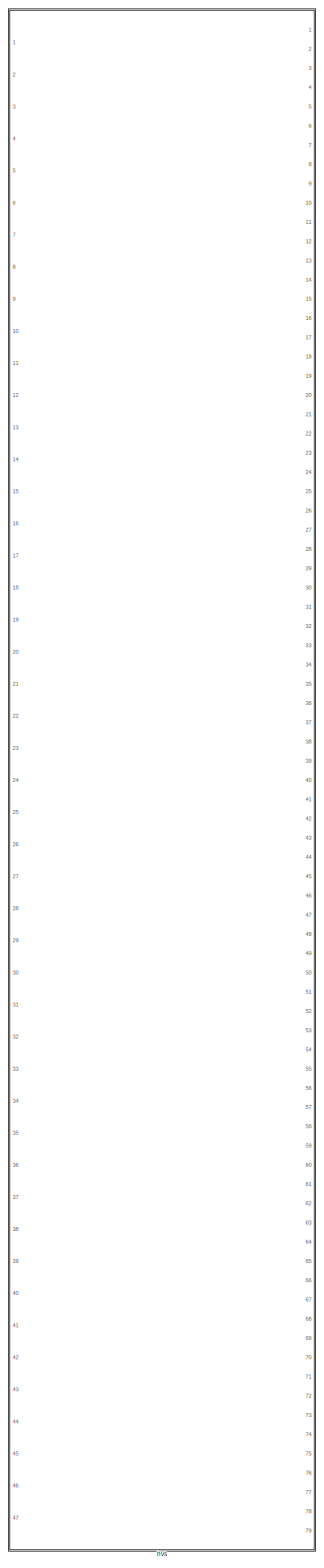
[diagram: root canvas - part 1/3, left side, full height]
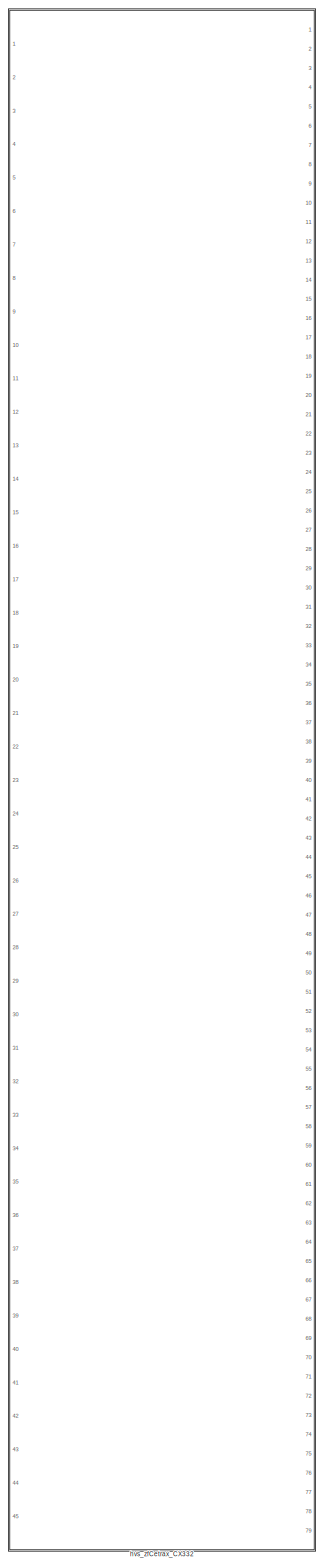
[diagram: root canvas - part 2/3, center side, full height]
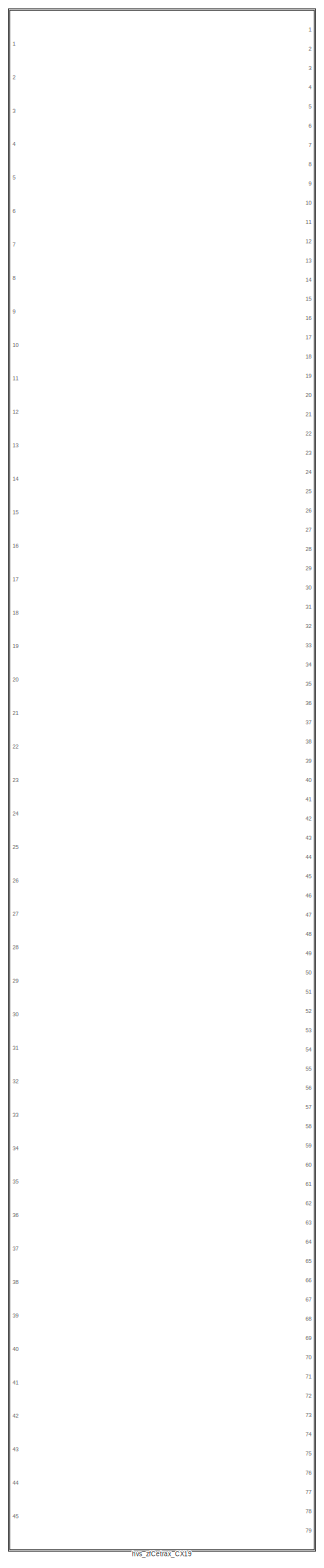
[diagram: root canvas - part 3/3, right side, full height]
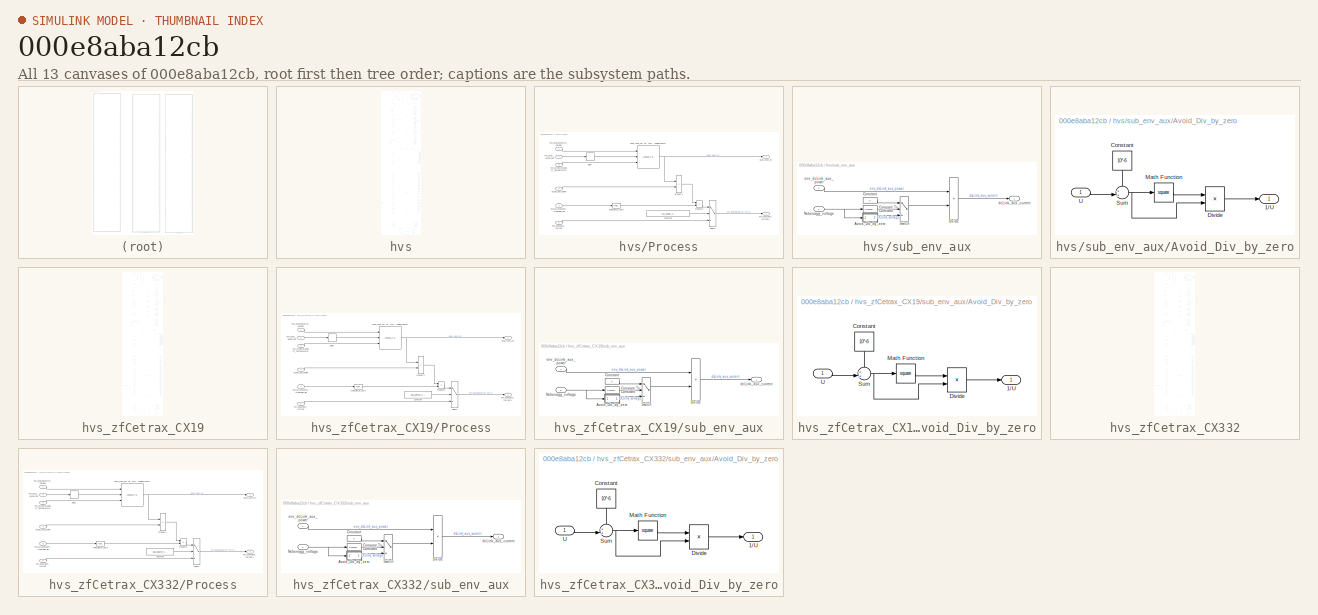
[diagram: thumbnail index - all 13 canvases of the model, root first then tree order]
MODEL slx_000e8aba12cb
KIND library
CONFIG AbsTol = auto
CONFIG FixedStep = 0.001
CONFIG MaxStep = auto
CONFIG MinStep = auto
CONFIG RelTol = 1e-3
CONFIG SampleTimeConstraint = Unconstrained
CONFIG Solver = ode1
CONFIG SolverMode = Auto
CONFIG SolverName = ode1
CONFIG StartTime = 0.0
CONFIG StopTime = Inf
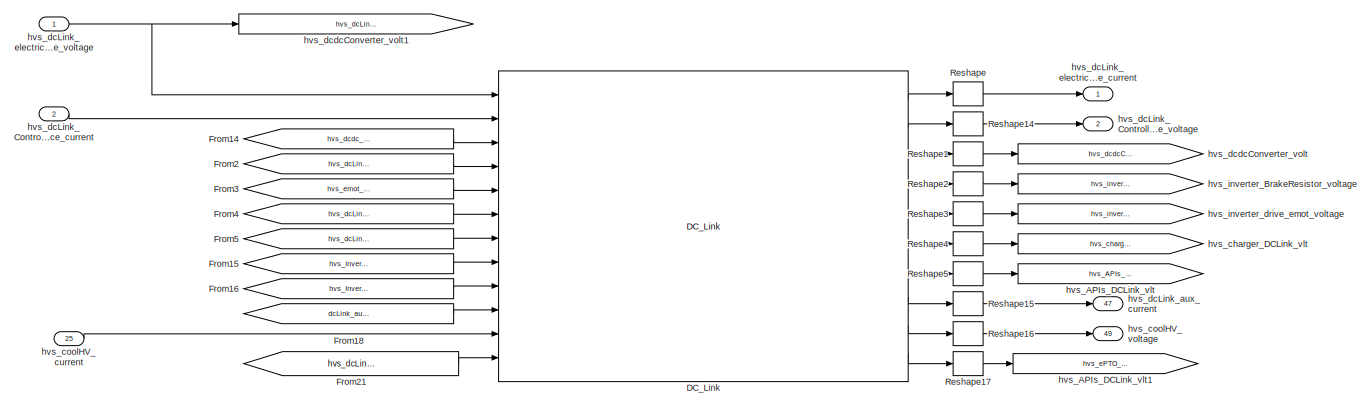
[diagram: hvs - part 1/13, full width, top band]
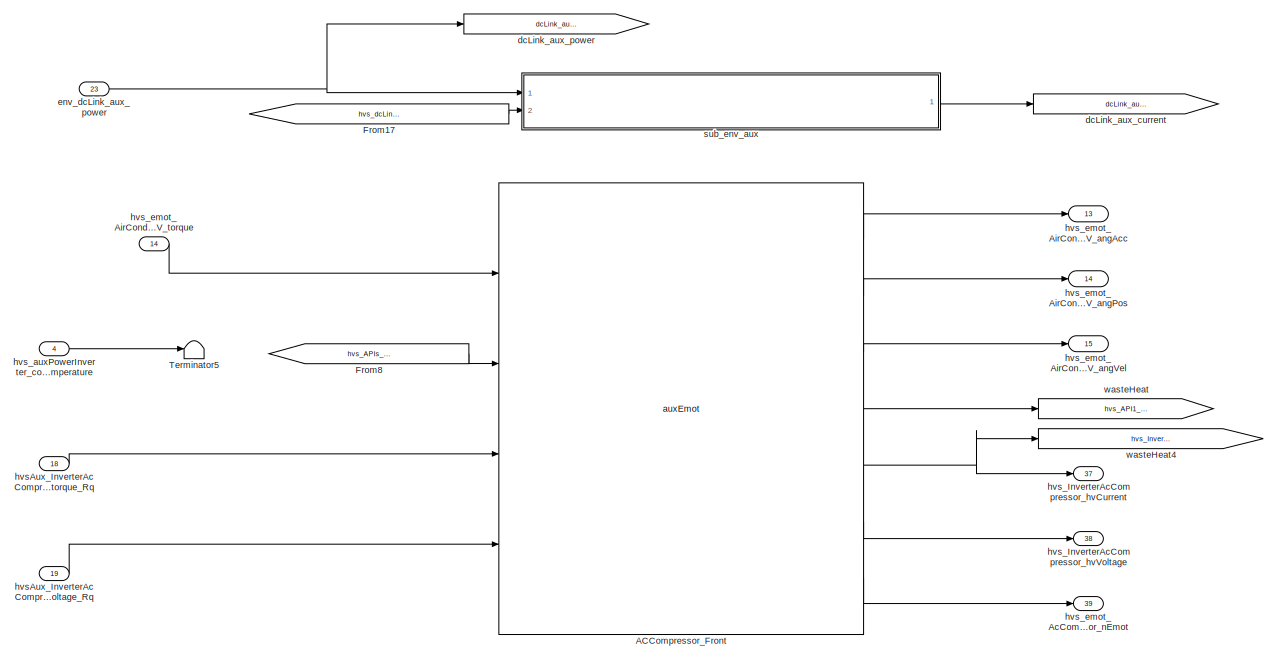
[diagram: hvs - part 2/13, top center region]
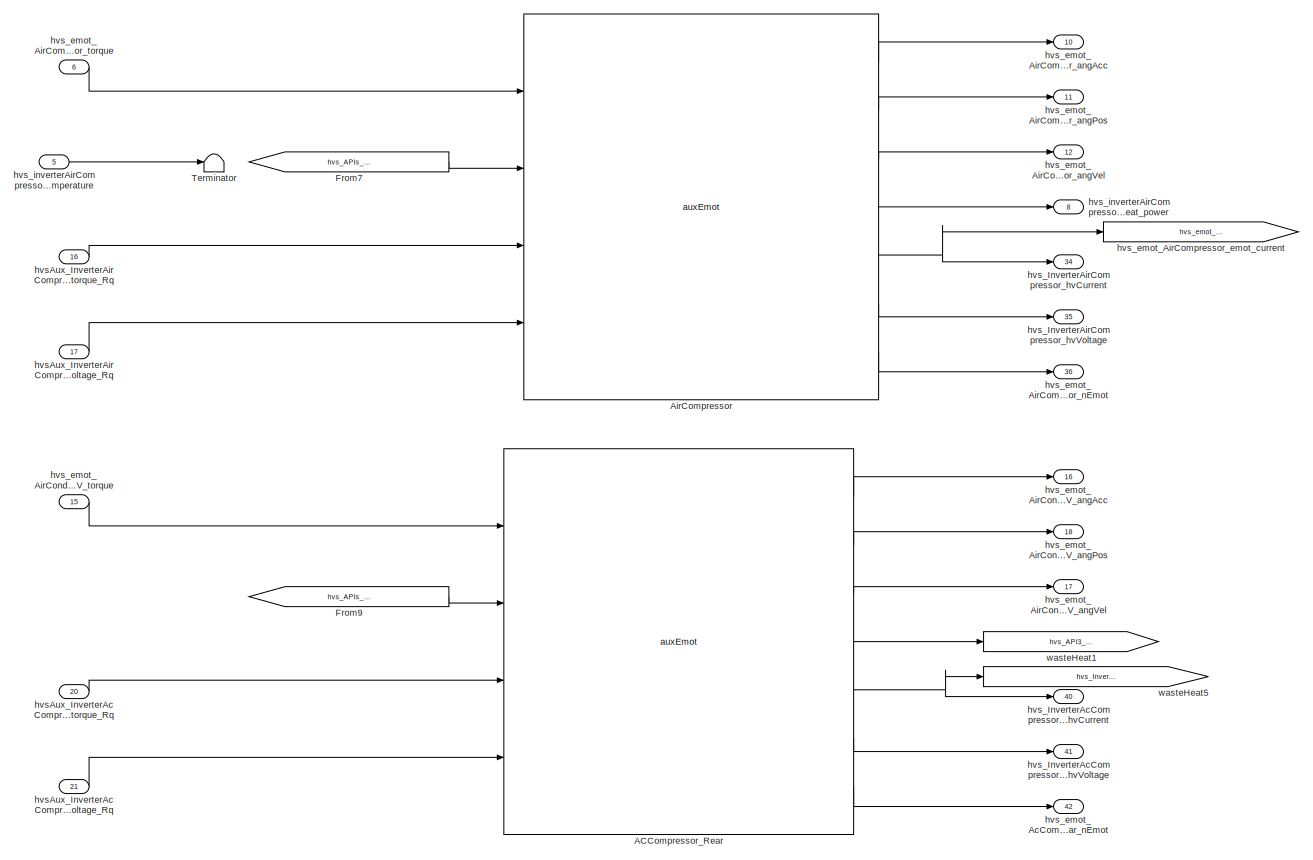
[diagram: hvs - part 3/13, top center region]
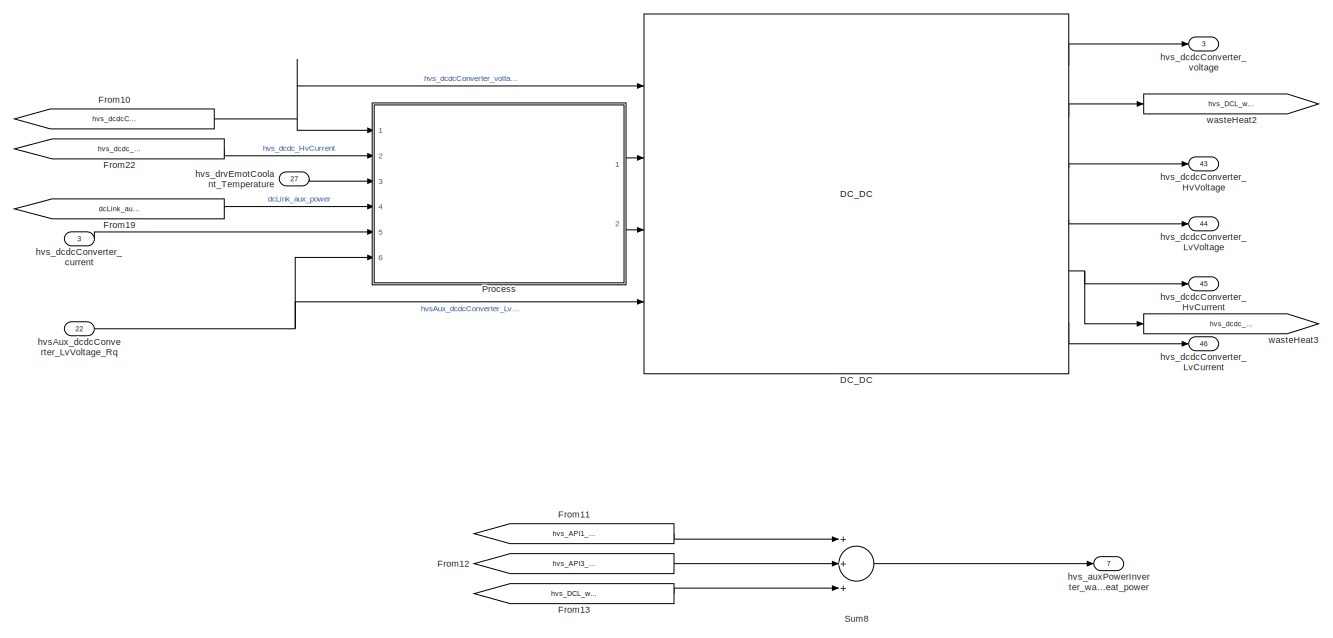
[diagram: hvs - part 4/13, central region]
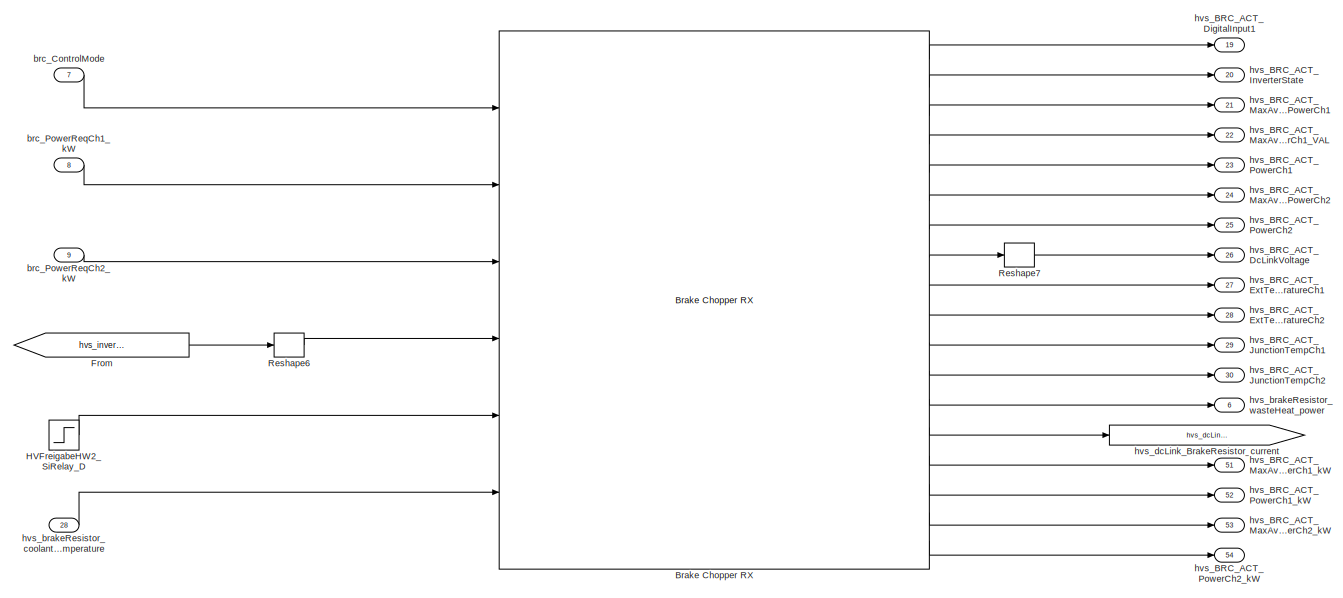
[diagram: hvs - part 5/13, full width, middle band]
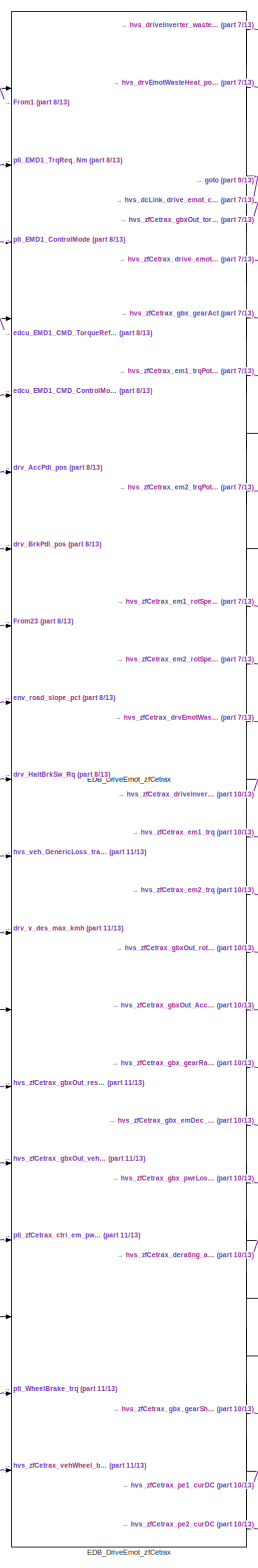
[diagram: hvs - part 6/13, bottom center region]
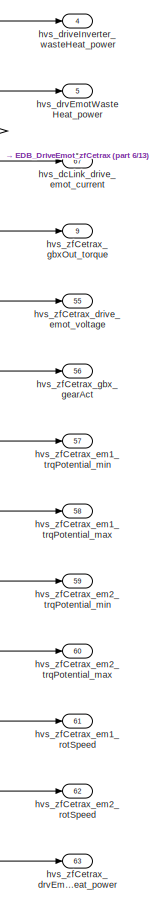
[diagram: hvs - part 7/13, middle right region]
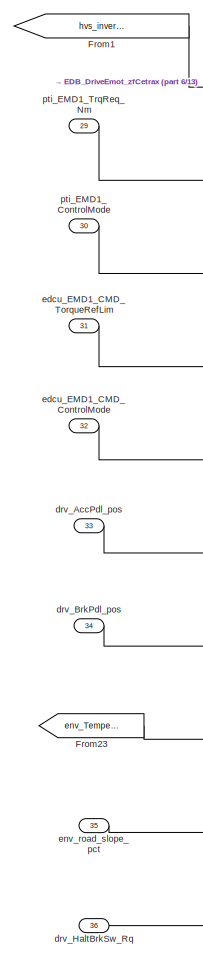
[diagram: hvs - part 8/13, middle left region]
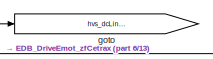
[diagram: hvs - part 9/13, middle right region]
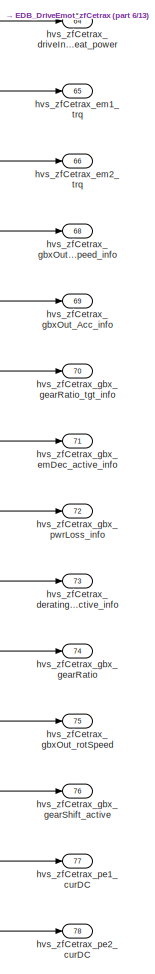
[diagram: hvs - part 10/13, bottom right region]
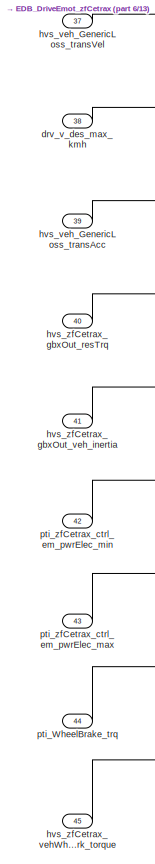
[diagram: hvs - part 11/13, bottom left region]
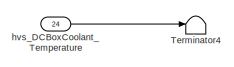
[diagram: hvs - part 12/13, bottom left region]
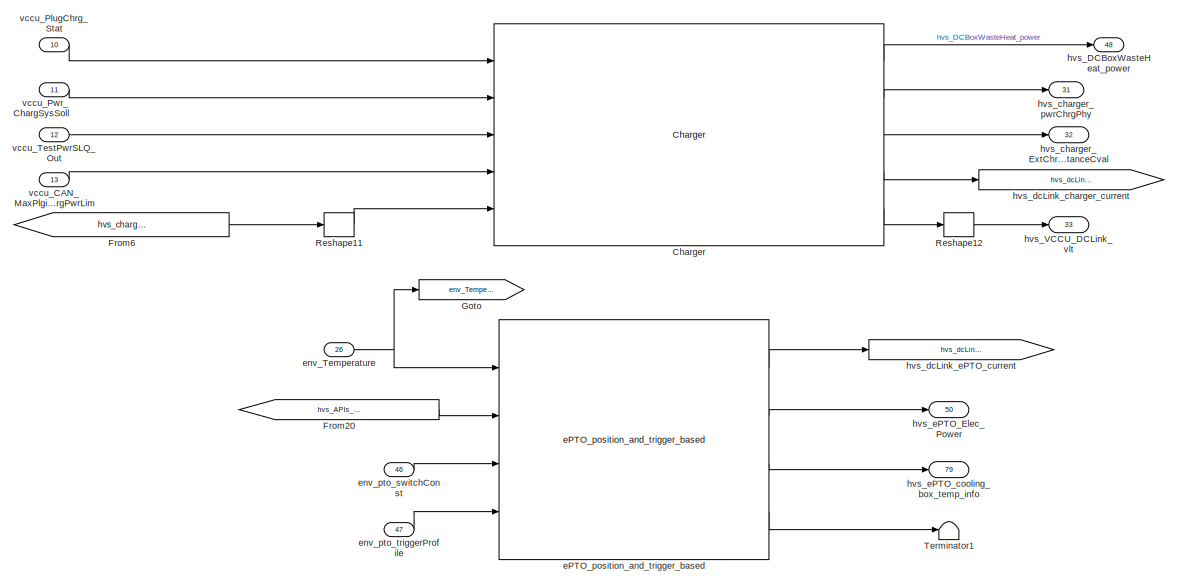
[diagram: hvs - part 13/13, bottom center region]
BLOCK [SubSystem] hvs
  Ports = [47, 79]
  RequestExecContextInheritance = off
  Variant = off
BLOCK [Reference] hvs/ACCompressor_Front  REF=Electrical_to_Mechanical_gen/auxEmot
  Ports = [4, 7]
  SourceBlock = Electrical_to_Mechanical_gen/auxEmot
BLOCK [Reference] hvs/ACCompressor_Rear  REF=Electrical_to_Mechanical_gen/auxEmot
  Ports = [4, 7]
  SourceBlock = Electrical_to_Mechanical_gen/auxEmot
BLOCK [Reference] hvs/AirCompressor  REF=Electrical_to_Mechanical_gen/auxEmot
  Ports = [4, 7]
  SourceBlock = Electrical_to_Mechanical_gen/auxEmot
BLOCK [Reference] hvs/Brake Chopper RX  REF=Electrical_to_Thermal_gen/Brake Chopper RX
  Ports = [6, 18]
  SourceBlock = Electrical_to_Thermal_gen/Brake Chopper RX
  SourceType = SubSystem
BLOCK [Reference] hvs/Charger  REF=Electrical_charger/Charger
  Ports = [5, 5]
  SourceBlock = Electrical_charger/Charger
  SourceType = SubSystem
BLOCK [Reference] hvs/DC_DC  REF=Electrical_converter/DC_DC
  Ports = [4, 6]
  SourceBlock = Electrical_converter/DC_DC
  SourceType = SubSystem
BLOCK [Reference] hvs/DC_Link  REF=Powernet/DC_Link
  Ports = [12, 10]
  SourceBlock = Powernet/DC_Link
  SourceType = SubSystem
BLOCK [Reference] hvs/EDB_DriveEmot_zfCetrax  REF=Enrg_conv_El_to_Mec_zfCetrax/EDB_DriveEmot_zfCetrax
  Ports = [19, 27]
  SourceBlock = Enrg_conv_El_to_Mec_zfCetrax/EDB_DriveEmot_zfCetrax
  SourceType = SubSystem
BLOCK [From] hvs/From
  GotoTag = hvs_inverter_BrakeResistor_voltage
BLOCK [From] hvs/From1
  GotoTag = hvs_inverter_drive_emot_voltage
BLOCK [From] hvs/From10
  GotoTag = hvs_dcdcConverter_voltage
BLOCK [From] hvs/From11
  GotoTag = hvs_API1_wasteHeat_power
BLOCK [From] hvs/From12
  GotoTag = hvs_API3_wasteHeat_power
BLOCK [From] hvs/From13
  GotoTag = hvs_DCL_wasteHeat_power
BLOCK [From] hvs/From14
  GotoTag = hvs_dcdc_current
BLOCK [From] hvs/From15
  GotoTag = hvs_InverterAcCompressor_hvCurrent
BLOCK [From] hvs/From16
  GotoTag = hvs_InverterAcCompressorRear_hvCurrent
BLOCK [From] hvs/From17
  GotoTag = hvs_dcLink_electricalEnergyStorage_voltage
BLOCK [From] hvs/From18
  GotoTag = dcLink_aux_current
BLOCK [From] hvs/From19
  GotoTag = dcLink_aux_power
BLOCK [From] hvs/From2
  GotoTag = hvs_dcLink_drive_emot_current
BLOCK [From] hvs/From20
  GotoTag = hvs_APIs_DCLink_vlt
BLOCK [From] hvs/From21
  GotoTag = hvs_dcLink_ePTO_current
BLOCK [From] hvs/From22
  GotoTag = hvs_dcdc_current
BLOCK [From] hvs/From23
  GotoTag = env_Temperature
BLOCK [From] hvs/From3
  GotoTag = hvs_emot_AirCompressor_emot_current
BLOCK [From] hvs/From4
  GotoTag = hvs_dcLink_BrakeResistor_current
BLOCK [From] hvs/From5
  GotoTag = hvs_dcLink_charger_current
BLOCK [From] hvs/From6
  GotoTag = hvs_charger_DCLink_vlt
BLOCK [From] hvs/From7
  GotoTag = hvs_APIs_DCLink_vlt
BLOCK [From] hvs/From8
  GotoTag = hvs_APIs_DCLink_vlt
BLOCK [From] hvs/From9
  GotoTag = hvs_APIs_DCLink_vlt
BLOCK [Goto] hvs/Goto
  GotoTag = env_Temperature
BLOCK [Step] hvs/HVFreigabeHW2_SiRelay_D
  SampleTime = 0
  Time = 5.502
BLOCK [SubSystem] hvs/Process
  Ports = [6, 2]
  RequestExecContextInheritance = off
  Variant = off
BLOCK [Reference] hvs/Process/Avoid_Div_by_zero  REF=Electrical_converter/DC_DC/Avoid_Div_by_zero
  Ports = [1, 1]
  SourceBlock = Electrical_converter/DC_DC/Avoid_Div_by_zero
  SourceType = SubSystem
BLOCK [Constant] hvs/Process/Constant
  Value = aux_power_selector_aux_power_flag
BLOCK [Delay] hvs/Process/Delay
  DelayLength = 1
  InitialCondition = 0
  InputPortMap = u0
  Ports = [1, 1]
BLOCK [Product] hvs/Process/Product1
  InputSameDT = off
  Inputs = **
  OutDataTypeStr = Inherit: Inherit via internal rule
  Ports = [2, 1]
  SaturateOnIntegerOverflow = off
BLOCK [Product] hvs/Process/Product2
  InputSameDT = off
  Inputs = **
  OutDataTypeStr = Inherit: Inherit via internal rule
  Ports = [2, 1]
  SaturateOnIntegerOverflow = off
BLOCK [Switch] hvs/Process/Switch
  InputSameDT = off
  SaturateOnIntegerOverflow = off
  Threshold = 0.5
BLOCK [Inport] hvs/Process/dcLink_aux_power
  IconDisplay = Port number
  Port = 4
BLOCK [Outport] hvs/Process/dcdc_conv_eff
  IconDisplay = Port number
BLOCK [Lookup_n-D] hvs/Process/dcdc_conv_eff vlt, curr, coolantTemp
  BreakpointsForDimension1 = DCL1_dcdc_effmap_vlt_1stD
  BreakpointsForDimension2 = DCL1_dcdc_effmap_cur_2ndD
  BreakpointsForDimension3 = DCL1_dcdc_effmap_cooltemp_3rdD
  ExtrapMethod = Clip
  NumberOfTableDimensions = 3
  Ports = [3, 1]
  RndMeth = Simplest
  Table = DCL1_dcdc_effmap
BLOCK [Inport] hvs/Process/hvsAux_dcdcConv_LvVoltage_Rq
  IconDisplay = Port number
  Port = 6
BLOCK [Inport] hvs/Process/hvs_dcdcConv_current
  IconDisplay = Port number
  Port = 5
BLOCK [Outport] hvs/Process/hvs_dcdcConv_current1
  IconDisplay = Port number
  Port = 2
BLOCK [Inport] hvs/Process/hvs_dcdcConverter_voltage
  IconDisplay = Port number
BLOCK [Inport] hvs/Process/hvs_dcdc_HvCurrent
  IconDisplay = Port number
  Port = 2
BLOCK [Inport] hvs/Process/hvs_drvEmotCoolant_Temperature
  IconDisplay = Port number
  Port = 3
BLOCK [Reshape] hvs/Reshape
  Ports = [1, 1]
BLOCK [Reshape] hvs/Reshape1
  Ports = [1, 1]
BLOCK [Reshape] hvs/Reshape11
  Ports = [1, 1]
BLOCK [Reshape] hvs/Reshape12
  Ports = [1, 1]
BLOCK [Reshape] hvs/Reshape14
  Ports = [1, 1]
BLOCK [Reshape] hvs/Reshape15
  Ports = [1, 1]
BLOCK [Reshape] hvs/Reshape16
  Ports = [1, 1]
BLOCK [Reshape] hvs/Reshape17
  Ports = [1, 1]
BLOCK [Reshape] hvs/Reshape2
  Ports = [1, 1]
BLOCK [Reshape] hvs/Reshape3
  Ports = [1, 1]
BLOCK [Reshape] hvs/Reshape4
  Ports = [1, 1]
BLOCK [Reshape] hvs/Reshape5
  Ports = [1, 1]
BLOCK [Reshape] hvs/Reshape6
  Ports = [1, 1]
BLOCK [Reshape] hvs/Reshape7
  Ports = [1, 1]
BLOCK [Sum] hvs/Sum8
  Inputs = +++
  Ports = [3, 1]
BLOCK [Terminator] hvs/Terminator
BLOCK [Terminator] hvs/Terminator1
BLOCK [Terminator] hvs/Terminator4
BLOCK [Terminator] hvs/Terminator5
BLOCK [Inport] hvs/brc_ControlMode
  IconDisplay = Port number
  Port = 7
BLOCK [Inport] hvs/brc_PowerReqCh1_kW
  IconDisplay = Port number
  Port = 8
BLOCK [Inport] hvs/brc_PowerReqCh2_kW
  IconDisplay = Port number
  Port = 9
BLOCK [Goto] hvs/dcLink_aux_current
  GotoTag = dcLink_aux_current
BLOCK [Goto] hvs/dcLink_aux_power
  GotoTag = dcLink_aux_power
BLOCK [Inport] hvs/drv_AccPdl_pos
  IconDisplay = Port number
  Port = 33
BLOCK [Inport] hvs/drv_BrkPdl_pos
  IconDisplay = Port number
  Port = 34
BLOCK [Inport] hvs/drv_HaltBrkSw_Rq
  IconDisplay = Port number
  Port = 36
BLOCK [Inport] hvs/drv_v_des_max_kmh
  IconDisplay = Port number
  Port = 38
BLOCK [Reference] hvs/ePTO_position_and_trigger_based  REF=ePTO/ePTO_position_and_trigger_based
  Ports = [4, 4]
  SourceBlock = ePTO/ePTO_position_and_trigger_based
  SourceType = SubSystem
BLOCK [Inport] hvs/edcu_EMD1_CMD_ControlMode
  IconDisplay = Port number
  Port = 32
BLOCK [Inport] hvs/edcu_EMD1_CMD_TorqueRefLim
  IconDisplay = Port number
  Port = 31
BLOCK [Inport] hvs/env_Temperature
  IconDisplay = Port number
  Port = 26
BLOCK [Inport] hvs/env_dcLink_aux_power
  IconDisplay = Port number
  Port = 23
BLOCK [Inport] hvs/env_pto_switchConst
  IconDisplay = Port number
  Port = 46
BLOCK [Inport] hvs/env_pto_triggerProfile
  IconDisplay = Port number
  Port = 47
BLOCK [Inport] hvs/env_road_slope_pct
  IconDisplay = Port number
  Port = 35
BLOCK [Goto] hvs/goto
  GotoTag = hvs_dcLink_drive_emot_current
BLOCK [Inport] hvs/hvsAux_InverterAcCompressorFront_Voltage_Rq
  IconDisplay = Port number
  Port = 19
BLOCK [Inport] hvs/hvsAux_InverterAcCompressorFront_torque_Rq
  IconDisplay = Port number
  Port = 18
BLOCK [Inport] hvs/hvsAux_InverterAcCompressorRear_Voltage_Rq
  IconDisplay = Port number
  Port = 21
BLOCK [Inport] hvs/hvsAux_InverterAcCompressorRear_torque_Rq
  IconDisplay = Port number
  Port = 20
BLOCK [Inport] hvs/hvsAux_InverterAirCompressor_Voltage_Rq
  IconDisplay = Port number
  Port = 17
BLOCK [Inport] hvs/hvsAux_InverterAirCompressor_torque_Rq
  IconDisplay = Port number
  Port = 16
BLOCK [Inport] hvs/hvsAux_dcdcConverter_LvVoltage_Rq
  IconDisplay = Port number
  Port = 22
BLOCK [Goto] hvs/hvs_APIs_DCLink_vlt
  GotoTag = hvs_APIs_DCLink_vlt
BLOCK [Goto] hvs/hvs_APIs_DCLink_vlt1
  GotoTag = hvs_ePTO_DCLink_vlt
BLOCK [Outport] hvs/hvs_BRC_ACT_DcLinkVoltage
  IconDisplay = Port number
  Port = 26
BLOCK [Outport] hvs/hvs_BRC_ACT_DigitalInput1
  IconDisplay = Port number
  Port = 19
BLOCK [Outport] hvs/hvs_BRC_ACT_ExtTemperatureCh1
  IconDisplay = Port number
  Port = 27
BLOCK [Outport] hvs/hvs_BRC_ACT_ExtTemperatureCh2
  IconDisplay = Port number
  Port = 28
BLOCK [Outport] hvs/hvs_BRC_ACT_InverterState
  IconDisplay = Port number
  Port = 20
BLOCK [Outport] hvs/hvs_BRC_ACT_JunctionTempCh1
  IconDisplay = Port number
  Port = 29
BLOCK [Outport] hvs/hvs_BRC_ACT_JunctionTempCh2
  IconDisplay = Port number
  Port = 30
BLOCK [Outport] hvs/hvs_BRC_ACT_MaxAvailablePowerCh1
  IconDisplay = Port number
  Port = 21
BLOCK [Outport] hvs/hvs_BRC_ACT_MaxAvailablePowerCh1_VAL
  IconDisplay = Port number
  Port = 22
BLOCK [Outport] hvs/hvs_BRC_ACT_MaxAvailablePowerCh1_kW
  IconDisplay = Port number
  Port = 51
BLOCK [Outport] hvs/hvs_BRC_ACT_MaxAvailablePowerCh2
  IconDisplay = Port number
  Port = 24
BLOCK [Outport] hvs/hvs_BRC_ACT_MaxAvailablePowerCh2_kW
  IconDisplay = Port number
  Port = 53
BLOCK [Outport] hvs/hvs_BRC_ACT_PowerCh1
  IconDisplay = Port number
  Port = 23
BLOCK [Outport] hvs/hvs_BRC_ACT_PowerCh1_kW
  IconDisplay = Port number
  Port = 52
BLOCK [Outport] hvs/hvs_BRC_ACT_PowerCh2
  IconDisplay = Port number
  Port = 25
BLOCK [Outport] hvs/hvs_BRC_ACT_PowerCh2_kW
  IconDisplay = Port number
  Port = 54
BLOCK [Inport] hvs/hvs_DCBoxCoolant_Temperature
  IconDisplay = Port number
  Port = 24
BLOCK [Outport] hvs/hvs_DCBoxWasteHeat_power
  IconDisplay = Port number
  Port = 48
BLOCK [Outport] hvs/hvs_InverterAcCompressorRear_hvCurrent
  IconDisplay = Port number
  Port = 40
BLOCK [Outport] hvs/hvs_InverterAcCompressorRear_hvVoltage
  IconDisplay = Port number
  Port = 41
BLOCK [Outport] hvs/hvs_InverterAcCompressor_hvCurrent
  IconDisplay = Port number
  Port = 37
BLOCK [Outport] hvs/hvs_InverterAcCompressor_hvVoltage
  IconDisplay = Port number
  Port = 38
BLOCK [Outport] hvs/hvs_InverterAirCompressor_hvCurrent
  IconDisplay = Port number
  Port = 34
BLOCK [Outport] hvs/hvs_InverterAirCompressor_hvVoltage
  IconDisplay = Port number
  Port = 35
BLOCK [Outport] hvs/hvs_VCCU_DCLink_vlt
  IconDisplay = Port number
  Port = 33
BLOCK [Inport] hvs/hvs_auxPowerInverter_coolant_temperature
  IconDisplay = Port number
  Port = 4
BLOCK [Outport] hvs/hvs_auxPowerInverter_wasteHeat_power
  IconDisplay = Port number
  Port = 7
BLOCK [Inport] hvs/hvs_brakeResistor_coolant_temperature
  IconDisplay = Port number
  Port = 28
BLOCK [Outport] hvs/hvs_brakeResistor_wasteHeat_power
  IconDisplay = Port number
  Port = 6
BLOCK [Goto] hvs/hvs_charger_DCLink_vlt
  GotoTag = hvs_charger_DCLink_vlt
BLOCK [Outport] hvs/hvs_charger_ExtChrgr_Isolation_ResistanceCval
  IconDisplay = Port number
  Port = 32
BLOCK [Outport] hvs/hvs_charger_pwrChrgPhy
  IconDisplay = Port number
  Port = 31
BLOCK [Inport] hvs/hvs_coolHV_current
  IconDisplay = Port number
  Port = 25
BLOCK [Outport] hvs/hvs_coolHV_voltage
  IconDisplay = Port number
  Port = 49
BLOCK [Goto] hvs/hvs_dcLink_BrakeResistor_current
  GotoTag = hvs_dcLink_BrakeResistor_current
BLOCK [Inport] hvs/hvs_dcLink_ControllableEnergySource_current
  IconDisplay = Port number
  Port = 2
BLOCK [Outport] hvs/hvs_dcLink_ControllableEnergySource_voltage
  IconDisplay = Port number
  Port = 2
BLOCK [Outport] hvs/hvs_dcLink_aux_current
  IconDisplay = Port number
  Port = 47
BLOCK [Goto] hvs/hvs_dcLink_charger_current
  GotoTag = hvs_dcLink_charger_current
BLOCK [Outport] hvs/hvs_dcLink_drive_emot_current
  IconDisplay = Port number
  Port = 67
BLOCK [Goto] hvs/hvs_dcLink_ePTO_current
  GotoTag = hvs_dcLink_ePTO_current
BLOCK [Outport] hvs/hvs_dcLink_electricalEnergyStorage_current
  IconDisplay = Port number
BLOCK [Inport] hvs/hvs_dcLink_electricalEnergyStorage_voltage
  IconDisplay = Port number
BLOCK [Outport] hvs/hvs_dcdcConverter_HvCurrent
  IconDisplay = Port number
  Port = 45
BLOCK [Outport] hvs/hvs_dcdcConverter_HvVoltage
  IconDisplay = Port number
  Port = 43
BLOCK [Outport] hvs/hvs_dcdcConverter_LvCurrent
  IconDisplay = Port number
  Port = 46
BLOCK [Outport] hvs/hvs_dcdcConverter_LvVoltage
  IconDisplay = Port number
  Port = 44
BLOCK [Inport] hvs/hvs_dcdcConverter_current
  IconDisplay = Port number
  Port = 3
BLOCK [Goto] hvs/hvs_dcdcConverter_volt
  GotoTag = hvs_dcdcConverter_voltage
BLOCK [Goto] hvs/hvs_dcdcConverter_volt1
  GotoTag = hvs_dcLink_electricalEnergyStorage_voltage
BLOCK [Outport] hvs/hvs_dcdcConverter_voltage
  IconDisplay = Port number
  Port = 3
BLOCK [Outport] hvs/hvs_driveInverter_wasteHeat_power
  IconDisplay = Port number
  Port = 4
BLOCK [Inport] hvs/hvs_drvEmotCoolant_Temperature
  IconDisplay = Port number
  Port = 27
BLOCK [Outport] hvs/hvs_drvEmotWasteHeat_power
  IconDisplay = Port number
  Port = 5
BLOCK [Outport] hvs/hvs_ePTO_Elec_Power
  IconDisplay = Port number
  Port = 50
BLOCK [Outport] hvs/hvs_ePTO_cooling_box_temp_info
  IconDisplay = Port number
  Port = 79
BLOCK [Outport] hvs/hvs_emot_AcCompressorRear_nEmot
  IconDisplay = Port number
  Port = 42
BLOCK [Outport] hvs/hvs_emot_AcCompressor_nEmot
  IconDisplay = Port number
  Port = 39
BLOCK [Outport] hvs/hvs_emot_AirCompressor_angAcc
  IconDisplay = Port number
  Port = 10
BLOCK [Outport] hvs/hvs_emot_AirCompressor_angPos
  IconDisplay = Port number
  Port = 11
BLOCK [Outport] hvs/hvs_emot_AirCompressor_angVel
  IconDisplay = Port number
  Port = 12
BLOCK [Goto] hvs/hvs_emot_AirCompressor_emot_current
  GotoTag = hvs_emot_AirCompressor_emot_current
BLOCK [Outport] hvs/hvs_emot_AirCompressor_nEmot
  IconDisplay = Port number
  Port = 36
BLOCK [Inport] hvs/hvs_emot_AirCompressor_torque
  IconDisplay = Port number
  Port = 6
BLOCK [Outport] hvs/hvs_emot_AirCondFrontHV_angAcc
  IconDisplay = Port number
  Port = 13
BLOCK [Outport] hvs/hvs_emot_AirCondFrontHV_angPos
  IconDisplay = Port number
  Port = 14
BLOCK [Outport] hvs/hvs_emot_AirCondFrontHV_angVel
  IconDisplay = Port number
  Port = 15
BLOCK [Inport] hvs/hvs_emot_AirCondFrontHV_torque
  IconDisplay = Port number
  Port = 14
BLOCK [Outport] hvs/hvs_emot_AirCondRearHV_angAcc
  IconDisplay = Port number
  Port = 16
BLOCK [Outport] hvs/hvs_emot_AirCondRearHV_angPos
  IconDisplay = Port number
  Port = 18
BLOCK [Outport] hvs/hvs_emot_AirCondRearHV_angVel
  IconDisplay = Port number
  Port = 17
BLOCK [Inport] hvs/hvs_emot_AirCondRearHV_torque
  IconDisplay = Port number
  Port = 15
BLOCK [Inport] hvs/hvs_inverterAirCompressor_coolant_temperature
  IconDisplay = Port number
  Port = 5
BLOCK [Outport] hvs/hvs_inverterAirCompressor_wasteHeat_power
  IconDisplay = Port number
  Port = 8
BLOCK [Goto] hvs/hvs_inverter_BrakeResistor_voltage
  GotoTag = hvs_inverter_BrakeResistor_voltage
BLOCK [Goto] hvs/hvs_inverter_drive_emot_voltage
  GotoTag = hvs_inverter_drive_emot_voltage
BLOCK [Inport] hvs/hvs_veh_GenericLoss_transAcc
  IconDisplay = Port number
  Port = 39
BLOCK [Inport] hvs/hvs_veh_GenericLoss_transVel
  IconDisplay = Port number
  Port = 37
BLOCK [Outport] hvs/hvs_zfCetrax_derating_active_info
  IconDisplay = Port number
  Port = 73
BLOCK [Outport] hvs/hvs_zfCetrax_driveInverterWasteHeat_power
  IconDisplay = Port number
  Port = 64
BLOCK [Outport] hvs/hvs_zfCetrax_drive_emot_voltage
  IconDisplay = Port number
  Port = 55
BLOCK [Outport] hvs/hvs_zfCetrax_drvEmotWasteHeat_power
  IconDisplay = Port number
  Port = 63
BLOCK [Outport] hvs/hvs_zfCetrax_em1_rotSpeed
  IconDisplay = Port number
  Port = 61
BLOCK [Outport] hvs/hvs_zfCetrax_em1_trq
  IconDisplay = Port number
  Port = 65
BLOCK [Outport] hvs/hvs_zfCetrax_em1_trqPotential_max
  IconDisplay = Port number
  Port = 58
BLOCK [Outport] hvs/hvs_zfCetrax_em1_trqPotential_min
  IconDisplay = Port number
  Port = 57
BLOCK [Outport] hvs/hvs_zfCetrax_em2_rotSpeed
  IconDisplay = Port number
  Port = 62
BLOCK [Outport] hvs/hvs_zfCetrax_em2_trq
  IconDisplay = Port number
  Port = 66
BLOCK [Outport] hvs/hvs_zfCetrax_em2_trqPotential_max
  IconDisplay = Port number
  Port = 60
BLOCK [Outport] hvs/hvs_zfCetrax_em2_trqPotential_min
  IconDisplay = Port number
  Port = 59
BLOCK [Outport] hvs/hvs_zfCetrax_gbxOut_Acc_info
  IconDisplay = Port number
  Port = 69
BLOCK [Inport] hvs/hvs_zfCetrax_gbxOut_resTrq
  IconDisplay = Port number
  Port = 40
BLOCK [Outport] hvs/hvs_zfCetrax_gbxOut_rotSpeed
  IconDisplay = Port number
  Port = 75
BLOCK [Outport] hvs/hvs_zfCetrax_gbxOut_rotSpeed_info
  IconDisplay = Port number
  Port = 68
BLOCK [Outport] hvs/hvs_zfCetrax_gbxOut_torque
  IconDisplay = Port number
  Port = 9
BLOCK [Inport] hvs/hvs_zfCetrax_gbxOut_veh_inertia
  IconDisplay = Port number
  Port = 41
BLOCK [Outport] hvs/hvs_zfCetrax_gbx_emDec_active_info
  IconDisplay = Port number
  Port = 71
BLOCK [Outport] hvs/hvs_zfCetrax_gbx_gearAct
  IconDisplay = Port number
  Port = 56
BLOCK [Outport] hvs/hvs_zfCetrax_gbx_gearRatio
  IconDisplay = Port number
  Port = 74
BLOCK [Outport] hvs/hvs_zfCetrax_gbx_gearRatio_tgt_info
  IconDisplay = Port number
  Port = 70
BLOCK [Outport] hvs/hvs_zfCetrax_gbx_gearShift_active
  IconDisplay = Port number
  Port = 76
BLOCK [Outport] hvs/hvs_zfCetrax_gbx_pwrLoss_info
  IconDisplay = Port number
  Port = 72
BLOCK [Outport] hvs/hvs_zfCetrax_pe1_curDC
  IconDisplay = Port number
  Port = 77
BLOCK [Outport] hvs/hvs_zfCetrax_pe2_curDC
  IconDisplay = Port number
  Port = 78
BLOCK [Inport] hvs/hvs_zfCetrax_vehWheel_brk_torque
  IconDisplay = Port number
  Port = 45
BLOCK [Inport] hvs/pti_EMD1_ControlMode
  IconDisplay = Port number
  Port = 30
BLOCK [Inport] hvs/pti_EMD1_TrqReq_Nm
  IconDisplay = Port number
  Port = 29
BLOCK [Inport] hvs/pti_WheelBrake_trq
  IconDisplay = Port number
  Port = 44
BLOCK [Inport] hvs/pti_zfCetrax_ctrl_em_pwrElec_max
  IconDisplay = Port number
  Port = 43
BLOCK [Inport] hvs/pti_zfCetrax_ctrl_em_pwrElec_min
  IconDisplay = Port number
  Port = 42
BLOCK [SubSystem] hvs/sub_env_aux
  Ports = [2, 1]
  RequestExecContextInheritance = off
  Variant = off
BLOCK [SubSystem] hvs/sub_env_aux/Avoid_Div_by_zero
  Ports = [1, 1]
  RequestExecContextInheritance = off
  Variant = off
BLOCK [Outport] hvs/sub_env_aux/Avoid_Div_by_zero/1//U
  IconDisplay = Port number
BLOCK [Constant] hvs/sub_env_aux/Avoid_Div_by_zero/Constant
  Value = 10^-6
BLOCK [Product] hvs/sub_env_aux/Avoid_Div_by_zero/Divide
  InputSameDT = off
  Inputs = /*
  OutDataTypeStr = Inherit: Inherit via internal rule
  Ports = [2, 1]
  RndMeth = Floor
  SaturateOnIntegerOverflow = off
BLOCK [Math] hvs/sub_env_aux/Avoid_Div_by_zero/Math Function
  Operator = square
  Ports = [1, 1]
BLOCK [Sum] hvs/sub_env_aux/Avoid_Div_by_zero/Sum
  IconShape = round
  InputSameDT = off
  Inputs = ++|
  OutDataTypeStr = Inherit: Inherit via internal rule
  Ports = [2, 1]
  SaturateOnIntegerOverflow = off
BLOCK [Inport] hvs/sub_env_aux/Avoid_Div_by_zero/U
  IconDisplay = Port number
BLOCK [Reference] hvs/sub_env_aux/Compare To Constant  REF=simulink/Logic and Bit
Operations/Compare
To Constant
  Ports = [1, 1]
  SourceBlock = simulink/Logic and Bit\nOperations/Compare\nTo Constant
  SourceType = Compare To Constant
BLOCK [Constant] hvs/sub_env_aux/Constant
  Value = 0
BLOCK [Product] hvs/sub_env_aux/Divide
  InputSameDT = off
  OutDataTypeStr = Inherit: Inherit via internal rule
  Ports = [2, 1]
  RndMeth = Floor
  SaturateOnIntegerOverflow = off
BLOCK [Inport] hvs/sub_env_aux/Nebenagg_voltage
  IconDisplay = Port number
  Port = 2
BLOCK [Switch] hvs/sub_env_aux/Switch
  InputSameDT = off
  SaturateOnIntegerOverflow = off
  Threshold = 0.5
BLOCK [Outport] hvs/sub_env_aux/dcLink_aux_current
  IconDisplay = Port number
BLOCK [Inport] hvs/sub_env_aux/env_dcLink_aux_power
  IconDisplay = Port number
BLOCK [Inport] hvs/vccu_CAN_MaxPlginChrgPwrLim
  IconDisplay = Port number
  Port = 13
BLOCK [Inport] hvs/vccu_PlugChrg_Stat
  IconDisplay = Port number
  Port = 10
BLOCK [Inport] hvs/vccu_Pwr_ChargSysSoll
  IconDisplay = Port number
  Port = 11
BLOCK [Inport] hvs/vccu_TestPwrSLQ_Out
  IconDisplay = Port number
  Port = 12
BLOCK [Goto] hvs/wasteHeat
  GotoTag = hvs_API1_wasteHeat_power
BLOCK [Goto] hvs/wasteHeat1
  GotoTag = hvs_API3_wasteHeat_power
BLOCK [Goto] hvs/wasteHeat2
  GotoTag = hvs_DCL_wasteHeat_power
BLOCK [Goto] hvs/wasteHeat3
  GotoTag = hvs_dcdc_current
BLOCK [Goto] hvs/wasteHeat4
  GotoTag = hvs_InverterAcCompressor_hvCurrent
BLOCK [Goto] hvs/wasteHeat5
  GotoTag = hvs_InverterAcCompressorRear_hvCurrent
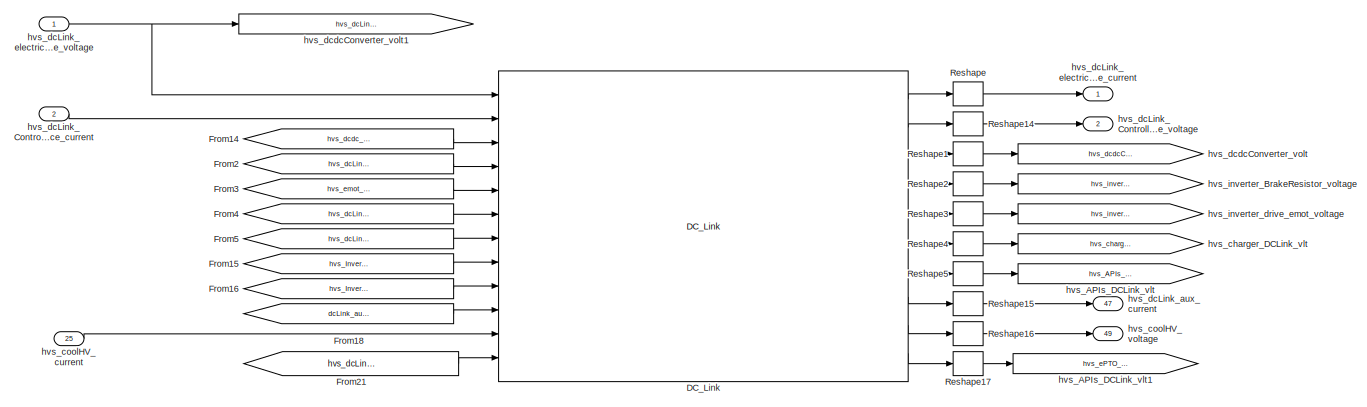
[diagram: hvs_zfCetrax_CX19 - part 1/13, full width, top band]
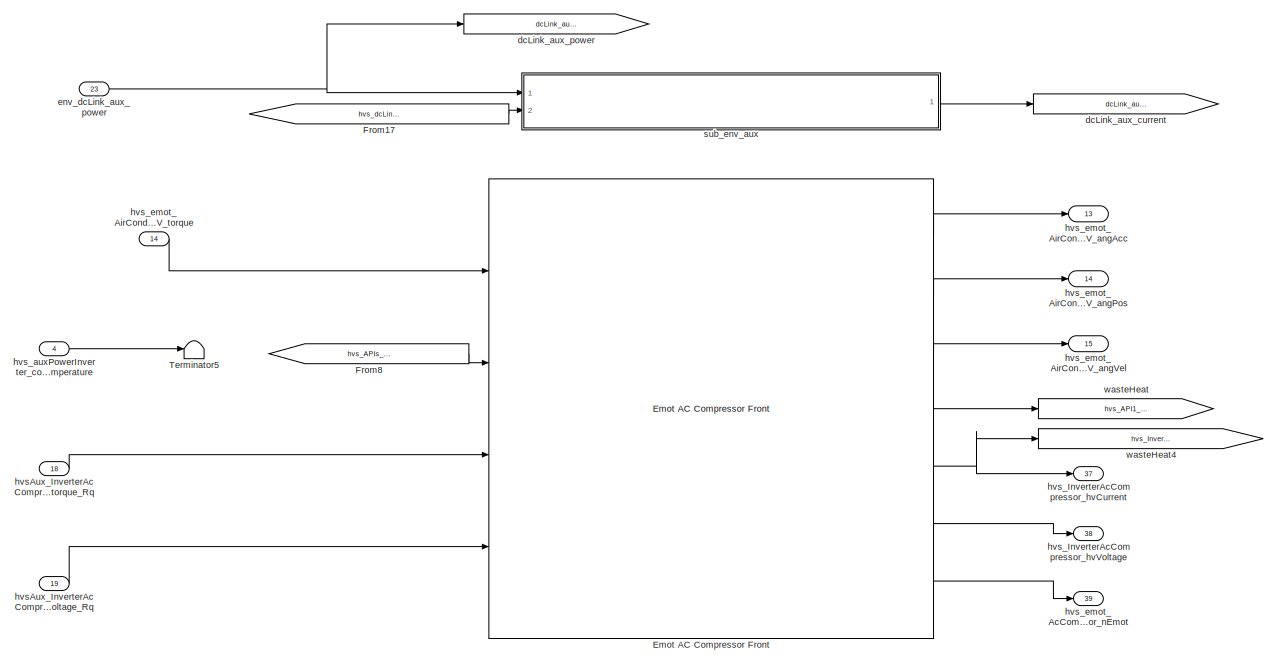
[diagram: hvs_zfCetrax_CX19 - part 2/13, top center region]
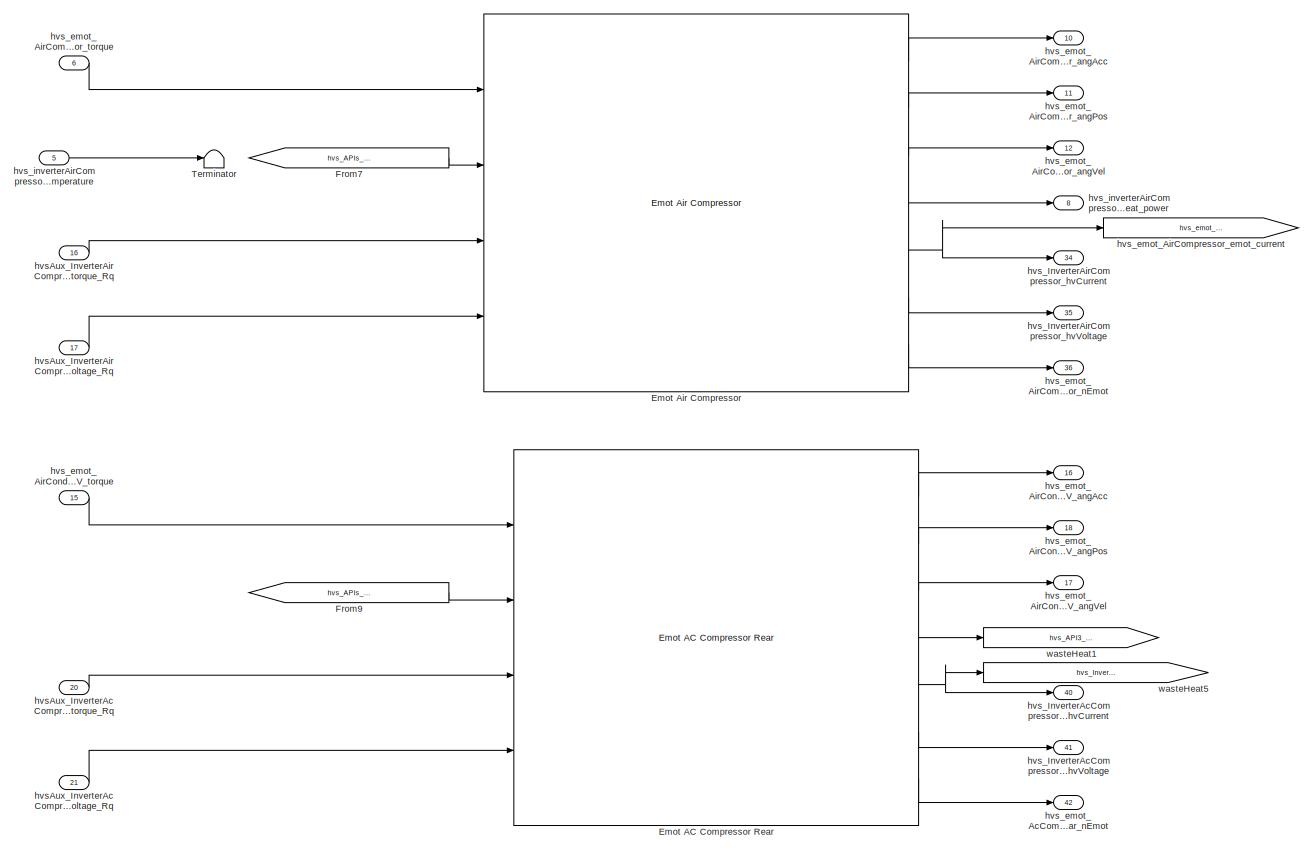
[diagram: hvs_zfCetrax_CX19 - part 3/13, top center region]
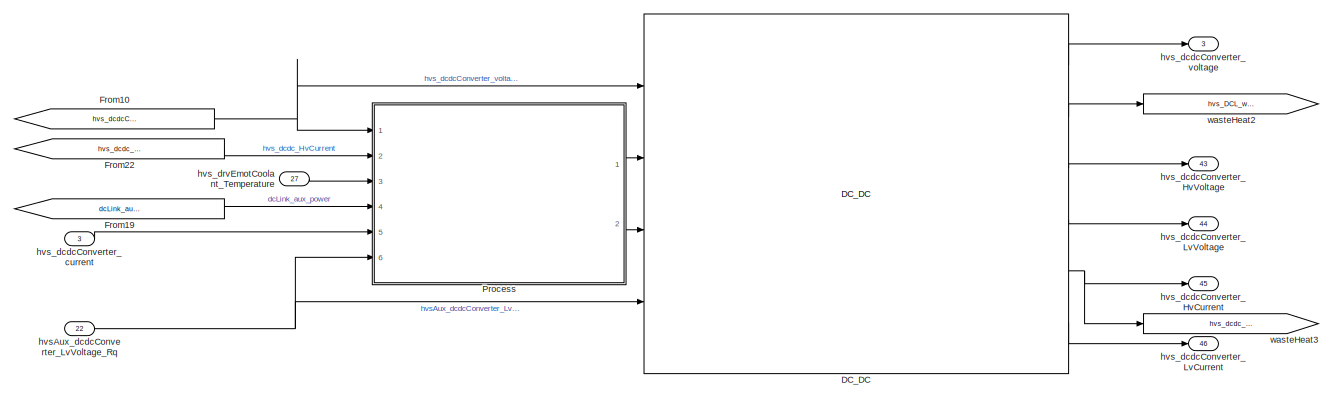
[diagram: hvs_zfCetrax_CX19 - part 4/13, central region]
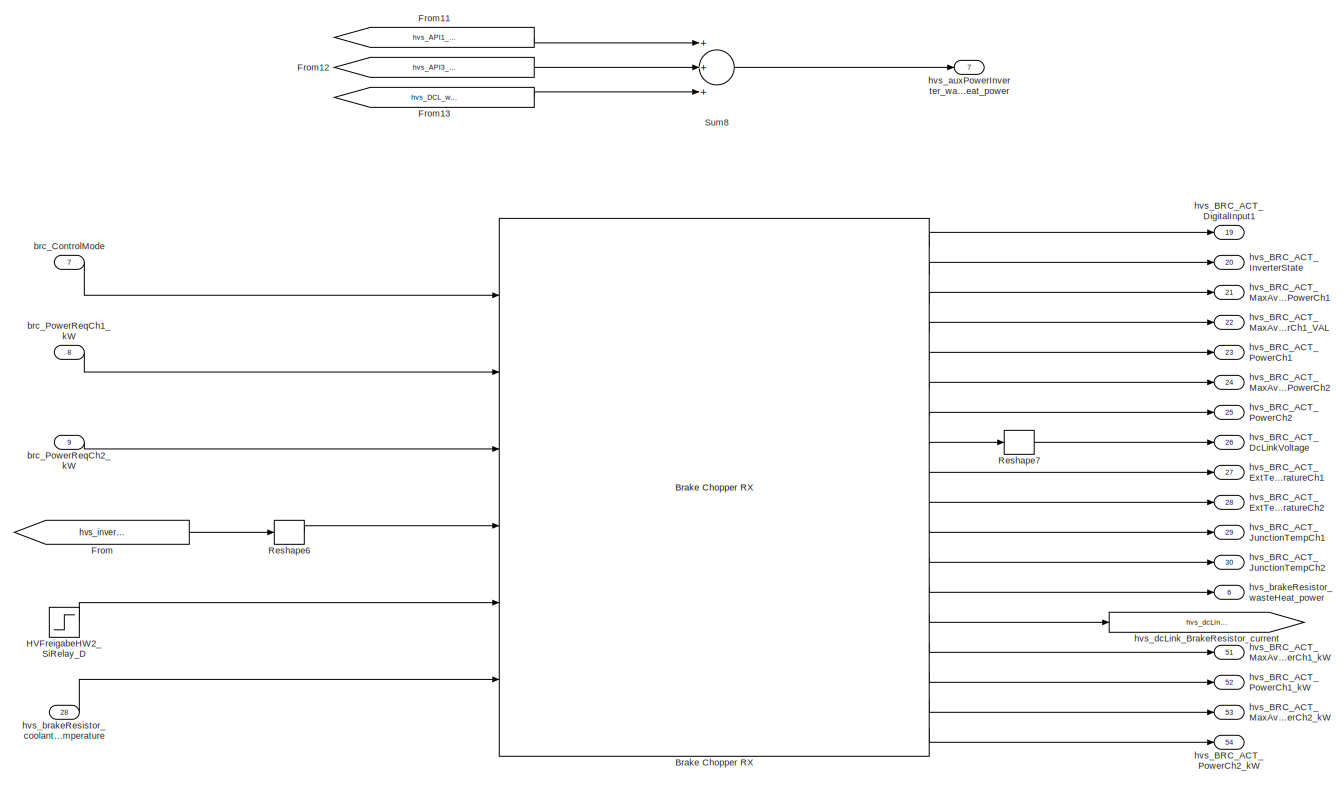
[diagram: hvs_zfCetrax_CX19 - part 5/13, full width, middle band]
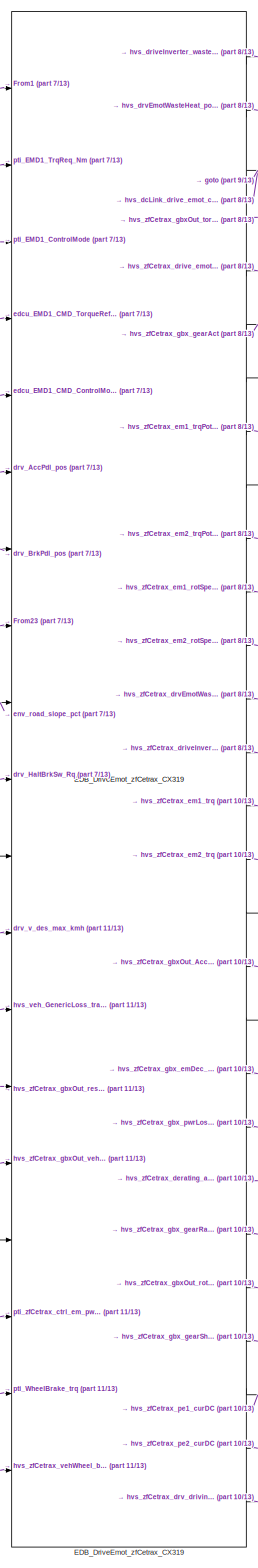
[diagram: hvs_zfCetrax_CX19 - part 6/13, bottom center region]
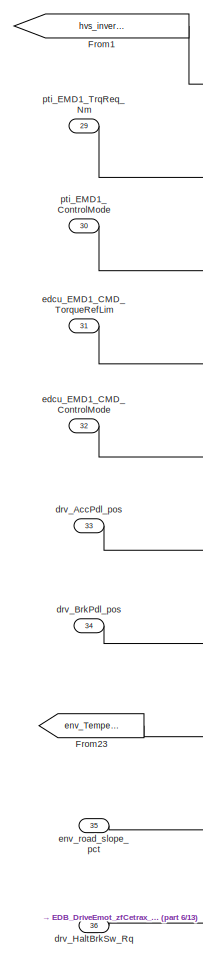
[diagram: hvs_zfCetrax_CX19 - part 7/13, middle left region]
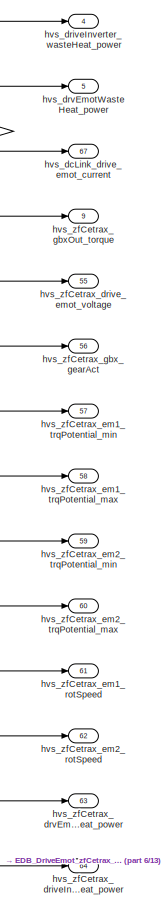
[diagram: hvs_zfCetrax_CX19 - part 8/13, middle right region]
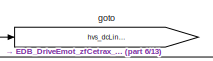
[diagram: hvs_zfCetrax_CX19 - part 9/13, middle right region]
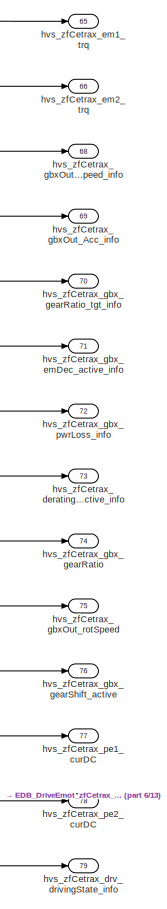
[diagram: hvs_zfCetrax_CX19 - part 10/13, bottom right region]
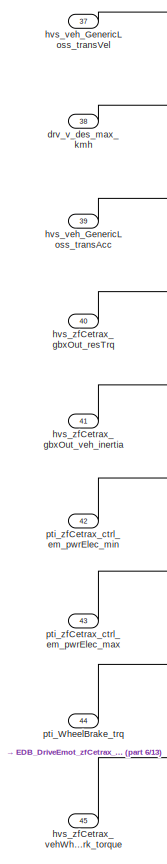
[diagram: hvs_zfCetrax_CX19 - part 11/13, bottom left region]
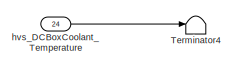
[diagram: hvs_zfCetrax_CX19 - part 12/13, bottom left region]
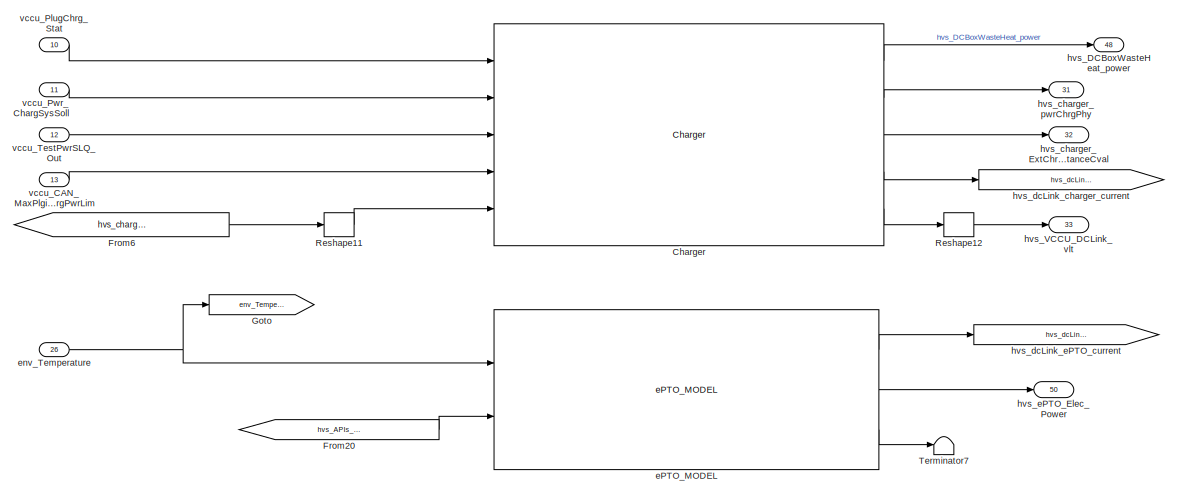
[diagram: hvs_zfCetrax_CX19 - part 13/13, bottom center region]
BLOCK [SubSystem] hvs_zfCetrax_CX19
  Ports = [45, 79]
  RequestExecContextInheritance = off
  Variant = off
BLOCK [Reference] hvs_zfCetrax_CX19/Brake Chopper RX  REF=Electrical_to_Thermal_gen/Brake Chopper RX
  Ports = [6, 18]
  SourceBlock = Electrical_to_Thermal_gen/Brake Chopper RX
  SourceType = SubSystem
BLOCK [Reference] hvs_zfCetrax_CX19/Charger  REF=Electrical_charger/Charger
  Ports = [5, 5]
  SourceBlock = Electrical_charger/Charger
  SourceType = SubSystem
BLOCK [Reference] hvs_zfCetrax_CX19/DC_DC  REF=Electrical_converter/DC_DC
  Ports = [4, 6]
  SourceBlock = Electrical_converter/DC_DC
  SourceType = SubSystem
BLOCK [Reference] hvs_zfCetrax_CX19/DC_Link  REF=Powernet/DC_Link
  Ports = [12, 10]
  SourceBlock = Powernet/DC_Link
  SourceType = SubSystem
BLOCK [Reference] hvs_zfCetrax_CX19/EDB_DriveEmot_zfCetrax_CX319  REF=Enrg_conv_El_to_Mec_zfCetrax/EDB_DriveEmot_zfCetrax_CX319
  Ports = [19, 28]
  SourceBlock = Enrg_conv_El_to_Mec_zfCetrax/EDB_DriveEmot_zfCetrax_CX319
  SourceType = SubSystem
BLOCK [Reference] hvs_zfCetrax_CX19/Emot AC Compressor Front  REF=Electrical_to_Mechanical_gen/Emot AC Compressor Front
  Ports = [4, 7]
  SourceBlock = Electrical_to_Mechanical_gen/Emot AC Compressor Front
  SourceType = SubSystem
BLOCK [Reference] hvs_zfCetrax_CX19/Emot AC Compressor Rear  REF=Electrical_to_Mechanical_gen/Emot AC Compressor Rear
  Ports = [4, 7]
  SourceBlock = Electrical_to_Mechanical_gen/Emot AC Compressor Rear
  SourceType = SubSystem
BLOCK [Reference] hvs_zfCetrax_CX19/Emot Air Compressor  REF=Electrical_to_Mechanical_gen/Emot Air Compressor
  Ports = [4, 7]
  SourceBlock = Electrical_to_Mechanical_gen/Emot Air Compressor
  SourceType = SubSystem
BLOCK [From] hvs_zfCetrax_CX19/From
  GotoTag = hvs_inverter_BrakeResistor_voltage
BLOCK [From] hvs_zfCetrax_CX19/From1
  GotoTag = hvs_inverter_drive_emot_voltage
BLOCK [From] hvs_zfCetrax_CX19/From10
  GotoTag = hvs_dcdcConverter_voltage
BLOCK [From] hvs_zfCetrax_CX19/From11
  GotoTag = hvs_API1_wasteHeat_power
BLOCK [From] hvs_zfCetrax_CX19/From12
  GotoTag = hvs_API3_wasteHeat_power
BLOCK [From] hvs_zfCetrax_CX19/From13
  GotoTag = hvs_DCL_wasteHeat_power
BLOCK [From] hvs_zfCetrax_CX19/From14
  GotoTag = hvs_dcdc_current
BLOCK [From] hvs_zfCetrax_CX19/From15
  GotoTag = hvs_InverterAcCompressor_hvCurrent
BLOCK [From] hvs_zfCetrax_CX19/From16
  GotoTag = hvs_InverterAcCompressorRear_hvCurrent
BLOCK [From] hvs_zfCetrax_CX19/From17
  GotoTag = hvs_dcLink_electricalEnergyStorage_voltage
BLOCK [From] hvs_zfCetrax_CX19/From18
  GotoTag = dcLink_aux_current
BLOCK [From] hvs_zfCetrax_CX19/From19
  GotoTag = dcLink_aux_power
BLOCK [From] hvs_zfCetrax_CX19/From2
  GotoTag = hvs_dcLink_drive_emot_current
BLOCK [From] hvs_zfCetrax_CX19/From20
  GotoTag = hvs_APIs_DCLink_vlt
BLOCK [From] hvs_zfCetrax_CX19/From21
  GotoTag = hvs_dcLink_ePTO_current
BLOCK [From] hvs_zfCetrax_CX19/From22
  GotoTag = hvs_dcdc_current
BLOCK [From] hvs_zfCetrax_CX19/From23
  GotoTag = env_Temperature
BLOCK [From] hvs_zfCetrax_CX19/From3
  GotoTag = hvs_emot_AirCompressor_emot_current
BLOCK [From] hvs_zfCetrax_CX19/From4
  GotoTag = hvs_dcLink_BrakeResistor_current
BLOCK [From] hvs_zfCetrax_CX19/From5
  GotoTag = hvs_dcLink_charger_current
BLOCK [From] hvs_zfCetrax_CX19/From6
  GotoTag = hvs_charger_DCLink_vlt
BLOCK [From] hvs_zfCetrax_CX19/From7
  GotoTag = hvs_APIs_DCLink_vlt
BLOCK [From] hvs_zfCetrax_CX19/From8
  GotoTag = hvs_APIs_DCLink_vlt
BLOCK [From] hvs_zfCetrax_CX19/From9
  GotoTag = hvs_APIs_DCLink_vlt
BLOCK [Goto] hvs_zfCetrax_CX19/Goto
  GotoTag = env_Temperature
BLOCK [Step] hvs_zfCetrax_CX19/HVFreigabeHW2_SiRelay_D
  SampleTime = 0
  Time = 5.502
BLOCK [SubSystem] hvs_zfCetrax_CX19/Process
  Ports = [6, 2]
  RequestExecContextInheritance = off
  Variant = off
BLOCK [Reference] hvs_zfCetrax_CX19/Process/Avoid_Div_by_zero  REF=Electrical_converter/DC_DC/Avoid_Div_by_zero
  Ports = [1, 1]
  SourceBlock = Electrical_converter/DC_DC/Avoid_Div_by_zero
  SourceType = SubSystem
BLOCK [Constant] hvs_zfCetrax_CX19/Process/Constant
  Value = aux_power_flag
BLOCK [Delay] hvs_zfCetrax_CX19/Process/Delay
  DelayLength = 1
  InitialCondition = 0
  InputPortMap = u0
  Ports = [1, 1]
BLOCK [Product] hvs_zfCetrax_CX19/Process/Product1
  InputSameDT = off
  Inputs = **
  OutDataTypeStr = Inherit: Inherit via internal rule
  Ports = [2, 1]
  SaturateOnIntegerOverflow = off
BLOCK [Product] hvs_zfCetrax_CX19/Process/Product2
  InputSameDT = off
  Inputs = **
  OutDataTypeStr = Inherit: Inherit via internal rule
  Ports = [2, 1]
  SaturateOnIntegerOverflow = off
BLOCK [Switch] hvs_zfCetrax_CX19/Process/Switch
  InputSameDT = off
  SaturateOnIntegerOverflow = off
  Threshold = 0.5
BLOCK [Inport] hvs_zfCetrax_CX19/Process/dcLink_aux_power
  IconDisplay = Port number
  Port = 4
BLOCK [Outport] hvs_zfCetrax_CX19/Process/dcdc_conv_eff
  IconDisplay = Port number
BLOCK [Lookup_n-D] hvs_zfCetrax_CX19/Process/dcdc_conv_eff vlt, curr, coolantTemp
  BreakpointsForDimension1 = dcdc_effmap_vlt_1stD
  BreakpointsForDimension2 = dcdc_effmap_cur_2ndD
  BreakpointsForDimension3 = dcdc_effmap_cooltemp_3rdD
  ExtrapMethod = Clip
  NumberOfTableDimensions = 3
  Ports = [3, 1]
  RndMeth = Simplest
  Table = dcdc_effmap
BLOCK [Inport] hvs_zfCetrax_CX19/Process/hvsAux_dcdcConv_LvVoltage_Rq
  IconDisplay = Port number
  Port = 6
BLOCK [Inport] hvs_zfCetrax_CX19/Process/hvs_dcdcConv_current
  IconDisplay = Port number
  Port = 5
BLOCK [Outport] hvs_zfCetrax_CX19/Process/hvs_dcdcConv_current1
  IconDisplay = Port number
  Port = 2
BLOCK [Inport] hvs_zfCetrax_CX19/Process/hvs_dcdcConverter_voltage
  IconDisplay = Port number
BLOCK [Inport] hvs_zfCetrax_CX19/Process/hvs_dcdc_HvCurrent
  IconDisplay = Port number
  Port = 2
BLOCK [Inport] hvs_zfCetrax_CX19/Process/hvs_drvEmotCoolant_Temperature
  IconDisplay = Port number
  Port = 3
BLOCK [Reshape] hvs_zfCetrax_CX19/Reshape
  Ports = [1, 1]
BLOCK [Reshape] hvs_zfCetrax_CX19/Reshape1
  Ports = [1, 1]
BLOCK [Reshape] hvs_zfCetrax_CX19/Reshape11
  Ports = [1, 1]
BLOCK [Reshape] hvs_zfCetrax_CX19/Reshape12
  Ports = [1, 1]
BLOCK [Reshape] hvs_zfCetrax_CX19/Reshape14
  Ports = [1, 1]
BLOCK [Reshape] hvs_zfCetrax_CX19/Reshape15
  Ports = [1, 1]
BLOCK [Reshape] hvs_zfCetrax_CX19/Reshape16
  Ports = [1, 1]
BLOCK [Reshape] hvs_zfCetrax_CX19/Reshape17
  Ports = [1, 1]
BLOCK [Reshape] hvs_zfCetrax_CX19/Reshape2
  Ports = [1, 1]
BLOCK [Reshape] hvs_zfCetrax_CX19/Reshape3
  Ports = [1, 1]
BLOCK [Reshape] hvs_zfCetrax_CX19/Reshape4
  Ports = [1, 1]
BLOCK [Reshape] hvs_zfCetrax_CX19/Reshape5
  Ports = [1, 1]
BLOCK [Reshape] hvs_zfCetrax_CX19/Reshape6
  Ports = [1, 1]
BLOCK [Reshape] hvs_zfCetrax_CX19/Reshape7
  Ports = [1, 1]
BLOCK [Sum] hvs_zfCetrax_CX19/Sum8
  Inputs = +++
  Ports = [3, 1]
BLOCK [Terminator] hvs_zfCetrax_CX19/Terminator
BLOCK [Terminator] hvs_zfCetrax_CX19/Terminator4
BLOCK [Terminator] hvs_zfCetrax_CX19/Terminator5
BLOCK [Terminator] hvs_zfCetrax_CX19/Terminator7
BLOCK [Inport] hvs_zfCetrax_CX19/brc_ControlMode
  IconDisplay = Port number
  Port = 7
BLOCK [Inport] hvs_zfCetrax_CX19/brc_PowerReqCh1_kW
  IconDisplay = Port number
  Port = 8
BLOCK [Inport] hvs_zfCetrax_CX19/brc_PowerReqCh2_kW
  IconDisplay = Port number
  Port = 9
BLOCK [Goto] hvs_zfCetrax_CX19/dcLink_aux_current
  GotoTag = dcLink_aux_current
BLOCK [Goto] hvs_zfCetrax_CX19/dcLink_aux_power
  GotoTag = dcLink_aux_power
BLOCK [Inport] hvs_zfCetrax_CX19/drv_AccPdl_pos
  IconDisplay = Port number
  Port = 33
BLOCK [Inport] hvs_zfCetrax_CX19/drv_BrkPdl_pos
  IconDisplay = Port number
  Port = 34
BLOCK [Inport] hvs_zfCetrax_CX19/drv_HaltBrkSw_Rq
  IconDisplay = Port number
  Port = 36
BLOCK [Inport] hvs_zfCetrax_CX19/drv_v_des_max_kmh
  IconDisplay = Port number
  Port = 38
BLOCK [Reference] hvs_zfCetrax_CX19/ePTO_MODEL  REF=ePTO/ePTO_MODEL
  Ports = [2, 3]
  SourceBlock = ePTO/ePTO_MODEL
  SourceType = SubSystem
BLOCK [Inport] hvs_zfCetrax_CX19/edcu_EMD1_CMD_ControlMode
  IconDisplay = Port number
  Port = 32
BLOCK [Inport] hvs_zfCetrax_CX19/edcu_EMD1_CMD_TorqueRefLim
  IconDisplay = Port number
  Port = 31
BLOCK [Inport] hvs_zfCetrax_CX19/env_Temperature
  IconDisplay = Port number
  Port = 26
BLOCK [Inport] hvs_zfCetrax_CX19/env_dcLink_aux_power
  IconDisplay = Port number
  Port = 23
BLOCK [Inport] hvs_zfCetrax_CX19/env_road_slope_pct
  IconDisplay = Port number
  Port = 35
BLOCK [Goto] hvs_zfCetrax_CX19/goto
  GotoTag = hvs_dcLink_drive_emot_current
BLOCK [Inport] hvs_zfCetrax_CX19/hvsAux_InverterAcCompressorFront_Voltage_Rq
  IconDisplay = Port number
  Port = 19
BLOCK [Inport] hvs_zfCetrax_CX19/hvsAux_InverterAcCompressorFront_torque_Rq
  IconDisplay = Port number
  Port = 18
BLOCK [Inport] hvs_zfCetrax_CX19/hvsAux_InverterAcCompressorRear_Voltage_Rq
  IconDisplay = Port number
  Port = 21
BLOCK [Inport] hvs_zfCetrax_CX19/hvsAux_InverterAcCompressorRear_torque_Rq
  IconDisplay = Port number
  Port = 20
BLOCK [Inport] hvs_zfCetrax_CX19/hvsAux_InverterAirCompressor_Voltage_Rq
  IconDisplay = Port number
  Port = 17
BLOCK [Inport] hvs_zfCetrax_CX19/hvsAux_InverterAirCompressor_torque_Rq
  IconDisplay = Port number
  Port = 16
BLOCK [Inport] hvs_zfCetrax_CX19/hvsAux_dcdcConverter_LvVoltage_Rq
  IconDisplay = Port number
  Port = 22
BLOCK [Goto] hvs_zfCetrax_CX19/hvs_APIs_DCLink_vlt
  GotoTag = hvs_APIs_DCLink_vlt
BLOCK [Goto] hvs_zfCetrax_CX19/hvs_APIs_DCLink_vlt1
  GotoTag = hvs_ePTO_DCLink_vlt
BLOCK [Outport] hvs_zfCetrax_CX19/hvs_BRC_ACT_DcLinkVoltage
  IconDisplay = Port number
  Port = 26
BLOCK [Outport] hvs_zfCetrax_CX19/hvs_BRC_ACT_DigitalInput1
  IconDisplay = Port number
  Port = 19
BLOCK [Outport] hvs_zfCetrax_CX19/hvs_BRC_ACT_ExtTemperatureCh1
  IconDisplay = Port number
  Port = 27
BLOCK [Outport] hvs_zfCetrax_CX19/hvs_BRC_ACT_ExtTemperatureCh2
  IconDisplay = Port number
  Port = 28
BLOCK [Outport] hvs_zfCetrax_CX19/hvs_BRC_ACT_InverterState
  IconDisplay = Port number
  Port = 20
BLOCK [Outport] hvs_zfCetrax_CX19/hvs_BRC_ACT_JunctionTempCh1
  IconDisplay = Port number
  Port = 29
BLOCK [Outport] hvs_zfCetrax_CX19/hvs_BRC_ACT_JunctionTempCh2
  IconDisplay = Port number
  Port = 30
BLOCK [Outport] hvs_zfCetrax_CX19/hvs_BRC_ACT_MaxAvailablePowerCh1
  IconDisplay = Port number
  Port = 21
BLOCK [Outport] hvs_zfCetrax_CX19/hvs_BRC_ACT_MaxAvailablePowerCh1_VAL
  IconDisplay = Port number
  Port = 22
BLOCK [Outport] hvs_zfCetrax_CX19/hvs_BRC_ACT_MaxAvailablePowerCh1_kW
  IconDisplay = Port number
  Port = 51
BLOCK [Outport] hvs_zfCetrax_CX19/hvs_BRC_ACT_MaxAvailablePowerCh2
  IconDisplay = Port number
  Port = 24
BLOCK [Outport] hvs_zfCetrax_CX19/hvs_BRC_ACT_MaxAvailablePowerCh2_kW
  IconDisplay = Port number
  Port = 53
BLOCK [Outport] hvs_zfCetrax_CX19/hvs_BRC_ACT_PowerCh1
  IconDisplay = Port number
  Port = 23
BLOCK [Outport] hvs_zfCetrax_CX19/hvs_BRC_ACT_PowerCh1_kW
  IconDisplay = Port number
  Port = 52
BLOCK [Outport] hvs_zfCetrax_CX19/hvs_BRC_ACT_PowerCh2
  IconDisplay = Port number
  Port = 25
BLOCK [Outport] hvs_zfCetrax_CX19/hvs_BRC_ACT_PowerCh2_kW
  IconDisplay = Port number
  Port = 54
BLOCK [Inport] hvs_zfCetrax_CX19/hvs_DCBoxCoolant_Temperature
  IconDisplay = Port number
  Port = 24
BLOCK [Outport] hvs_zfCetrax_CX19/hvs_DCBoxWasteHeat_power
  IconDisplay = Port number
  Port = 48
BLOCK [Outport] hvs_zfCetrax_CX19/hvs_InverterAcCompressorRear_hvCurrent
  IconDisplay = Port number
  Port = 40
BLOCK [Outport] hvs_zfCetrax_CX19/hvs_InverterAcCompressorRear_hvVoltage
  IconDisplay = Port number
  Port = 41
BLOCK [Outport] hvs_zfCetrax_CX19/hvs_InverterAcCompressor_hvCurrent
  IconDisplay = Port number
  Port = 37
BLOCK [Outport] hvs_zfCetrax_CX19/hvs_InverterAcCompressor_hvVoltage
  IconDisplay = Port number
  Port = 38
BLOCK [Outport] hvs_zfCetrax_CX19/hvs_InverterAirCompressor_hvCurrent
  IconDisplay = Port number
  Port = 34
BLOCK [Outport] hvs_zfCetrax_CX19/hvs_InverterAirCompressor_hvVoltage
  IconDisplay = Port number
  Port = 35
BLOCK [Outport] hvs_zfCetrax_CX19/hvs_VCCU_DCLink_vlt
  IconDisplay = Port number
  Port = 33
BLOCK [Inport] hvs_zfCetrax_CX19/hvs_auxPowerInverter_coolant_temperature
  IconDisplay = Port number
  Port = 4
BLOCK [Outport] hvs_zfCetrax_CX19/hvs_auxPowerInverter_wasteHeat_power
  IconDisplay = Port number
  Port = 7
BLOCK [Inport] hvs_zfCetrax_CX19/hvs_brakeResistor_coolant_temperature
  IconDisplay = Port number
  Port = 28
BLOCK [Outport] hvs_zfCetrax_CX19/hvs_brakeResistor_wasteHeat_power
  IconDisplay = Port number
  Port = 6
BLOCK [Goto] hvs_zfCetrax_CX19/hvs_charger_DCLink_vlt
  GotoTag = hvs_charger_DCLink_vlt
BLOCK [Outport] hvs_zfCetrax_CX19/hvs_charger_ExtChrgr_Isolation_ResistanceCval
  IconDisplay = Port number
  Port = 32
BLOCK [Outport] hvs_zfCetrax_CX19/hvs_charger_pwrChrgPhy
  IconDisplay = Port number
  Port = 31
BLOCK [Inport] hvs_zfCetrax_CX19/hvs_coolHV_current
  IconDisplay = Port number
  Port = 25
BLOCK [Outport] hvs_zfCetrax_CX19/hvs_coolHV_voltage
  IconDisplay = Port number
  Port = 49
BLOCK [Goto] hvs_zfCetrax_CX19/hvs_dcLink_BrakeResistor_current
  GotoTag = hvs_dcLink_BrakeResistor_current
BLOCK [Inport] hvs_zfCetrax_CX19/hvs_dcLink_ControllableEnergySource_current
  IconDisplay = Port number
  Port = 2
BLOCK [Outport] hvs_zfCetrax_CX19/hvs_dcLink_ControllableEnergySource_voltage
  IconDisplay = Port number
  Port = 2
BLOCK [Outport] hvs_zfCetrax_CX19/hvs_dcLink_aux_current
  IconDisplay = Port number
  Port = 47
BLOCK [Goto] hvs_zfCetrax_CX19/hvs_dcLink_charger_current
  GotoTag = hvs_dcLink_charger_current
BLOCK [Outport] hvs_zfCetrax_CX19/hvs_dcLink_drive_emot_current
  IconDisplay = Port number
  Port = 67
BLOCK [Goto] hvs_zfCetrax_CX19/hvs_dcLink_ePTO_current
  GotoTag = hvs_dcLink_ePTO_current
BLOCK [Outport] hvs_zfCetrax_CX19/hvs_dcLink_electricalEnergyStorage_current
  IconDisplay = Port number
BLOCK [Inport] hvs_zfCetrax_CX19/hvs_dcLink_electricalEnergyStorage_voltage
  IconDisplay = Port number
BLOCK [Outport] hvs_zfCetrax_CX19/hvs_dcdcConverter_HvCurrent
  IconDisplay = Port number
  Port = 45
BLOCK [Outport] hvs_zfCetrax_CX19/hvs_dcdcConverter_HvVoltage
  IconDisplay = Port number
  Port = 43
BLOCK [Outport] hvs_zfCetrax_CX19/hvs_dcdcConverter_LvCurrent
  IconDisplay = Port number
  Port = 46
BLOCK [Outport] hvs_zfCetrax_CX19/hvs_dcdcConverter_LvVoltage
  IconDisplay = Port number
  Port = 44
BLOCK [Inport] hvs_zfCetrax_CX19/hvs_dcdcConverter_current
  IconDisplay = Port number
  Port = 3
BLOCK [Goto] hvs_zfCetrax_CX19/hvs_dcdcConverter_volt
  GotoTag = hvs_dcdcConverter_voltage
BLOCK [Goto] hvs_zfCetrax_CX19/hvs_dcdcConverter_volt1
  GotoTag = hvs_dcLink_electricalEnergyStorage_voltage
BLOCK [Outport] hvs_zfCetrax_CX19/hvs_dcdcConverter_voltage
  IconDisplay = Port number
  Port = 3
BLOCK [Outport] hvs_zfCetrax_CX19/hvs_driveInverter_wasteHeat_power
  IconDisplay = Port number
  Port = 4
BLOCK [Inport] hvs_zfCetrax_CX19/hvs_drvEmotCoolant_Temperature
  IconDisplay = Port number
  Port = 27
BLOCK [Outport] hvs_zfCetrax_CX19/hvs_drvEmotWasteHeat_power
  IconDisplay = Port number
  Port = 5
BLOCK [Outport] hvs_zfCetrax_CX19/hvs_ePTO_Elec_Power
  IconDisplay = Port number
  Port = 50
BLOCK [Outport] hvs_zfCetrax_CX19/hvs_emot_AcCompressorRear_nEmot
  IconDisplay = Port number
  Port = 42
BLOCK [Outport] hvs_zfCetrax_CX19/hvs_emot_AcCompressor_nEmot
  IconDisplay = Port number
  Port = 39
BLOCK [Outport] hvs_zfCetrax_CX19/hvs_emot_AirCompressor_angAcc
  IconDisplay = Port number
  Port = 10
BLOCK [Outport] hvs_zfCetrax_CX19/hvs_emot_AirCompressor_angPos
  IconDisplay = Port number
  Port = 11
BLOCK [Outport] hvs_zfCetrax_CX19/hvs_emot_AirCompressor_angVel
  IconDisplay = Port number
  Port = 12
BLOCK [Goto] hvs_zfCetrax_CX19/hvs_emot_AirCompressor_emot_current
  GotoTag = hvs_emot_AirCompressor_emot_current
BLOCK [Outport] hvs_zfCetrax_CX19/hvs_emot_AirCompressor_nEmot
  IconDisplay = Port number
  Port = 36
BLOCK [Inport] hvs_zfCetrax_CX19/hvs_emot_AirCompressor_torque
  IconDisplay = Port number
  Port = 6
BLOCK [Outport] hvs_zfCetrax_CX19/hvs_emot_AirCondFrontHV_angAcc
  IconDisplay = Port number
  Port = 13
BLOCK [Outport] hvs_zfCetrax_CX19/hvs_emot_AirCondFrontHV_angPos
  IconDisplay = Port number
  Port = 14
BLOCK [Outport] hvs_zfCetrax_CX19/hvs_emot_AirCondFrontHV_angVel
  IconDisplay = Port number
  Port = 15
BLOCK [Inport] hvs_zfCetrax_CX19/hvs_emot_AirCondFrontHV_torque
  IconDisplay = Port number
  Port = 14
BLOCK [Outport] hvs_zfCetrax_CX19/hvs_emot_AirCondRearHV_angAcc
  IconDisplay = Port number
  Port = 16
BLOCK [Outport] hvs_zfCetrax_CX19/hvs_emot_AirCondRearHV_angPos
  IconDisplay = Port number
  Port = 18
BLOCK [Outport] hvs_zfCetrax_CX19/hvs_emot_AirCondRearHV_angVel
  IconDisplay = Port number
  Port = 17
BLOCK [Inport] hvs_zfCetrax_CX19/hvs_emot_AirCondRearHV_torque
  IconDisplay = Port number
  Port = 15
BLOCK [Inport] hvs_zfCetrax_CX19/hvs_inverterAirCompressor_coolant_temperature
  IconDisplay = Port number
  Port = 5
BLOCK [Outport] hvs_zfCetrax_CX19/hvs_inverterAirCompressor_wasteHeat_power
  IconDisplay = Port number
  Port = 8
BLOCK [Goto] hvs_zfCetrax_CX19/hvs_inverter_BrakeResistor_voltage
  GotoTag = hvs_inverter_BrakeResistor_voltage
BLOCK [Goto] hvs_zfCetrax_CX19/hvs_inverter_drive_emot_voltage
  GotoTag = hvs_inverter_drive_emot_voltage
BLOCK [Inport] hvs_zfCetrax_CX19/hvs_veh_GenericLoss_transAcc
  IconDisplay = Port number
  Port = 39
BLOCK [Inport] hvs_zfCetrax_CX19/hvs_veh_GenericLoss_transVel
  IconDisplay = Port number
  Port = 37
BLOCK [Outport] hvs_zfCetrax_CX19/hvs_zfCetrax_derating_active_info
  IconDisplay = Port number
  Port = 73
BLOCK [Outport] hvs_zfCetrax_CX19/hvs_zfCetrax_driveInverterWasteHeat_power
  IconDisplay = Port number
  Port = 64
BLOCK [Outport] hvs_zfCetrax_CX19/hvs_zfCetrax_drive_emot_voltage
  IconDisplay = Port number
  Port = 55
BLOCK [Outport] hvs_zfCetrax_CX19/hvs_zfCetrax_drvEmotWasteHeat_power
  IconDisplay = Port number
  Port = 63
BLOCK [Outport] hvs_zfCetrax_CX19/hvs_zfCetrax_drv_drivingState_info
  IconDisplay = Port number
  Port = 79
BLOCK [Outport] hvs_zfCetrax_CX19/hvs_zfCetrax_em1_rotSpeed
  IconDisplay = Port number
  Port = 61
BLOCK [Outport] hvs_zfCetrax_CX19/hvs_zfCetrax_em1_trq
  IconDisplay = Port number
  Port = 65
BLOCK [Outport] hvs_zfCetrax_CX19/hvs_zfCetrax_em1_trqPotential_max
  IconDisplay = Port number
  Port = 58
BLOCK [Outport] hvs_zfCetrax_CX19/hvs_zfCetrax_em1_trqPotential_min
  IconDisplay = Port number
  Port = 57
BLOCK [Outport] hvs_zfCetrax_CX19/hvs_zfCetrax_em2_rotSpeed
  IconDisplay = Port number
  Port = 62
BLOCK [Outport] hvs_zfCetrax_CX19/hvs_zfCetrax_em2_trq
  IconDisplay = Port number
  Port = 66
BLOCK [Outport] hvs_zfCetrax_CX19/hvs_zfCetrax_em2_trqPotential_max
  IconDisplay = Port number
  Port = 60
BLOCK [Outport] hvs_zfCetrax_CX19/hvs_zfCetrax_em2_trqPotential_min
  IconDisplay = Port number
  Port = 59
BLOCK [Outport] hvs_zfCetrax_CX19/hvs_zfCetrax_gbxOut_Acc_info
  IconDisplay = Port number
  Port = 69
BLOCK [Inport] hvs_zfCetrax_CX19/hvs_zfCetrax_gbxOut_resTrq
  IconDisplay = Port number
  Port = 40
BLOCK [Outport] hvs_zfCetrax_CX19/hvs_zfCetrax_gbxOut_rotSpeed
  IconDisplay = Port number
  Port = 75
BLOCK [Outport] hvs_zfCetrax_CX19/hvs_zfCetrax_gbxOut_rotSpeed_info
  IconDisplay = Port number
  Port = 68
BLOCK [Outport] hvs_zfCetrax_CX19/hvs_zfCetrax_gbxOut_torque
  IconDisplay = Port number
  Port = 9
BLOCK [Inport] hvs_zfCetrax_CX19/hvs_zfCetrax_gbxOut_veh_inertia
  IconDisplay = Port number
  Port = 41
BLOCK [Outport] hvs_zfCetrax_CX19/hvs_zfCetrax_gbx_emDec_active_info
  IconDisplay = Port number
  Port = 71
BLOCK [Outport] hvs_zfCetrax_CX19/hvs_zfCetrax_gbx_gearAct
  IconDisplay = Port number
  Port = 56
BLOCK [Outport] hvs_zfCetrax_CX19/hvs_zfCetrax_gbx_gearRatio
  IconDisplay = Port number
  Port = 74
BLOCK [Outport] hvs_zfCetrax_CX19/hvs_zfCetrax_gbx_gearRatio_tgt_info
  IconDisplay = Port number
  Port = 70
BLOCK [Outport] hvs_zfCetrax_CX19/hvs_zfCetrax_gbx_gearShift_active
  IconDisplay = Port number
  Port = 76
BLOCK [Outport] hvs_zfCetrax_CX19/hvs_zfCetrax_gbx_pwrLoss_info
  IconDisplay = Port number
  Port = 72
BLOCK [Outport] hvs_zfCetrax_CX19/hvs_zfCetrax_pe1_curDC
  IconDisplay = Port number
  Port = 77
BLOCK [Outport] hvs_zfCetrax_CX19/hvs_zfCetrax_pe2_curDC
  IconDisplay = Port number
  Port = 78
BLOCK [Inport] hvs_zfCetrax_CX19/hvs_zfCetrax_vehWheel_brk_torque
  IconDisplay = Port number
  Port = 45
BLOCK [Inport] hvs_zfCetrax_CX19/pti_EMD1_ControlMode
  IconDisplay = Port number
  Port = 30
BLOCK [Inport] hvs_zfCetrax_CX19/pti_EMD1_TrqReq_Nm
  IconDisplay = Port number
  Port = 29
BLOCK [Inport] hvs_zfCetrax_CX19/pti_WheelBrake_trq
  IconDisplay = Port number
  Port = 44
BLOCK [Inport] hvs_zfCetrax_CX19/pti_zfCetrax_ctrl_em_pwrElec_max
  IconDisplay = Port number
  Port = 43
BLOCK [Inport] hvs_zfCetrax_CX19/pti_zfCetrax_ctrl_em_pwrElec_min
  IconDisplay = Port number
  Port = 42
BLOCK [SubSystem] hvs_zfCetrax_CX19/sub_env_aux
  Ports = [2, 1]
  RequestExecContextInheritance = off
  Variant = off
BLOCK [SubSystem] hvs_zfCetrax_CX19/sub_env_aux/Avoid_Div_by_zero
  Ports = [1, 1]
  RequestExecContextInheritance = off
  Variant = off
BLOCK [Outport] hvs_zfCetrax_CX19/sub_env_aux/Avoid_Div_by_zero/1//U
  IconDisplay = Port number
BLOCK [Constant] hvs_zfCetrax_CX19/sub_env_aux/Avoid_Div_by_zero/Constant
  Value = 10^-6
BLOCK [Product] hvs_zfCetrax_CX19/sub_env_aux/Avoid_Div_by_zero/Divide
  InputSameDT = off
  Inputs = /*
  OutDataTypeStr = Inherit: Inherit via internal rule
  Ports = [2, 1]
  RndMeth = Floor
  SaturateOnIntegerOverflow = off
BLOCK [Math] hvs_zfCetrax_CX19/sub_env_aux/Avoid_Div_by_zero/Math Function
  Operator = square
  Ports = [1, 1]
BLOCK [Sum] hvs_zfCetrax_CX19/sub_env_aux/Avoid_Div_by_zero/Sum
  IconShape = round
  InputSameDT = off
  Inputs = ++|
  OutDataTypeStr = Inherit: Inherit via internal rule
  Ports = [2, 1]
  SaturateOnIntegerOverflow = off
BLOCK [Inport] hvs_zfCetrax_CX19/sub_env_aux/Avoid_Div_by_zero/U
  IconDisplay = Port number
BLOCK [Reference] hvs_zfCetrax_CX19/sub_env_aux/Compare To Constant  REF=simulink/Logic and Bit
Operations/Compare
To Constant
  Ports = [1, 1]
  SourceBlock = simulink/Logic and Bit\nOperations/Compare\nTo Constant
  SourceType = Compare To Constant
BLOCK [Constant] hvs_zfCetrax_CX19/sub_env_aux/Constant
  Value = 0
BLOCK [Product] hvs_zfCetrax_CX19/sub_env_aux/Divide
  InputSameDT = off
  OutDataTypeStr = Inherit: Inherit via internal rule
  Ports = [2, 1]
  RndMeth = Floor
  SaturateOnIntegerOverflow = off
BLOCK [Inport] hvs_zfCetrax_CX19/sub_env_aux/Nebenagg_voltage
  IconDisplay = Port number
  Port = 2
BLOCK [Switch] hvs_zfCetrax_CX19/sub_env_aux/Switch
  InputSameDT = off
  SaturateOnIntegerOverflow = off
  Threshold = 0.5
BLOCK [Outport] hvs_zfCetrax_CX19/sub_env_aux/dcLink_aux_current
  IconDisplay = Port number
BLOCK [Inport] hvs_zfCetrax_CX19/sub_env_aux/env_dcLink_aux_power
  IconDisplay = Port number
BLOCK [Inport] hvs_zfCetrax_CX19/vccu_CAN_MaxPlginChrgPwrLim
  IconDisplay = Port number
  Port = 13
BLOCK [Inport] hvs_zfCetrax_CX19/vccu_PlugChrg_Stat
  IconDisplay = Port number
  Port = 10
BLOCK [Inport] hvs_zfCetrax_CX19/vccu_Pwr_ChargSysSoll
  IconDisplay = Port number
  Port = 11
BLOCK [Inport] hvs_zfCetrax_CX19/vccu_TestPwrSLQ_Out
  IconDisplay = Port number
  Port = 12
BLOCK [Goto] hvs_zfCetrax_CX19/wasteHeat
  GotoTag = hvs_API1_wasteHeat_power
BLOCK [Goto] hvs_zfCetrax_CX19/wasteHeat1
  GotoTag = hvs_API3_wasteHeat_power
BLOCK [Goto] hvs_zfCetrax_CX19/wasteHeat2
  GotoTag = hvs_DCL_wasteHeat_power
BLOCK [Goto] hvs_zfCetrax_CX19/wasteHeat3
  GotoTag = hvs_dcdc_current
BLOCK [Goto] hvs_zfCetrax_CX19/wasteHeat4
  GotoTag = hvs_InverterAcCompressor_hvCurrent
BLOCK [Goto] hvs_zfCetrax_CX19/wasteHeat5
  GotoTag = hvs_InverterAcCompressorRear_hvCurrent
BLOCK [SubSystem] hvs_zfCetrax_CX332
  Ports = [45, 79]
  RequestExecContextInheritance = off
  Variant = off
BLOCK [Reference] hvs_zfCetrax_CX332/Brake Chopper RX  REF=Electrical_to_Thermal_gen/Brake Chopper RX
  Ports = [6, 18]
  SourceBlock = Electrical_to_Thermal_gen/Brake Chopper RX
  SourceType = SubSystem
BLOCK [Reference] hvs_zfCetrax_CX332/Charger  REF=Electrical_charger/Charger
  Ports = [5, 5]
  SourceBlock = Electrical_charger/Charger
  SourceType = SubSystem
BLOCK [Reference] hvs_zfCetrax_CX332/DC_DC  REF=Electrical_converter/DC_DC
  Ports = [4, 6]
  SourceBlock = Electrical_converter/DC_DC
  SourceType = SubSystem
BLOCK [Reference] hvs_zfCetrax_CX332/DC_Link  REF=Powernet/DC_Link
  Ports = [12, 10]
  SourceBlock = Powernet/DC_Link
  SourceType = SubSystem
BLOCK [Reference] hvs_zfCetrax_CX332/EDB_DriveEmot_zfCetrax_CX332  REF=Enrg_conv_El_to_Mec_zfCetrax/EDB_DriveEmot_zfCetrax_CX332
  Ports = [19, 28]
  SourceBlock = Enrg_conv_El_to_Mec_zfCetrax/EDB_DriveEmot_zfCetrax_CX332
  SourceType = SubSystem
BLOCK [Reference] hvs_zfCetrax_CX332/Emot AC Compressor Front  REF=Electrical_to_Mechanical_gen/Emot AC Compressor Front
  Ports = [4, 7]
  SourceBlock = Electrical_to_Mechanical_gen/Emot AC Compressor Front
  SourceType = SubSystem
BLOCK [Reference] hvs_zfCetrax_CX332/Emot AC Compressor Rear  REF=Electrical_to_Mechanical_gen/Emot AC Compressor Rear
  Ports = [4, 7]
  SourceBlock = Electrical_to_Mechanical_gen/Emot AC Compressor Rear
  SourceType = SubSystem
BLOCK [Reference] hvs_zfCetrax_CX332/Emot Air Compressor  REF=Electrical_to_Mechanical_gen/Emot Air Compressor
  Ports = [4, 7]
  SourceBlock = Electrical_to_Mechanical_gen/Emot Air Compressor
  SourceType = SubSystem
BLOCK [From] hvs_zfCetrax_CX332/From
  GotoTag = hvs_inverter_BrakeResistor_voltage
BLOCK [From] hvs_zfCetrax_CX332/From1
  GotoTag = hvs_inverter_drive_emot_voltage
BLOCK [From] hvs_zfCetrax_CX332/From10
  GotoTag = hvs_dcdcConverter_voltage
BLOCK [From] hvs_zfCetrax_CX332/From11
  GotoTag = hvs_API1_wasteHeat_power
BLOCK [From] hvs_zfCetrax_CX332/From12
  GotoTag = hvs_API3_wasteHeat_power
BLOCK [From] hvs_zfCetrax_CX332/From13
  GotoTag = hvs_DCL_wasteHeat_power
BLOCK [From] hvs_zfCetrax_CX332/From14
  GotoTag = hvs_dcdc_current
BLOCK [From] hvs_zfCetrax_CX332/From15
  GotoTag = hvs_InverterAcCompressor_hvCurrent
BLOCK [From] hvs_zfCetrax_CX332/From16
  GotoTag = hvs_InverterAcCompressorRear_hvCurrent
BLOCK [From] hvs_zfCetrax_CX332/From17
  GotoTag = hvs_dcLink_electricalEnergyStorage_voltage
BLOCK [From] hvs_zfCetrax_CX332/From18
  GotoTag = dcLink_aux_current
BLOCK [From] hvs_zfCetrax_CX332/From19
  GotoTag = dcLink_aux_power
BLOCK [From] hvs_zfCetrax_CX332/From2
  GotoTag = hvs_dcLink_drive_emot_current
BLOCK [From] hvs_zfCetrax_CX332/From20
  GotoTag = hvs_APIs_DCLink_vlt
BLOCK [From] hvs_zfCetrax_CX332/From21
  GotoTag = hvs_dcLink_ePTO_current
BLOCK [From] hvs_zfCetrax_CX332/From22
  GotoTag = hvs_dcdc_current
BLOCK [From] hvs_zfCetrax_CX332/From23
  GotoTag = env_Temperature
BLOCK [From] hvs_zfCetrax_CX332/From3
  GotoTag = hvs_emot_AirCompressor_emot_current
BLOCK [From] hvs_zfCetrax_CX332/From4
  GotoTag = hvs_dcLink_BrakeResistor_current
BLOCK [From] hvs_zfCetrax_CX332/From5
  GotoTag = hvs_dcLink_charger_current
BLOCK [From] hvs_zfCetrax_CX332/From6
  GotoTag = hvs_charger_DCLink_vlt
BLOCK [From] hvs_zfCetrax_CX332/From7
  GotoTag = hvs_APIs_DCLink_vlt
BLOCK [From] hvs_zfCetrax_CX332/From8
  GotoTag = hvs_APIs_DCLink_vlt
BLOCK [From] hvs_zfCetrax_CX332/From9
  GotoTag = hvs_APIs_DCLink_vlt
BLOCK [Goto] hvs_zfCetrax_CX332/Goto
  GotoTag = env_Temperature
BLOCK [Step] hvs_zfCetrax_CX332/HVFreigabeHW2_SiRelay_D
  SampleTime = 0
  Time = 5.502
BLOCK [SubSystem] hvs_zfCetrax_CX332/Process
  Ports = [6, 2]
  RequestExecContextInheritance = off
  Variant = off
BLOCK [Reference] hvs_zfCetrax_CX332/Process/Avoid_Div_by_zero  REF=Electrical_converter/DC_DC/Avoid_Div_by_zero
  Ports = [1, 1]
  SourceBlock = Electrical_converter/DC_DC/Avoid_Div_by_zero
  SourceType = SubSystem
BLOCK [Constant] hvs_zfCetrax_CX332/Process/Constant
  Value = aux_power_flag
BLOCK [Delay] hvs_zfCetrax_CX332/Process/Delay
  DelayLength = 1
  InitialCondition = 0
  InputPortMap = u0
  Ports = [1, 1]
BLOCK [Product] hvs_zfCetrax_CX332/Process/Product1
  InputSameDT = off
  Inputs = **
  OutDataTypeStr = Inherit: Inherit via internal rule
  Ports = [2, 1]
  SaturateOnIntegerOverflow = off
BLOCK [Product] hvs_zfCetrax_CX332/Process/Product2
  InputSameDT = off
  Inputs = **
  OutDataTypeStr = Inherit: Inherit via internal rule
  Ports = [2, 1]
  SaturateOnIntegerOverflow = off
BLOCK [Switch] hvs_zfCetrax_CX332/Process/Switch
  InputSameDT = off
  SaturateOnIntegerOverflow = off
  Threshold = 0.5
BLOCK [Inport] hvs_zfCetrax_CX332/Process/dcLink_aux_power
  IconDisplay = Port number
  Port = 4
BLOCK [Outport] hvs_zfCetrax_CX332/Process/dcdc_conv_eff
  IconDisplay = Port number
BLOCK [Lookup_n-D] hvs_zfCetrax_CX332/Process/dcdc_conv_eff vlt, curr, coolantTemp
  BreakpointsForDimension1 = dcdc_effmap_vlt_1stD
  BreakpointsForDimension2 = dcdc_effmap_cur_2ndD
  BreakpointsForDimension3 = dcdc_effmap_cooltemp_3rdD
  ExtrapMethod = Clip
  NumberOfTableDimensions = 3
  Ports = [3, 1]
  RndMeth = Simplest
  Table = dcdc_effmap
BLOCK [Inport] hvs_zfCetrax_CX332/Process/hvsAux_dcdcConv_LvVoltage_Rq
  IconDisplay = Port number
  Port = 6
BLOCK [Inport] hvs_zfCetrax_CX332/Process/hvs_dcdcConv_current
  IconDisplay = Port number
  Port = 5
BLOCK [Outport] hvs_zfCetrax_CX332/Process/hvs_dcdcConv_current1
  IconDisplay = Port number
  Port = 2
BLOCK [Inport] hvs_zfCetrax_CX332/Process/hvs_dcdcConverter_voltage
  IconDisplay = Port number
BLOCK [Inport] hvs_zfCetrax_CX332/Process/hvs_dcdc_HvCurrent
  IconDisplay = Port number
  Port = 2
BLOCK [Inport] hvs_zfCetrax_CX332/Process/hvs_drvEmotCoolant_Temperature
  IconDisplay = Port number
  Port = 3
BLOCK [Reshape] hvs_zfCetrax_CX332/Reshape
  Ports = [1, 1]
BLOCK [Reshape] hvs_zfCetrax_CX332/Reshape1
  Ports = [1, 1]
BLOCK [Reshape] hvs_zfCetrax_CX332/Reshape11
  Ports = [1, 1]
BLOCK [Reshape] hvs_zfCetrax_CX332/Reshape12
  Ports = [1, 1]
BLOCK [Reshape] hvs_zfCetrax_CX332/Reshape14
  Ports = [1, 1]
BLOCK [Reshape] hvs_zfCetrax_CX332/Reshape15
  Ports = [1, 1]
BLOCK [Reshape] hvs_zfCetrax_CX332/Reshape16
  Ports = [1, 1]
BLOCK [Reshape] hvs_zfCetrax_CX332/Reshape17
  Ports = [1, 1]
BLOCK [Reshape] hvs_zfCetrax_CX332/Reshape2
  Ports = [1, 1]
BLOCK [Reshape] hvs_zfCetrax_CX332/Reshape3
  Ports = [1, 1]
BLOCK [Reshape] hvs_zfCetrax_CX332/Reshape4
  Ports = [1, 1]
BLOCK [Reshape] hvs_zfCetrax_CX332/Reshape5
  Ports = [1, 1]
BLOCK [Reshape] hvs_zfCetrax_CX332/Reshape6
  Ports = [1, 1]
BLOCK [Reshape] hvs_zfCetrax_CX332/Reshape7
  Ports = [1, 1]
BLOCK [Sum] hvs_zfCetrax_CX332/Sum8
  Inputs = +++
  Ports = [3, 1]
BLOCK [Terminator] hvs_zfCetrax_CX332/Terminator
BLOCK [Terminator] hvs_zfCetrax_CX332/Terminator4
BLOCK [Terminator] hvs_zfCetrax_CX332/Terminator5
BLOCK [Terminator] hvs_zfCetrax_CX332/Terminator7
BLOCK [Inport] hvs_zfCetrax_CX332/brc_ControlMode
  IconDisplay = Port number
  Port = 7
BLOCK [Inport] hvs_zfCetrax_CX332/brc_PowerReqCh1_kW
  IconDisplay = Port number
  Port = 8
BLOCK [Inport] hvs_zfCetrax_CX332/brc_PowerReqCh2_kW
  IconDisplay = Port number
  Port = 9
BLOCK [Goto] hvs_zfCetrax_CX332/dcLink_aux_current
  GotoTag = dcLink_aux_current
BLOCK [Goto] hvs_zfCetrax_CX332/dcLink_aux_power
  GotoTag = dcLink_aux_power
BLOCK [Inport] hvs_zfCetrax_CX332/drv_AccPdl_pos
  IconDisplay = Port number
  Port = 33
BLOCK [Inport] hvs_zfCetrax_CX332/drv_BrkPdl_pos
  IconDisplay = Port number
  Port = 34
BLOCK [Inport] hvs_zfCetrax_CX332/drv_HaltBrkSw_Rq
  IconDisplay = Port number
  Port = 36
BLOCK [Inport] hvs_zfCetrax_CX332/drv_v_des_max_kmh
  IconDisplay = Port number
  Port = 38
BLOCK [Reference] hvs_zfCetrax_CX332/ePTO_MODEL  REF=ePTO/ePTO_MODEL
  Ports = [2, 3]
  SourceBlock = ePTO/ePTO_MODEL
  SourceType = SubSystem
BLOCK [Inport] hvs_zfCetrax_CX332/edcu_EMD1_CMD_ControlMode
  IconDisplay = Port number
  Port = 32
BLOCK [Inport] hvs_zfCetrax_CX332/edcu_EMD1_CMD_TorqueRefLim
  IconDisplay = Port number
  Port = 31
BLOCK [Inport] hvs_zfCetrax_CX332/env_Temperature
  IconDisplay = Port number
  Port = 26
BLOCK [Inport] hvs_zfCetrax_CX332/env_dcLink_aux_power
  IconDisplay = Port number
  Port = 23
BLOCK [Inport] hvs_zfCetrax_CX332/env_road_slope_pct
  IconDisplay = Port number
  Port = 35
BLOCK [Goto] hvs_zfCetrax_CX332/goto
  GotoTag = hvs_dcLink_drive_emot_current
BLOCK [Inport] hvs_zfCetrax_CX332/hvsAux_InverterAcCompressorFront_Voltage_Rq
  IconDisplay = Port number
  Port = 19
BLOCK [Inport] hvs_zfCetrax_CX332/hvsAux_InverterAcCompressorFront_torque_Rq
  IconDisplay = Port number
  Port = 18
BLOCK [Inport] hvs_zfCetrax_CX332/hvsAux_InverterAcCompressorRear_Voltage_Rq
  IconDisplay = Port number
  Port = 21
BLOCK [Inport] hvs_zfCetrax_CX332/hvsAux_InverterAcCompressorRear_torque_Rq
  IconDisplay = Port number
  Port = 20
BLOCK [Inport] hvs_zfCetrax_CX332/hvsAux_InverterAirCompressor_Voltage_Rq
  IconDisplay = Port number
  Port = 17
BLOCK [Inport] hvs_zfCetrax_CX332/hvsAux_InverterAirCompressor_torque_Rq
  IconDisplay = Port number
  Port = 16
BLOCK [Inport] hvs_zfCetrax_CX332/hvsAux_dcdcConverter_LvVoltage_Rq
  IconDisplay = Port number
  Port = 22
BLOCK [Goto] hvs_zfCetrax_CX332/hvs_APIs_DCLink_vlt
  GotoTag = hvs_APIs_DCLink_vlt
BLOCK [Goto] hvs_zfCetrax_CX332/hvs_APIs_DCLink_vlt1
  GotoTag = hvs_ePTO_DCLink_vlt
BLOCK [Outport] hvs_zfCetrax_CX332/hvs_BRC_ACT_DcLinkVoltage
  IconDisplay = Port number
  Port = 26
BLOCK [Outport] hvs_zfCetrax_CX332/hvs_BRC_ACT_DigitalInput1
  IconDisplay = Port number
  Port = 19
BLOCK [Outport] hvs_zfCetrax_CX332/hvs_BRC_ACT_ExtTemperatureCh1
  IconDisplay = Port number
  Port = 27
BLOCK [Outport] hvs_zfCetrax_CX332/hvs_BRC_ACT_ExtTemperatureCh2
  IconDisplay = Port number
  Port = 28
BLOCK [Outport] hvs_zfCetrax_CX332/hvs_BRC_ACT_InverterState
  IconDisplay = Port number
  Port = 20
BLOCK [Outport] hvs_zfCetrax_CX332/hvs_BRC_ACT_JunctionTempCh1
  IconDisplay = Port number
  Port = 29
BLOCK [Outport] hvs_zfCetrax_CX332/hvs_BRC_ACT_JunctionTempCh2
  IconDisplay = Port number
  Port = 30
BLOCK [Outport] hvs_zfCetrax_CX332/hvs_BRC_ACT_MaxAvailablePowerCh1
  IconDisplay = Port number
  Port = 21
BLOCK [Outport] hvs_zfCetrax_CX332/hvs_BRC_ACT_MaxAvailablePowerCh1_VAL
  IconDisplay = Port number
  Port = 22
BLOCK [Outport] hvs_zfCetrax_CX332/hvs_BRC_ACT_MaxAvailablePowerCh1_kW
  IconDisplay = Port number
  Port = 51
BLOCK [Outport] hvs_zfCetrax_CX332/hvs_BRC_ACT_MaxAvailablePowerCh2
  IconDisplay = Port number
  Port = 24
BLOCK [Outport] hvs_zfCetrax_CX332/hvs_BRC_ACT_MaxAvailablePowerCh2_kW
  IconDisplay = Port number
  Port = 53
BLOCK [Outport] hvs_zfCetrax_CX332/hvs_BRC_ACT_PowerCh1
  IconDisplay = Port number
  Port = 23
BLOCK [Outport] hvs_zfCetrax_CX332/hvs_BRC_ACT_PowerCh1_kW
  IconDisplay = Port number
  Port = 52
BLOCK [Outport] hvs_zfCetrax_CX332/hvs_BRC_ACT_PowerCh2
  IconDisplay = Port number
  Port = 25
BLOCK [Outport] hvs_zfCetrax_CX332/hvs_BRC_ACT_PowerCh2_kW
  IconDisplay = Port number
  Port = 54
BLOCK [Inport] hvs_zfCetrax_CX332/hvs_DCBoxCoolant_Temperature
  IconDisplay = Port number
  Port = 24
BLOCK [Outport] hvs_zfCetrax_CX332/hvs_DCBoxWasteHeat_power
  IconDisplay = Port number
  Port = 48
BLOCK [Outport] hvs_zfCetrax_CX332/hvs_InverterAcCompressorRear_hvCurrent
  IconDisplay = Port number
  Port = 40
BLOCK [Outport] hvs_zfCetrax_CX332/hvs_InverterAcCompressorRear_hvVoltage
  IconDisplay = Port number
  Port = 41
BLOCK [Outport] hvs_zfCetrax_CX332/hvs_InverterAcCompressor_hvCurrent
  IconDisplay = Port number
  Port = 37
BLOCK [Outport] hvs_zfCetrax_CX332/hvs_InverterAcCompressor_hvVoltage
  IconDisplay = Port number
  Port = 38
BLOCK [Outport] hvs_zfCetrax_CX332/hvs_InverterAirCompressor_hvCurrent
  IconDisplay = Port number
  Port = 34
BLOCK [Outport] hvs_zfCetrax_CX332/hvs_InverterAirCompressor_hvVoltage
  IconDisplay = Port number
  Port = 35
BLOCK [Outport] hvs_zfCetrax_CX332/hvs_VCCU_DCLink_vlt
  IconDisplay = Port number
  Port = 33
BLOCK [Inport] hvs_zfCetrax_CX332/hvs_auxPowerInverter_coolant_temperature
  IconDisplay = Port number
  Port = 4
BLOCK [Outport] hvs_zfCetrax_CX332/hvs_auxPowerInverter_wasteHeat_power
  IconDisplay = Port number
  Port = 7
BLOCK [Inport] hvs_zfCetrax_CX332/hvs_brakeResistor_coolant_temperature
  IconDisplay = Port number
  Port = 28
BLOCK [Outport] hvs_zfCetrax_CX332/hvs_brakeResistor_wasteHeat_power
  IconDisplay = Port number
  Port = 6
BLOCK [Goto] hvs_zfCetrax_CX332/hvs_charger_DCLink_vlt
  GotoTag = hvs_charger_DCLink_vlt
BLOCK [Outport] hvs_zfCetrax_CX332/hvs_charger_ExtChrgr_Isolation_ResistanceCval
  IconDisplay = Port number
  Port = 32
BLOCK [Outport] hvs_zfCetrax_CX332/hvs_charger_pwrChrgPhy
  IconDisplay = Port number
  Port = 31
BLOCK [Inport] hvs_zfCetrax_CX332/hvs_coolHV_current
  IconDisplay = Port number
  Port = 25
BLOCK [Outport] hvs_zfCetrax_CX332/hvs_coolHV_voltage
  IconDisplay = Port number
  Port = 49
BLOCK [Goto] hvs_zfCetrax_CX332/hvs_dcLink_BrakeResistor_current
  GotoTag = hvs_dcLink_BrakeResistor_current
BLOCK [Inport] hvs_zfCetrax_CX332/hvs_dcLink_ControllableEnergySource_current
  IconDisplay = Port number
  Port = 2
BLOCK [Outport] hvs_zfCetrax_CX332/hvs_dcLink_ControllableEnergySource_voltage
  IconDisplay = Port number
  Port = 2
BLOCK [Outport] hvs_zfCetrax_CX332/hvs_dcLink_aux_current
  IconDisplay = Port number
  Port = 47
BLOCK [Goto] hvs_zfCetrax_CX332/hvs_dcLink_charger_current
  GotoTag = hvs_dcLink_charger_current
BLOCK [Outport] hvs_zfCetrax_CX332/hvs_dcLink_drive_emot_current
  IconDisplay = Port number
  Port = 67
BLOCK [Goto] hvs_zfCetrax_CX332/hvs_dcLink_ePTO_current
  GotoTag = hvs_dcLink_ePTO_current
BLOCK [Outport] hvs_zfCetrax_CX332/hvs_dcLink_electricalEnergyStorage_current
  IconDisplay = Port number
BLOCK [Inport] hvs_zfCetrax_CX332/hvs_dcLink_electricalEnergyStorage_voltage
  IconDisplay = Port number
BLOCK [Outport] hvs_zfCetrax_CX332/hvs_dcdcConverter_HvCurrent
  IconDisplay = Port number
  Port = 45
BLOCK [Outport] hvs_zfCetrax_CX332/hvs_dcdcConverter_HvVoltage
  IconDisplay = Port number
  Port = 43
BLOCK [Outport] hvs_zfCetrax_CX332/hvs_dcdcConverter_LvCurrent
  IconDisplay = Port number
  Port = 46
BLOCK [Outport] hvs_zfCetrax_CX332/hvs_dcdcConverter_LvVoltage
  IconDisplay = Port number
  Port = 44
BLOCK [Inport] hvs_zfCetrax_CX332/hvs_dcdcConverter_current
  IconDisplay = Port number
  Port = 3
BLOCK [Goto] hvs_zfCetrax_CX332/hvs_dcdcConverter_volt
  GotoTag = hvs_dcdcConverter_voltage
BLOCK [Goto] hvs_zfCetrax_CX332/hvs_dcdcConverter_volt1
  GotoTag = hvs_dcLink_electricalEnergyStorage_voltage
BLOCK [Outport] hvs_zfCetrax_CX332/hvs_dcdcConverter_voltage
  IconDisplay = Port number
  Port = 3
BLOCK [Outport] hvs_zfCetrax_CX332/hvs_driveInverter_wasteHeat_power
  IconDisplay = Port number
  Port = 4
BLOCK [Inport] hvs_zfCetrax_CX332/hvs_drvEmotCoolant_Temperature
  IconDisplay = Port number
  Port = 27
BLOCK [Outport] hvs_zfCetrax_CX332/hvs_drvEmotWasteHeat_power
  IconDisplay = Port number
  Port = 5
BLOCK [Outport] hvs_zfCetrax_CX332/hvs_ePTO_Elec_Power
  IconDisplay = Port number
  Port = 50
BLOCK [Outport] hvs_zfCetrax_CX332/hvs_emot_AcCompressorRear_nEmot
  IconDisplay = Port number
  Port = 42
BLOCK [Outport] hvs_zfCetrax_CX332/hvs_emot_AcCompressor_nEmot
  IconDisplay = Port number
  Port = 39
BLOCK [Outport] hvs_zfCetrax_CX332/hvs_emot_AirCompressor_angAcc
  IconDisplay = Port number
  Port = 10
BLOCK [Outport] hvs_zfCetrax_CX332/hvs_emot_AirCompressor_angPos
  IconDisplay = Port number
  Port = 11
BLOCK [Outport] hvs_zfCetrax_CX332/hvs_emot_AirCompressor_angVel
  IconDisplay = Port number
  Port = 12
BLOCK [Goto] hvs_zfCetrax_CX332/hvs_emot_AirCompressor_emot_current
  GotoTag = hvs_emot_AirCompressor_emot_current
BLOCK [Outport] hvs_zfCetrax_CX332/hvs_emot_AirCompressor_nEmot
  IconDisplay = Port number
  Port = 36
BLOCK [Inport] hvs_zfCetrax_CX332/hvs_emot_AirCompressor_torque
  IconDisplay = Port number
  Port = 6
BLOCK [Outport] hvs_zfCetrax_CX332/hvs_emot_AirCondFrontHV_angAcc
  IconDisplay = Port number
  Port = 13
BLOCK [Outport] hvs_zfCetrax_CX332/hvs_emot_AirCondFrontHV_angPos
  IconDisplay = Port number
  Port = 14
BLOCK [Outport] hvs_zfCetrax_CX332/hvs_emot_AirCondFrontHV_angVel
  IconDisplay = Port number
  Port = 15
BLOCK [Inport] hvs_zfCetrax_CX332/hvs_emot_AirCondFrontHV_torque
  IconDisplay = Port number
  Port = 14
BLOCK [Outport] hvs_zfCetrax_CX332/hvs_emot_AirCondRearHV_angAcc
  IconDisplay = Port number
  Port = 16
BLOCK [Outport] hvs_zfCetrax_CX332/hvs_emot_AirCondRearHV_angPos
  IconDisplay = Port number
  Port = 18
BLOCK [Outport] hvs_zfCetrax_CX332/hvs_emot_AirCondRearHV_angVel
  IconDisplay = Port number
  Port = 17
BLOCK [Inport] hvs_zfCetrax_CX332/hvs_emot_AirCondRearHV_torque
  IconDisplay = Port number
  Port = 15
BLOCK [Inport] hvs_zfCetrax_CX332/hvs_inverterAirCompressor_coolant_temperature
  IconDisplay = Port number
  Port = 5
BLOCK [Outport] hvs_zfCetrax_CX332/hvs_inverterAirCompressor_wasteHeat_power
  IconDisplay = Port number
  Port = 8
BLOCK [Goto] hvs_zfCetrax_CX332/hvs_inverter_BrakeResistor_voltage
  GotoTag = hvs_inverter_BrakeResistor_voltage
BLOCK [Goto] hvs_zfCetrax_CX332/hvs_inverter_drive_emot_voltage
  GotoTag = hvs_inverter_drive_emot_voltage
BLOCK [Inport] hvs_zfCetrax_CX332/hvs_veh_GenericLoss_transAcc
  IconDisplay = Port number
  Port = 39
BLOCK [Inport] hvs_zfCetrax_CX332/hvs_veh_GenericLoss_transVel
  IconDisplay = Port number
  Port = 37
BLOCK [Outport] hvs_zfCetrax_CX332/hvs_zfCetrax_derating_active_info
  IconDisplay = Port number
  Port = 73
BLOCK [Outport] hvs_zfCetrax_CX332/hvs_zfCetrax_driveInverterWasteHeat_power
  IconDisplay = Port number
  Port = 64
BLOCK [Outport] hvs_zfCetrax_CX332/hvs_zfCetrax_drive_emot_voltage
  IconDisplay = Port number
  Port = 55
BLOCK [Outport] hvs_zfCetrax_CX332/hvs_zfCetrax_drvEmotWasteHeat_power
  IconDisplay = Port number
  Port = 63
BLOCK [Outport] hvs_zfCetrax_CX332/hvs_zfCetrax_drv_drivingState_info
  IconDisplay = Port number
  Port = 79
BLOCK [Outport] hvs_zfCetrax_CX332/hvs_zfCetrax_em1_rotSpeed
  IconDisplay = Port number
  Port = 61
BLOCK [Outport] hvs_zfCetrax_CX332/hvs_zfCetrax_em1_trq
  IconDisplay = Port number
  Port = 65
BLOCK [Outport] hvs_zfCetrax_CX332/hvs_zfCetrax_em1_trqPotential_max
  IconDisplay = Port number
  Port = 58
BLOCK [Outport] hvs_zfCetrax_CX332/hvs_zfCetrax_em1_trqPotential_min
  IconDisplay = Port number
  Port = 57
BLOCK [Outport] hvs_zfCetrax_CX332/hvs_zfCetrax_em2_rotSpeed
  IconDisplay = Port number
  Port = 62
BLOCK [Outport] hvs_zfCetrax_CX332/hvs_zfCetrax_em2_trq
  IconDisplay = Port number
  Port = 66
BLOCK [Outport] hvs_zfCetrax_CX332/hvs_zfCetrax_em2_trqPotential_max
  IconDisplay = Port number
  Port = 60
BLOCK [Outport] hvs_zfCetrax_CX332/hvs_zfCetrax_em2_trqPotential_min
  IconDisplay = Port number
  Port = 59
BLOCK [Outport] hvs_zfCetrax_CX332/hvs_zfCetrax_gbxOut_Acc_info
  IconDisplay = Port number
  Port = 69
BLOCK [Inport] hvs_zfCetrax_CX332/hvs_zfCetrax_gbxOut_resTrq
  IconDisplay = Port number
  Port = 40
BLOCK [Outport] hvs_zfCetrax_CX332/hvs_zfCetrax_gbxOut_rotSpeed
  IconDisplay = Port number
  Port = 75
BLOCK [Outport] hvs_zfCetrax_CX332/hvs_zfCetrax_gbxOut_rotSpeed_info
  IconDisplay = Port number
  Port = 68
BLOCK [Outport] hvs_zfCetrax_CX332/hvs_zfCetrax_gbxOut_torque
  IconDisplay = Port number
  Port = 9
BLOCK [Inport] hvs_zfCetrax_CX332/hvs_zfCetrax_gbxOut_veh_inertia
  IconDisplay = Port number
  Port = 41
BLOCK [Outport] hvs_zfCetrax_CX332/hvs_zfCetrax_gbx_emDec_active_info
  IconDisplay = Port number
  Port = 71
BLOCK [Outport] hvs_zfCetrax_CX332/hvs_zfCetrax_gbx_gearAct
  IconDisplay = Port number
  Port = 56
BLOCK [Outport] hvs_zfCetrax_CX332/hvs_zfCetrax_gbx_gearRatio
  IconDisplay = Port number
  Port = 74
BLOCK [Outport] hvs_zfCetrax_CX332/hvs_zfCetrax_gbx_gearRatio_tgt_info
  IconDisplay = Port number
  Port = 70
BLOCK [Outport] hvs_zfCetrax_CX332/hvs_zfCetrax_gbx_gearShift_active
  IconDisplay = Port number
  Port = 76
BLOCK [Outport] hvs_zfCetrax_CX332/hvs_zfCetrax_gbx_pwrLoss_info
  IconDisplay = Port number
  Port = 72
BLOCK [Outport] hvs_zfCetrax_CX332/hvs_zfCetrax_pe1_curDC
  IconDisplay = Port number
  Port = 77
BLOCK [Outport] hvs_zfCetrax_CX332/hvs_zfCetrax_pe2_curDC
  IconDisplay = Port number
  Port = 78
BLOCK [Inport] hvs_zfCetrax_CX332/hvs_zfCetrax_vehWheel_brk_torque
  IconDisplay = Port number
  Port = 45
BLOCK [Inport] hvs_zfCetrax_CX332/pti_EMD1_ControlMode
  IconDisplay = Port number
  Port = 30
BLOCK [Inport] hvs_zfCetrax_CX332/pti_EMD1_TrqReq_Nm
  IconDisplay = Port number
  Port = 29
BLOCK [Inport] hvs_zfCetrax_CX332/pti_WheelBrake_trq
  IconDisplay = Port number
  Port = 44
BLOCK [Inport] hvs_zfCetrax_CX332/pti_zfCetrax_ctrl_em_pwrElec_max
  IconDisplay = Port number
  Port = 43
BLOCK [Inport] hvs_zfCetrax_CX332/pti_zfCetrax_ctrl_em_pwrElec_min
  IconDisplay = Port number
  Port = 42
BLOCK [SubSystem] hvs_zfCetrax_CX332/sub_env_aux
  Ports = [2, 1]
  RequestExecContextInheritance = off
  Variant = off
BLOCK [SubSystem] hvs_zfCetrax_CX332/sub_env_aux/Avoid_Div_by_zero
  Ports = [1, 1]
  RequestExecContextInheritance = off
  Variant = off
BLOCK [Outport] hvs_zfCetrax_CX332/sub_env_aux/Avoid_Div_by_zero/1//U
  IconDisplay = Port number
BLOCK [Constant] hvs_zfCetrax_CX332/sub_env_aux/Avoid_Div_by_zero/Constant
  Value = 10^-6
BLOCK [Product] hvs_zfCetrax_CX332/sub_env_aux/Avoid_Div_by_zero/Divide
  InputSameDT = off
  Inputs = /*
  OutDataTypeStr = Inherit: Inherit via internal rule
  Ports = [2, 1]
  RndMeth = Floor
  SaturateOnIntegerOverflow = off
BLOCK [Math] hvs_zfCetrax_CX332/sub_env_aux/Avoid_Div_by_zero/Math Function
  Operator = square
  Ports = [1, 1]
BLOCK [Sum] hvs_zfCetrax_CX332/sub_env_aux/Avoid_Div_by_zero/Sum
  IconShape = round
  InputSameDT = off
  Inputs = ++|
  OutDataTypeStr = Inherit: Inherit via internal rule
  Ports = [2, 1]
  SaturateOnIntegerOverflow = off
BLOCK [Inport] hvs_zfCetrax_CX332/sub_env_aux/Avoid_Div_by_zero/U
  IconDisplay = Port number
BLOCK [Reference] hvs_zfCetrax_CX332/sub_env_aux/Compare To Constant  REF=simulink/Logic and Bit
Operations/Compare
To Constant
  Ports = [1, 1]
  SourceBlock = simulink/Logic and Bit\nOperations/Compare\nTo Constant
  SourceType = Compare To Constant
BLOCK [Constant] hvs_zfCetrax_CX332/sub_env_aux/Constant
  Value = 0
BLOCK [Product] hvs_zfCetrax_CX332/sub_env_aux/Divide
  InputSameDT = off
  OutDataTypeStr = Inherit: Inherit via internal rule
  Ports = [2, 1]
  RndMeth = Floor
  SaturateOnIntegerOverflow = off
BLOCK [Inport] hvs_zfCetrax_CX332/sub_env_aux/Nebenagg_voltage
  IconDisplay = Port number
  Port = 2
BLOCK [Switch] hvs_zfCetrax_CX332/sub_env_aux/Switch
  InputSameDT = off
  SaturateOnIntegerOverflow = off
  Threshold = 0.5
BLOCK [Outport] hvs_zfCetrax_CX332/sub_env_aux/dcLink_aux_current
  IconDisplay = Port number
BLOCK [Inport] hvs_zfCetrax_CX332/sub_env_aux/env_dcLink_aux_power
  IconDisplay = Port number
BLOCK [Inport] hvs_zfCetrax_CX332/vccu_CAN_MaxPlginChrgPwrLim
  IconDisplay = Port number
  Port = 13
BLOCK [Inport] hvs_zfCetrax_CX332/vccu_PlugChrg_Stat
  IconDisplay = Port number
  Port = 10
BLOCK [Inport] hvs_zfCetrax_CX332/vccu_Pwr_ChargSysSoll
  IconDisplay = Port number
  Port = 11
BLOCK [Inport] hvs_zfCetrax_CX332/vccu_TestPwrSLQ_Out
  IconDisplay = Port number
  Port = 12
BLOCK [Goto] hvs_zfCetrax_CX332/wasteHeat
  GotoTag = hvs_API1_wasteHeat_power
BLOCK [Goto] hvs_zfCetrax_CX332/wasteHeat1
  GotoTag = hvs_API3_wasteHeat_power
BLOCK [Goto] hvs_zfCetrax_CX332/wasteHeat2
  GotoTag = hvs_DCL_wasteHeat_power
BLOCK [Goto] hvs_zfCetrax_CX332/wasteHeat3
  GotoTag = hvs_dcdc_current
BLOCK [Goto] hvs_zfCetrax_CX332/wasteHeat4
  GotoTag = hvs_InverterAcCompressor_hvCurrent
BLOCK [Goto] hvs_zfCetrax_CX332/wasteHeat5
  GotoTag = hvs_InverterAcCompressorRear_hvCurrent
LINE hvs/ACCompressor_Front:1 -> hvs/hvs_emot_AirCondFrontHV_angAcc:1
LINE hvs/ACCompressor_Front:2 -> hvs/hvs_emot_AirCondFrontHV_angPos:1
LINE hvs/ACCompressor_Front:3 -> hvs/hvs_emot_AirCondFrontHV_angVel:1
LINE hvs/ACCompressor_Front:4 -> hvs/wasteHeat:1
NET hvs/ACCompressor_Front:5 -> hvs/hvs_InverterAcCompressor_hvCurrent:1, hvs/wasteHeat4:1
LINE hvs/ACCompressor_Front:6 -> hvs/hvs_InverterAcCompressor_hvVoltage:1
LINE hvs/ACCompressor_Front:7 -> hvs/hvs_emot_AcCompressor_nEmot:1
LINE hvs/ACCompressor_Rear:1 -> hvs/hvs_emot_AirCondRearHV_angAcc:1
LINE hvs/ACCompressor_Rear:2 -> hvs/hvs_emot_AirCondRearHV_angPos:1
LINE hvs/ACCompressor_Rear:3 -> hvs/hvs_emot_AirCondRearHV_angVel:1
LINE hvs/ACCompressor_Rear:4 -> hvs/wasteHeat1:1
NET hvs/ACCompressor_Rear:5 -> hvs/hvs_InverterAcCompressorRear_hvCurrent:1, hvs/wasteHeat5:1
LINE hvs/ACCompressor_Rear:6 -> hvs/hvs_InverterAcCompressorRear_hvVoltage:1
LINE hvs/ACCompressor_Rear:7 -> hvs/hvs_emot_AcCompressorRear_nEmot:1
LINE hvs/AirCompressor:1 -> hvs/hvs_emot_AirCompressor_angAcc:1
LINE hvs/AirCompressor:2 -> hvs/hvs_emot_AirCompressor_angPos:1
LINE hvs/AirCompressor:3 -> hvs/hvs_emot_AirCompressor_angVel:1
LINE hvs/AirCompressor:4 -> hvs/hvs_inverterAirCompressor_wasteHeat_power:1
NET hvs/AirCompressor:5 -> hvs/hvs_InverterAirCompressor_hvCurrent:1, hvs/hvs_emot_AirCompressor_emot_current:1
LINE hvs/AirCompressor:6 -> hvs/hvs_InverterAirCompressor_hvVoltage:1
LINE hvs/AirCompressor:7 -> hvs/hvs_emot_AirCompressor_nEmot:1
LINE hvs/Brake Chopper RX:1 -> hvs/hvs_BRC_ACT_DigitalInput1:1
LINE hvs/Brake Chopper RX:10 -> hvs/hvs_BRC_ACT_ExtTemperatureCh2:1
LINE hvs/Brake Chopper RX:11 -> hvs/hvs_BRC_ACT_JunctionTempCh1:1
LINE hvs/Brake Chopper RX:12 -> hvs/hvs_BRC_ACT_JunctionTempCh2:1
LINE hvs/Brake Chopper RX:13 -> hvs/hvs_brakeResistor_wasteHeat_power:1
LINE hvs/Brake Chopper RX:14 -> hvs/hvs_dcLink_BrakeResistor_current:1
LINE hvs/Brake Chopper RX:15 -> hvs/hvs_BRC_ACT_MaxAvailablePowerCh1_kW:1
LINE hvs/Brake Chopper RX:16 -> hvs/hvs_BRC_ACT_PowerCh1_kW:1
LINE hvs/Brake Chopper RX:17 -> hvs/hvs_BRC_ACT_MaxAvailablePowerCh2_kW:1
LINE hvs/Brake Chopper RX:18 -> hvs/hvs_BRC_ACT_PowerCh2_kW:1
LINE hvs/Brake Chopper RX:2 -> hvs/hvs_BRC_ACT_InverterState:1
LINE hvs/Brake Chopper RX:3 -> hvs/hvs_BRC_ACT_MaxAvailablePowerCh1:1
LINE hvs/Brake Chopper RX:4 -> hvs/hvs_BRC_ACT_MaxAvailablePowerCh1_VAL:1
LINE hvs/Brake Chopper RX:5 -> hvs/hvs_BRC_ACT_PowerCh1:1
LINE hvs/Brake Chopper RX:6 -> hvs/hvs_BRC_ACT_MaxAvailablePowerCh2:1
LINE hvs/Brake Chopper RX:7 -> hvs/hvs_BRC_ACT_PowerCh2:1
LINE hvs/Brake Chopper RX:8 -> hvs/Reshape7:1
LINE hvs/Brake Chopper RX:9 -> hvs/hvs_BRC_ACT_ExtTemperatureCh1:1
LINE hvs/Charger:1 -> hvs/hvs_DCBoxWasteHeat_power:1
LINE hvs/Charger:2 -> hvs/hvs_charger_pwrChrgPhy:1
LINE hvs/Charger:3 -> hvs/hvs_charger_ExtChrgr_Isolation_ResistanceCval:1
LINE hvs/Charger:4 -> hvs/hvs_dcLink_charger_current:1
LINE hvs/Charger:5 -> hvs/Reshape12:1
LINE hvs/DC_DC:1 -> hvs/hvs_dcdcConverter_voltage:1
LINE hvs/DC_DC:2 -> hvs/wasteHeat2:1
LINE hvs/DC_DC:3 -> hvs/hvs_dcdcConverter_HvVoltage:1
LINE hvs/DC_DC:4 -> hvs/hvs_dcdcConverter_LvVoltage:1
NET hvs/DC_DC:5 -> hvs/hvs_dcdcConverter_HvCurrent:1, hvs/wasteHeat3:1
LINE hvs/DC_DC:6 -> hvs/hvs_dcdcConverter_LvCurrent:1
LINE hvs/DC_Link:1 -> hvs/Reshape:1
LINE hvs/DC_Link:10 -> hvs/Reshape17:1
LINE hvs/DC_Link:2 -> hvs/Reshape14:1
LINE hvs/DC_Link:3 -> hvs/Reshape1:1
LINE hvs/DC_Link:4 -> hvs/Reshape2:1
LINE hvs/DC_Link:5 -> hvs/Reshape3:1
LINE hvs/DC_Link:6 -> hvs/Reshape4:1
LINE hvs/DC_Link:7 -> hvs/Reshape5:1
LINE hvs/DC_Link:8 -> hvs/Reshape15:1
LINE hvs/DC_Link:9 -> hvs/Reshape16:1
LINE hvs/EDB_DriveEmot_zfCetrax:1 -> hvs/hvs_driveInverter_wasteHeat_power:1
LINE hvs/EDB_DriveEmot_zfCetrax:10 -> hvs/hvs_zfCetrax_em2_trqPotential_max:1
LINE hvs/EDB_DriveEmot_zfCetrax:11 -> hvs/hvs_zfCetrax_em1_rotSpeed:1
LINE hvs/EDB_DriveEmot_zfCetrax:12 -> hvs/hvs_zfCetrax_em2_rotSpeed:1
LINE hvs/EDB_DriveEmot_zfCetrax:13 -> hvs/hvs_zfCetrax_drvEmotWasteHeat_power:1
LINE hvs/EDB_DriveEmot_zfCetrax:14 -> hvs/hvs_zfCetrax_driveInverterWasteHeat_power:1
LINE hvs/EDB_DriveEmot_zfCetrax:15 -> hvs/hvs_zfCetrax_em1_trq:1
LINE hvs/EDB_DriveEmot_zfCetrax:16 -> hvs/hvs_zfCetrax_em2_trq:1
LINE hvs/EDB_DriveEmot_zfCetrax:17 -> hvs/hvs_zfCetrax_gbxOut_rotSpeed_info:1
LINE hvs/EDB_DriveEmot_zfCetrax:18 -> hvs/hvs_zfCetrax_gbxOut_Acc_info:1
LINE hvs/EDB_DriveEmot_zfCetrax:19 -> hvs/hvs_zfCetrax_gbx_gearRatio_tgt_info:1
LINE hvs/EDB_DriveEmot_zfCetrax:2 -> hvs/hvs_drvEmotWasteHeat_power:1
LINE hvs/EDB_DriveEmot_zfCetrax:20 -> hvs/hvs_zfCetrax_gbx_emDec_active_info:1
LINE hvs/EDB_DriveEmot_zfCetrax:21 -> hvs/hvs_zfCetrax_gbx_pwrLoss_info:1
LINE hvs/EDB_DriveEmot_zfCetrax:22 -> hvs/hvs_zfCetrax_derating_active_info:1
LINE hvs/EDB_DriveEmot_zfCetrax:23 -> hvs/hvs_zfCetrax_gbx_gearRatio:1
LINE hvs/EDB_DriveEmot_zfCetrax:24 -> hvs/hvs_zfCetrax_gbxOut_rotSpeed:1
LINE hvs/EDB_DriveEmot_zfCetrax:25 -> hvs/hvs_zfCetrax_gbx_gearShift_active:1
LINE hvs/EDB_DriveEmot_zfCetrax:26 -> hvs/hvs_zfCetrax_pe1_curDC:1
LINE hvs/EDB_DriveEmot_zfCetrax:27 -> hvs/hvs_zfCetrax_pe2_curDC:1
NET hvs/EDB_DriveEmot_zfCetrax:3 -> hvs/goto:1, hvs/hvs_dcLink_drive_emot_current:1
LINE hvs/EDB_DriveEmot_zfCetrax:4 -> hvs/hvs_zfCetrax_gbxOut_torque:1
LINE hvs/EDB_DriveEmot_zfCetrax:5 -> hvs/hvs_zfCetrax_drive_emot_voltage:1
LINE hvs/EDB_DriveEmot_zfCetrax:6 -> hvs/hvs_zfCetrax_gbx_gearAct:1
LINE hvs/EDB_DriveEmot_zfCetrax:7 -> hvs/hvs_zfCetrax_em1_trqPotential_min:1
LINE hvs/EDB_DriveEmot_zfCetrax:8 -> hvs/hvs_zfCetrax_em1_trqPotential_max:1
LINE hvs/EDB_DriveEmot_zfCetrax:9 -> hvs/hvs_zfCetrax_em2_trqPotential_min:1
NET hvs/From10:1 -> hvs/DC_DC:1, hvs/Process:1
LINE hvs/From11:1 -> hvs/Sum8:1
LINE hvs/From12:1 -> hvs/Sum8:2
LINE hvs/From13:1 -> hvs/Sum8:3
LINE hvs/From14:1 -> hvs/DC_Link:3
LINE hvs/From15:1 -> hvs/DC_Link:8
LINE hvs/From16:1 -> hvs/DC_Link:9
LINE hvs/From17:1 -> hvs/sub_env_aux:2
LINE hvs/From18:1 -> hvs/DC_Link:10
LINE hvs/From19:1 -> hvs/Process:4
LINE hvs/From1:1 -> hvs/EDB_DriveEmot_zfCetrax:1
LINE hvs/From20:1 -> hvs/ePTO_position_and_trigger_based:2
LINE hvs/From21:1 -> hvs/DC_Link:12
LINE hvs/From22:1 -> hvs/Process:2
LINE hvs/From23:1 -> hvs/EDB_DriveEmot_zfCetrax:8
LINE hvs/From2:1 -> hvs/DC_Link:4
LINE hvs/From3:1 -> hvs/DC_Link:5
LINE hvs/From4:1 -> hvs/DC_Link:6
LINE hvs/From5:1 -> hvs/DC_Link:7
LINE hvs/From6:1 -> hvs/Reshape11:1
LINE hvs/From7:1 -> hvs/AirCompressor:2
LINE hvs/From8:1 -> hvs/ACCompressor_Front:2
LINE hvs/From9:1 -> hvs/ACCompressor_Rear:2
LINE hvs/From:1 -> hvs/Reshape6:1
LINE hvs/HVFreigabeHW2_SiRelay_D:1 -> hvs/Brake Chopper RX:5
LINE hvs/Process/Avoid_Div_by_zero:1 -> hvs/Process/Product2:2
LINE hvs/Process/Constant:1 -> hvs/Process/Switch:2
LINE hvs/Process/Delay:1 -> hvs/Process/dcdc_conv_eff vlt, curr, coolantTemp:2
LINE hvs/Process/Product1:1 -> hvs/Process/Product2:1
LINE hvs/Process/Product2:1 -> hvs/Process/Switch:1
LINE hvs/Process/Switch:1 -> hvs/Process/hvs_dcdcConv_current1:1
LINE hvs/Process/dcLink_aux_power:1 -> hvs/Process/Product1:2
NET hvs/Process/dcdc_conv_eff vlt, curr, coolantTemp:1 -> hvs/Process/Product1:1, hvs/Process/dcdc_conv_eff:1
LINE hvs/Process/hvsAux_dcdcConv_LvVoltage_Rq:1 -> hvs/Process/Avoid_Div_by_zero:1
LINE hvs/Process/hvs_dcdcConv_current:1 -> hvs/Process/Switch:3
LINE hvs/Process/hvs_dcdcConverter_voltage:1 -> hvs/Process/dcdc_conv_eff vlt, curr, coolantTemp:1
LINE hvs/Process/hvs_dcdc_HvCurrent:1 -> hvs/Process/Delay:1
LINE hvs/Process/hvs_drvEmotCoolant_Temperature:1 -> hvs/Process/dcdc_conv_eff vlt, curr, coolantTemp:3
LINE hvs/Process:1 -> hvs/DC_DC:2
LINE hvs/Process:2 -> hvs/DC_DC:3
LINE hvs/Reshape11:1 -> hvs/Charger:5
LINE hvs/Reshape12:1 -> hvs/hvs_VCCU_DCLink_vlt:1
LINE hvs/Reshape14:1 -> hvs/hvs_dcLink_ControllableEnergySource_voltage:1
LINE hvs/Reshape15:1 -> hvs/hvs_dcLink_aux_current:1
LINE hvs/Reshape16:1 -> hvs/hvs_coolHV_voltage:1
LINE hvs/Reshape17:1 -> hvs/hvs_APIs_DCLink_vlt1:1
LINE hvs/Reshape1:1 -> hvs/hvs_dcdcConverter_volt:1
LINE hvs/Reshape2:1 -> hvs/hvs_inverter_BrakeResistor_voltage:1
LINE hvs/Reshape3:1 -> hvs/hvs_inverter_drive_emot_voltage:1
LINE hvs/Reshape4:1 -> hvs/hvs_charger_DCLink_vlt:1
LINE hvs/Reshape5:1 -> hvs/hvs_APIs_DCLink_vlt:1
LINE hvs/Reshape6:1 -> hvs/Brake Chopper RX:4
LINE hvs/Reshape7:1 -> hvs/hvs_BRC_ACT_DcLinkVoltage:1
LINE hvs/Reshape:1 -> hvs/hvs_dcLink_electricalEnergyStorage_current:1
LINE hvs/Sum8:1 -> hvs/hvs_auxPowerInverter_wasteHeat_power:1
LINE hvs/brc_ControlMode:1 -> hvs/Brake Chopper RX:1
LINE hvs/brc_PowerReqCh1_kW:1 -> hvs/Brake Chopper RX:2
LINE hvs/brc_PowerReqCh2_kW:1 -> hvs/Brake Chopper RX:3
LINE hvs/drv_AccPdl_pos:1 -> hvs/EDB_DriveEmot_zfCetrax:6
LINE hvs/drv_BrkPdl_pos:1 -> hvs/EDB_DriveEmot_zfCetrax:7
LINE hvs/drv_HaltBrkSw_Rq:1 -> hvs/EDB_DriveEmot_zfCetrax:10
LINE hvs/drv_v_des_max_kmh:1 -> hvs/EDB_DriveEmot_zfCetrax:12
LINE hvs/ePTO_position_and_trigger_based:1 -> hvs/hvs_dcLink_ePTO_current:1
LINE hvs/ePTO_position_and_trigger_based:2 -> hvs/hvs_ePTO_Elec_Power:1
LINE hvs/ePTO_position_and_trigger_based:3 -> hvs/hvs_ePTO_cooling_box_temp_info:1
LINE hvs/ePTO_position_and_trigger_based:4 -> hvs/Terminator1:1
LINE hvs/edcu_EMD1_CMD_ControlMode:1 -> hvs/EDB_DriveEmot_zfCetrax:5
LINE hvs/edcu_EMD1_CMD_TorqueRefLim:1 -> hvs/EDB_DriveEmot_zfCetrax:4
NET hvs/env_Temperature:1 -> hvs/Goto:1, hvs/ePTO_position_and_trigger_based:1
NET hvs/env_dcLink_aux_power:1 -> hvs/dcLink_aux_power:1, hvs/sub_env_aux:1
LINE hvs/env_pto_switchConst:1 -> hvs/ePTO_position_and_trigger_based:3
LINE hvs/env_pto_triggerProfile:1 -> hvs/ePTO_position_and_trigger_based:4
LINE hvs/env_road_slope_pct:1 -> hvs/EDB_DriveEmot_zfCetrax:9
LINE hvs/hvsAux_InverterAcCompressorFront_Voltage_Rq:1 -> hvs/ACCompressor_Front:4
LINE hvs/hvsAux_InverterAcCompressorFront_torque_Rq:1 -> hvs/ACCompressor_Front:3
LINE hvs/hvsAux_InverterAcCompressorRear_Voltage_Rq:1 -> hvs/ACCompressor_Rear:4
LINE hvs/hvsAux_InverterAcCompressorRear_torque_Rq:1 -> hvs/ACCompressor_Rear:3
LINE hvs/hvsAux_InverterAirCompressor_Voltage_Rq:1 -> hvs/AirCompressor:4
LINE hvs/hvsAux_InverterAirCompressor_torque_Rq:1 -> hvs/AirCompressor:3
NET hvs/hvsAux_dcdcConverter_LvVoltage_Rq:1 -> hvs/DC_DC:4, hvs/Process:6
LINE hvs/hvs_DCBoxCoolant_Temperature:1 -> hvs/Terminator4:1
LINE hvs/hvs_auxPowerInverter_coolant_temperature:1 -> hvs/Terminator5:1
LINE hvs/hvs_brakeResistor_coolant_temperature:1 -> hvs/Brake Chopper RX:6
LINE hvs/hvs_coolHV_current:1 -> hvs/DC_Link:11
LINE hvs/hvs_dcLink_ControllableEnergySource_current:1 -> hvs/DC_Link:2
NET hvs/hvs_dcLink_electricalEnergyStorage_voltage:1 -> hvs/DC_Link:1, hvs/hvs_dcdcConverter_volt1:1
LINE hvs/hvs_dcdcConverter_current:1 -> hvs/Process:5
LINE hvs/hvs_drvEmotCoolant_Temperature:1 -> hvs/Process:3
LINE hvs/hvs_emot_AirCompressor_torque:1 -> hvs/AirCompressor:1
LINE hvs/hvs_emot_AirCondFrontHV_torque:1 -> hvs/ACCompressor_Front:1
LINE hvs/hvs_emot_AirCondRearHV_torque:1 -> hvs/ACCompressor_Rear:1
LINE hvs/hvs_inverterAirCompressor_coolant_temperature:1 -> hvs/Terminator:1
LINE hvs/hvs_veh_GenericLoss_transAcc:1 -> hvs/EDB_DriveEmot_zfCetrax:13
LINE hvs/hvs_veh_GenericLoss_transVel:1 -> hvs/EDB_DriveEmot_zfCetrax:11
LINE hvs/hvs_zfCetrax_gbxOut_resTrq:1 -> hvs/EDB_DriveEmot_zfCetrax:14
LINE hvs/hvs_zfCetrax_gbxOut_veh_inertia:1 -> hvs/EDB_DriveEmot_zfCetrax:15
LINE hvs/hvs_zfCetrax_vehWheel_brk_torque:1 -> hvs/EDB_DriveEmot_zfCetrax:19
LINE hvs/pti_EMD1_ControlMode:1 -> hvs/EDB_DriveEmot_zfCetrax:3
LINE hvs/pti_EMD1_TrqReq_Nm:1 -> hvs/EDB_DriveEmot_zfCetrax:2
LINE hvs/pti_WheelBrake_trq:1 -> hvs/EDB_DriveEmot_zfCetrax:18
LINE hvs/pti_zfCetrax_ctrl_em_pwrElec_max:1 -> hvs/EDB_DriveEmot_zfCetrax:17
LINE hvs/pti_zfCetrax_ctrl_em_pwrElec_min:1 -> hvs/EDB_DriveEmot_zfCetrax:16
LINE hvs/sub_env_aux/Avoid_Div_by_zero/Constant:1 -> hvs/sub_env_aux/Avoid_Div_by_zero/Sum:1
LINE hvs/sub_env_aux/Avoid_Div_by_zero/Divide:1 -> hvs/sub_env_aux/Avoid_Div_by_zero/1//U:1
LINE hvs/sub_env_aux/Avoid_Div_by_zero/Math Function:1 -> hvs/sub_env_aux/Avoid_Div_by_zero/Divide:1
NET hvs/sub_env_aux/Avoid_Div_by_zero/Sum:1 -> hvs/sub_env_aux/Avoid_Div_by_zero/Divide:2, hvs/sub_env_aux/Avoid_Div_by_zero/Math Function:1
LINE hvs/sub_env_aux/Avoid_Div_by_zero/U:1 -> hvs/sub_env_aux/Avoid_Div_by_zero/Sum:2
LINE hvs/sub_env_aux/Avoid_Div_by_zero:1 -> hvs/sub_env_aux/Switch:3
LINE hvs/sub_env_aux/Compare To Constant:1 -> hvs/sub_env_aux/Switch:2
LINE hvs/sub_env_aux/Constant:1 -> hvs/sub_env_aux/Switch:1
LINE hvs/sub_env_aux/Divide:1 -> hvs/sub_env_aux/dcLink_aux_current:1
NET hvs/sub_env_aux/Nebenagg_voltage:1 -> hvs/sub_env_aux/Avoid_Div_by_zero:1, hvs/sub_env_aux/Compare To Constant:1
LINE hvs/sub_env_aux/Switch:1 -> hvs/sub_env_aux/Divide:2
LINE hvs/sub_env_aux/env_dcLink_aux_power:1 -> hvs/sub_env_aux/Divide:1
LINE hvs/sub_env_aux:1 -> hvs/dcLink_aux_current:1
LINE hvs/vccu_CAN_MaxPlginChrgPwrLim:1 -> hvs/Charger:4
LINE hvs/vccu_PlugChrg_Stat:1 -> hvs/Charger:1
LINE hvs/vccu_Pwr_ChargSysSoll:1 -> hvs/Charger:2
LINE hvs/vccu_TestPwrSLQ_Out:1 -> hvs/Charger:3
LINE hvs_zfCetrax_CX19/Brake Chopper RX:1 -> hvs_zfCetrax_CX19/hvs_BRC_ACT_DigitalInput1:1
LINE hvs_zfCetrax_CX19/Brake Chopper RX:10 -> hvs_zfCetrax_CX19/hvs_BRC_ACT_ExtTemperatureCh2:1
LINE hvs_zfCetrax_CX19/Brake Chopper RX:11 -> hvs_zfCetrax_CX19/hvs_BRC_ACT_JunctionTempCh1:1
LINE hvs_zfCetrax_CX19/Brake Chopper RX:12 -> hvs_zfCetrax_CX19/hvs_BRC_ACT_JunctionTempCh2:1
LINE hvs_zfCetrax_CX19/Brake Chopper RX:13 -> hvs_zfCetrax_CX19/hvs_brakeResistor_wasteHeat_power:1
LINE hvs_zfCetrax_CX19/Brake Chopper RX:14 -> hvs_zfCetrax_CX19/hvs_dcLink_BrakeResistor_current:1
LINE hvs_zfCetrax_CX19/Brake Chopper RX:15 -> hvs_zfCetrax_CX19/hvs_BRC_ACT_MaxAvailablePowerCh1_kW:1
LINE hvs_zfCetrax_CX19/Brake Chopper RX:16 -> hvs_zfCetrax_CX19/hvs_BRC_ACT_PowerCh1_kW:1
LINE hvs_zfCetrax_CX19/Brake Chopper RX:17 -> hvs_zfCetrax_CX19/hvs_BRC_ACT_MaxAvailablePowerCh2_kW:1
LINE hvs_zfCetrax_CX19/Brake Chopper RX:18 -> hvs_zfCetrax_CX19/hvs_BRC_ACT_PowerCh2_kW:1
LINE hvs_zfCetrax_CX19/Brake Chopper RX:2 -> hvs_zfCetrax_CX19/hvs_BRC_ACT_InverterState:1
LINE hvs_zfCetrax_CX19/Brake Chopper RX:3 -> hvs_zfCetrax_CX19/hvs_BRC_ACT_MaxAvailablePowerCh1:1
LINE hvs_zfCetrax_CX19/Brake Chopper RX:4 -> hvs_zfCetrax_CX19/hvs_BRC_ACT_MaxAvailablePowerCh1_VAL:1
LINE hvs_zfCetrax_CX19/Brake Chopper RX:5 -> hvs_zfCetrax_CX19/hvs_BRC_ACT_PowerCh1:1
LINE hvs_zfCetrax_CX19/Brake Chopper RX:6 -> hvs_zfCetrax_CX19/hvs_BRC_ACT_MaxAvailablePowerCh2:1
LINE hvs_zfCetrax_CX19/Brake Chopper RX:7 -> hvs_zfCetrax_CX19/hvs_BRC_ACT_PowerCh2:1
LINE hvs_zfCetrax_CX19/Brake Chopper RX:8 -> hvs_zfCetrax_CX19/Reshape7:1
LINE hvs_zfCetrax_CX19/Brake Chopper RX:9 -> hvs_zfCetrax_CX19/hvs_BRC_ACT_ExtTemperatureCh1:1
LINE hvs_zfCetrax_CX19/Charger:1 -> hvs_zfCetrax_CX19/hvs_DCBoxWasteHeat_power:1
LINE hvs_zfCetrax_CX19/Charger:2 -> hvs_zfCetrax_CX19/hvs_charger_pwrChrgPhy:1
LINE hvs_zfCetrax_CX19/Charger:3 -> hvs_zfCetrax_CX19/hvs_charger_ExtChrgr_Isolation_ResistanceCval:1
LINE hvs_zfCetrax_CX19/Charger:4 -> hvs_zfCetrax_CX19/hvs_dcLink_charger_current:1
LINE hvs_zfCetrax_CX19/Charger:5 -> hvs_zfCetrax_CX19/Reshape12:1
LINE hvs_zfCetrax_CX19/DC_DC:1 -> hvs_zfCetrax_CX19/hvs_dcdcConverter_voltage:1
LINE hvs_zfCetrax_CX19/DC_DC:2 -> hvs_zfCetrax_CX19/wasteHeat2:1
LINE hvs_zfCetrax_CX19/DC_DC:3 -> hvs_zfCetrax_CX19/hvs_dcdcConverter_HvVoltage:1
LINE hvs_zfCetrax_CX19/DC_DC:4 -> hvs_zfCetrax_CX19/hvs_dcdcConverter_LvVoltage:1
NET hvs_zfCetrax_CX19/DC_DC:5 -> hvs_zfCetrax_CX19/hvs_dcdcConverter_HvCurrent:1, hvs_zfCetrax_CX19/wasteHeat3:1
LINE hvs_zfCetrax_CX19/DC_DC:6 -> hvs_zfCetrax_CX19/hvs_dcdcConverter_LvCurrent:1
LINE hvs_zfCetrax_CX19/DC_Link:1 -> hvs_zfCetrax_CX19/Reshape:1
LINE hvs_zfCetrax_CX19/DC_Link:10 -> hvs_zfCetrax_CX19/Reshape17:1
LINE hvs_zfCetrax_CX19/DC_Link:2 -> hvs_zfCetrax_CX19/Reshape14:1
LINE hvs_zfCetrax_CX19/DC_Link:3 -> hvs_zfCetrax_CX19/Reshape1:1
LINE hvs_zfCetrax_CX19/DC_Link:4 -> hvs_zfCetrax_CX19/Reshape2:1
LINE hvs_zfCetrax_CX19/DC_Link:5 -> hvs_zfCetrax_CX19/Reshape3:1
LINE hvs_zfCetrax_CX19/DC_Link:6 -> hvs_zfCetrax_CX19/Reshape4:1
LINE hvs_zfCetrax_CX19/DC_Link:7 -> hvs_zfCetrax_CX19/Reshape5:1
LINE hvs_zfCetrax_CX19/DC_Link:8 -> hvs_zfCetrax_CX19/Reshape15:1
LINE hvs_zfCetrax_CX19/DC_Link:9 -> hvs_zfCetrax_CX19/Reshape16:1
LINE hvs_zfCetrax_CX19/EDB_DriveEmot_zfCetrax_CX319:1 -> hvs_zfCetrax_CX19/hvs_driveInverter_wasteHeat_power:1
LINE hvs_zfCetrax_CX19/EDB_DriveEmot_zfCetrax_CX319:10 -> hvs_zfCetrax_CX19/hvs_zfCetrax_em2_trqPotential_max:1
LINE hvs_zfCetrax_CX19/EDB_DriveEmot_zfCetrax_CX319:11 -> hvs_zfCetrax_CX19/hvs_zfCetrax_em1_rotSpeed:1
LINE hvs_zfCetrax_CX19/EDB_DriveEmot_zfCetrax_CX319:12 -> hvs_zfCetrax_CX19/hvs_zfCetrax_em2_rotSpeed:1
LINE hvs_zfCetrax_CX19/EDB_DriveEmot_zfCetrax_CX319:13 -> hvs_zfCetrax_CX19/hvs_zfCetrax_drvEmotWasteHeat_power:1
LINE hvs_zfCetrax_CX19/EDB_DriveEmot_zfCetrax_CX319:14 -> hvs_zfCetrax_CX19/hvs_zfCetrax_driveInverterWasteHeat_power:1
LINE hvs_zfCetrax_CX19/EDB_DriveEmot_zfCetrax_CX319:15 -> hvs_zfCetrax_CX19/hvs_zfCetrax_em1_trq:1
LINE hvs_zfCetrax_CX19/EDB_DriveEmot_zfCetrax_CX319:16 -> hvs_zfCetrax_CX19/hvs_zfCetrax_em2_trq:1
LINE hvs_zfCetrax_CX19/EDB_DriveEmot_zfCetrax_CX319:17 -> hvs_zfCetrax_CX19/hvs_zfCetrax_gbxOut_rotSpeed_info:1
LINE hvs_zfCetrax_CX19/EDB_DriveEmot_zfCetrax_CX319:18 -> hvs_zfCetrax_CX19/hvs_zfCetrax_gbxOut_Acc_info:1
LINE hvs_zfCetrax_CX19/EDB_DriveEmot_zfCetrax_CX319:19 -> hvs_zfCetrax_CX19/hvs_zfCetrax_gbx_gearRatio_tgt_info:1
LINE hvs_zfCetrax_CX19/EDB_DriveEmot_zfCetrax_CX319:2 -> hvs_zfCetrax_CX19/hvs_drvEmotWasteHeat_power:1
LINE hvs_zfCetrax_CX19/EDB_DriveEmot_zfCetrax_CX319:20 -> hvs_zfCetrax_CX19/hvs_zfCetrax_gbx_emDec_active_info:1
LINE hvs_zfCetrax_CX19/EDB_DriveEmot_zfCetrax_CX319:21 -> hvs_zfCetrax_CX19/hvs_zfCetrax_gbx_pwrLoss_info:1
LINE hvs_zfCetrax_CX19/EDB_DriveEmot_zfCetrax_CX319:22 -> hvs_zfCetrax_CX19/hvs_zfCetrax_derating_active_info:1
LINE hvs_zfCetrax_CX19/EDB_DriveEmot_zfCetrax_CX319:23 -> hvs_zfCetrax_CX19/hvs_zfCetrax_gbx_gearRatio:1
LINE hvs_zfCetrax_CX19/EDB_DriveEmot_zfCetrax_CX319:24 -> hvs_zfCetrax_CX19/hvs_zfCetrax_gbxOut_rotSpeed:1
LINE hvs_zfCetrax_CX19/EDB_DriveEmot_zfCetrax_CX319:25 -> hvs_zfCetrax_CX19/hvs_zfCetrax_gbx_gearShift_active:1
LINE hvs_zfCetrax_CX19/EDB_DriveEmot_zfCetrax_CX319:26 -> hvs_zfCetrax_CX19/hvs_zfCetrax_pe1_curDC:1
LINE hvs_zfCetrax_CX19/EDB_DriveEmot_zfCetrax_CX319:27 -> hvs_zfCetrax_CX19/hvs_zfCetrax_pe2_curDC:1
LINE hvs_zfCetrax_CX19/EDB_DriveEmot_zfCetrax_CX319:28 -> hvs_zfCetrax_CX19/hvs_zfCetrax_drv_drivingState_info:1
NET hvs_zfCetrax_CX19/EDB_DriveEmot_zfCetrax_CX319:3 -> hvs_zfCetrax_CX19/goto:1, hvs_zfCetrax_CX19/hvs_dcLink_drive_emot_current:1
LINE hvs_zfCetrax_CX19/EDB_DriveEmot_zfCetrax_CX319:4 -> hvs_zfCetrax_CX19/hvs_zfCetrax_gbxOut_torque:1
LINE hvs_zfCetrax_CX19/EDB_DriveEmot_zfCetrax_CX319:5 -> hvs_zfCetrax_CX19/hvs_zfCetrax_drive_emot_voltage:1
LINE hvs_zfCetrax_CX19/EDB_DriveEmot_zfCetrax_CX319:6 -> hvs_zfCetrax_CX19/hvs_zfCetrax_gbx_gearAct:1
LINE hvs_zfCetrax_CX19/EDB_DriveEmot_zfCetrax_CX319:7 -> hvs_zfCetrax_CX19/hvs_zfCetrax_em1_trqPotential_min:1
LINE hvs_zfCetrax_CX19/EDB_DriveEmot_zfCetrax_CX319:8 -> hvs_zfCetrax_CX19/hvs_zfCetrax_em1_trqPotential_max:1
LINE hvs_zfCetrax_CX19/EDB_DriveEmot_zfCetrax_CX319:9 -> hvs_zfCetrax_CX19/hvs_zfCetrax_em2_trqPotential_min:1
LINE hvs_zfCetrax_CX19/Emot AC Compressor Front:1 -> hvs_zfCetrax_CX19/hvs_emot_AirCondFrontHV_angAcc:1
LINE hvs_zfCetrax_CX19/Emot AC Compressor Front:2 -> hvs_zfCetrax_CX19/hvs_emot_AirCondFrontHV_angPos:1
LINE hvs_zfCetrax_CX19/Emot AC Compressor Front:3 -> hvs_zfCetrax_CX19/hvs_emot_AirCondFrontHV_angVel:1
LINE hvs_zfCetrax_CX19/Emot AC Compressor Front:4 -> hvs_zfCetrax_CX19/wasteHeat:1
NET hvs_zfCetrax_CX19/Emot AC Compressor Front:5 -> hvs_zfCetrax_CX19/hvs_InverterAcCompressor_hvCurrent:1, hvs_zfCetrax_CX19/wasteHeat4:1
LINE hvs_zfCetrax_CX19/Emot AC Compressor Front:6 -> hvs_zfCetrax_CX19/hvs_InverterAcCompressor_hvVoltage:1
LINE hvs_zfCetrax_CX19/Emot AC Compressor Front:7 -> hvs_zfCetrax_CX19/hvs_emot_AcCompressor_nEmot:1
LINE hvs_zfCetrax_CX19/Emot AC Compressor Rear:1 -> hvs_zfCetrax_CX19/hvs_emot_AirCondRearHV_angAcc:1
LINE hvs_zfCetrax_CX19/Emot AC Compressor Rear:2 -> hvs_zfCetrax_CX19/hvs_emot_AirCondRearHV_angPos:1
LINE hvs_zfCetrax_CX19/Emot AC Compressor Rear:3 -> hvs_zfCetrax_CX19/hvs_emot_AirCondRearHV_angVel:1
LINE hvs_zfCetrax_CX19/Emot AC Compressor Rear:4 -> hvs_zfCetrax_CX19/wasteHeat1:1
NET hvs_zfCetrax_CX19/Emot AC Compressor Rear:5 -> hvs_zfCetrax_CX19/hvs_InverterAcCompressorRear_hvCurrent:1, hvs_zfCetrax_CX19/wasteHeat5:1
LINE hvs_zfCetrax_CX19/Emot AC Compressor Rear:6 -> hvs_zfCetrax_CX19/hvs_InverterAcCompressorRear_hvVoltage:1
LINE hvs_zfCetrax_CX19/Emot AC Compressor Rear:7 -> hvs_zfCetrax_CX19/hvs_emot_AcCompressorRear_nEmot:1
LINE hvs_zfCetrax_CX19/Emot Air Compressor:1 -> hvs_zfCetrax_CX19/hvs_emot_AirCompressor_angAcc:1
LINE hvs_zfCetrax_CX19/Emot Air Compressor:2 -> hvs_zfCetrax_CX19/hvs_emot_AirCompressor_angPos:1
LINE hvs_zfCetrax_CX19/Emot Air Compressor:3 -> hvs_zfCetrax_CX19/hvs_emot_AirCompressor_angVel:1
LINE hvs_zfCetrax_CX19/Emot Air Compressor:4 -> hvs_zfCetrax_CX19/hvs_inverterAirCompressor_wasteHeat_power:1
NET hvs_zfCetrax_CX19/Emot Air Compressor:5 -> hvs_zfCetrax_CX19/hvs_InverterAirCompressor_hvCurrent:1, hvs_zfCetrax_CX19/hvs_emot_AirCompressor_emot_current:1
LINE hvs_zfCetrax_CX19/Emot Air Compressor:6 -> hvs_zfCetrax_CX19/hvs_InverterAirCompressor_hvVoltage:1
LINE hvs_zfCetrax_CX19/Emot Air Compressor:7 -> hvs_zfCetrax_CX19/hvs_emot_AirCompressor_nEmot:1
NET hvs_zfCetrax_CX19/From10:1 -> hvs_zfCetrax_CX19/DC_DC:1, hvs_zfCetrax_CX19/Process:1
LINE hvs_zfCetrax_CX19/From11:1 -> hvs_zfCetrax_CX19/Sum8:1
LINE hvs_zfCetrax_CX19/From12:1 -> hvs_zfCetrax_CX19/Sum8:2
LINE hvs_zfCetrax_CX19/From13:1 -> hvs_zfCetrax_CX19/Sum8:3
LINE hvs_zfCetrax_CX19/From14:1 -> hvs_zfCetrax_CX19/DC_Link:3
LINE hvs_zfCetrax_CX19/From15:1 -> hvs_zfCetrax_CX19/DC_Link:8
LINE hvs_zfCetrax_CX19/From16:1 -> hvs_zfCetrax_CX19/DC_Link:9
LINE hvs_zfCetrax_CX19/From17:1 -> hvs_zfCetrax_CX19/sub_env_aux:2
LINE hvs_zfCetrax_CX19/From18:1 -> hvs_zfCetrax_CX19/DC_Link:10
LINE hvs_zfCetrax_CX19/From19:1 -> hvs_zfCetrax_CX19/Process:4
LINE hvs_zfCetrax_CX19/From1:1 -> hvs_zfCetrax_CX19/EDB_DriveEmot_zfCetrax_CX319:1
LINE hvs_zfCetrax_CX19/From20:1 -> hvs_zfCetrax_CX19/ePTO_MODEL:2
LINE hvs_zfCetrax_CX19/From21:1 -> hvs_zfCetrax_CX19/DC_Link:12
LINE hvs_zfCetrax_CX19/From22:1 -> hvs_zfCetrax_CX19/Process:2
LINE hvs_zfCetrax_CX19/From23:1 -> hvs_zfCetrax_CX19/EDB_DriveEmot_zfCetrax_CX319:8
LINE hvs_zfCetrax_CX19/From2:1 -> hvs_zfCetrax_CX19/DC_Link:4
LINE hvs_zfCetrax_CX19/From3:1 -> hvs_zfCetrax_CX19/DC_Link:5
LINE hvs_zfCetrax_CX19/From4:1 -> hvs_zfCetrax_CX19/DC_Link:6
LINE hvs_zfCetrax_CX19/From5:1 -> hvs_zfCetrax_CX19/DC_Link:7
LINE hvs_zfCetrax_CX19/From6:1 -> hvs_zfCetrax_CX19/Reshape11:1
LINE hvs_zfCetrax_CX19/From7:1 -> hvs_zfCetrax_CX19/Emot Air Compressor:2
LINE hvs_zfCetrax_CX19/From8:1 -> hvs_zfCetrax_CX19/Emot AC Compressor Front:2
LINE hvs_zfCetrax_CX19/From9:1 -> hvs_zfCetrax_CX19/Emot AC Compressor Rear:2
LINE hvs_zfCetrax_CX19/From:1 -> hvs_zfCetrax_CX19/Reshape6:1
LINE hvs_zfCetrax_CX19/HVFreigabeHW2_SiRelay_D:1 -> hvs_zfCetrax_CX19/Brake Chopper RX:5
LINE hvs_zfCetrax_CX19/Process/Avoid_Div_by_zero:1 -> hvs_zfCetrax_CX19/Process/Product2:2
LINE hvs_zfCetrax_CX19/Process/Constant:1 -> hvs_zfCetrax_CX19/Process/Switch:2
LINE hvs_zfCetrax_CX19/Process/Delay:1 -> hvs_zfCetrax_CX19/Process/dcdc_conv_eff vlt, curr, coolantTemp:2
LINE hvs_zfCetrax_CX19/Process/Product1:1 -> hvs_zfCetrax_CX19/Process/Product2:1
LINE hvs_zfCetrax_CX19/Process/Product2:1 -> hvs_zfCetrax_CX19/Process/Switch:1
LINE hvs_zfCetrax_CX19/Process/Switch:1 -> hvs_zfCetrax_CX19/Process/hvs_dcdcConv_current1:1
LINE hvs_zfCetrax_CX19/Process/dcLink_aux_power:1 -> hvs_zfCetrax_CX19/Process/Product1:2
NET hvs_zfCetrax_CX19/Process/dcdc_conv_eff vlt, curr, coolantTemp:1 -> hvs_zfCetrax_CX19/Process/Product1:1, hvs_zfCetrax_CX19/Process/dcdc_conv_eff:1
LINE hvs_zfCetrax_CX19/Process/hvsAux_dcdcConv_LvVoltage_Rq:1 -> hvs_zfCetrax_CX19/Process/Avoid_Div_by_zero:1
LINE hvs_zfCetrax_CX19/Process/hvs_dcdcConv_current:1 -> hvs_zfCetrax_CX19/Process/Switch:3
LINE hvs_zfCetrax_CX19/Process/hvs_dcdcConverter_voltage:1 -> hvs_zfCetrax_CX19/Process/dcdc_conv_eff vlt, curr, coolantTemp:1
LINE hvs_zfCetrax_CX19/Process/hvs_dcdc_HvCurrent:1 -> hvs_zfCetrax_CX19/Process/Delay:1
LINE hvs_zfCetrax_CX19/Process/hvs_drvEmotCoolant_Temperature:1 -> hvs_zfCetrax_CX19/Process/dcdc_conv_eff vlt, curr, coolantTemp:3
LINE hvs_zfCetrax_CX19/Process:1 -> hvs_zfCetrax_CX19/DC_DC:2
LINE hvs_zfCetrax_CX19/Process:2 -> hvs_zfCetrax_CX19/DC_DC:3
LINE hvs_zfCetrax_CX19/Reshape11:1 -> hvs_zfCetrax_CX19/Charger:5
LINE hvs_zfCetrax_CX19/Reshape12:1 -> hvs_zfCetrax_CX19/hvs_VCCU_DCLink_vlt:1
LINE hvs_zfCetrax_CX19/Reshape14:1 -> hvs_zfCetrax_CX19/hvs_dcLink_ControllableEnergySource_voltage:1
LINE hvs_zfCetrax_CX19/Reshape15:1 -> hvs_zfCetrax_CX19/hvs_dcLink_aux_current:1
LINE hvs_zfCetrax_CX19/Reshape16:1 -> hvs_zfCetrax_CX19/hvs_coolHV_voltage:1
LINE hvs_zfCetrax_CX19/Reshape17:1 -> hvs_zfCetrax_CX19/hvs_APIs_DCLink_vlt1:1
LINE hvs_zfCetrax_CX19/Reshape1:1 -> hvs_zfCetrax_CX19/hvs_dcdcConverter_volt:1
LINE hvs_zfCetrax_CX19/Reshape2:1 -> hvs_zfCetrax_CX19/hvs_inverter_BrakeResistor_voltage:1
LINE hvs_zfCetrax_CX19/Reshape3:1 -> hvs_zfCetrax_CX19/hvs_inverter_drive_emot_voltage:1
LINE hvs_zfCetrax_CX19/Reshape4:1 -> hvs_zfCetrax_CX19/hvs_charger_DCLink_vlt:1
LINE hvs_zfCetrax_CX19/Reshape5:1 -> hvs_zfCetrax_CX19/hvs_APIs_DCLink_vlt:1
LINE hvs_zfCetrax_CX19/Reshape6:1 -> hvs_zfCetrax_CX19/Brake Chopper RX:4
LINE hvs_zfCetrax_CX19/Reshape7:1 -> hvs_zfCetrax_CX19/hvs_BRC_ACT_DcLinkVoltage:1
LINE hvs_zfCetrax_CX19/Reshape:1 -> hvs_zfCetrax_CX19/hvs_dcLink_electricalEnergyStorage_current:1
LINE hvs_zfCetrax_CX19/Sum8:1 -> hvs_zfCetrax_CX19/hvs_auxPowerInverter_wasteHeat_power:1
LINE hvs_zfCetrax_CX19/brc_ControlMode:1 -> hvs_zfCetrax_CX19/Brake Chopper RX:1
LINE hvs_zfCetrax_CX19/brc_PowerReqCh1_kW:1 -> hvs_zfCetrax_CX19/Brake Chopper RX:2
LINE hvs_zfCetrax_CX19/brc_PowerReqCh2_kW:1 -> hvs_zfCetrax_CX19/Brake Chopper RX:3
LINE hvs_zfCetrax_CX19/drv_AccPdl_pos:1 -> hvs_zfCetrax_CX19/EDB_DriveEmot_zfCetrax_CX319:6
LINE hvs_zfCetrax_CX19/drv_BrkPdl_pos:1 -> hvs_zfCetrax_CX19/EDB_DriveEmot_zfCetrax_CX319:7
LINE hvs_zfCetrax_CX19/drv_HaltBrkSw_Rq:1 -> hvs_zfCetrax_CX19/EDB_DriveEmot_zfCetrax_CX319:10
LINE hvs_zfCetrax_CX19/drv_v_des_max_kmh:1 -> hvs_zfCetrax_CX19/EDB_DriveEmot_zfCetrax_CX319:12
LINE hvs_zfCetrax_CX19/ePTO_MODEL:1 -> hvs_zfCetrax_CX19/hvs_dcLink_ePTO_current:1
LINE hvs_zfCetrax_CX19/ePTO_MODEL:2 -> hvs_zfCetrax_CX19/hvs_ePTO_Elec_Power:1
LINE hvs_zfCetrax_CX19/ePTO_MODEL:3 -> hvs_zfCetrax_CX19/Terminator7:1
LINE hvs_zfCetrax_CX19/edcu_EMD1_CMD_ControlMode:1 -> hvs_zfCetrax_CX19/EDB_DriveEmot_zfCetrax_CX319:5
LINE hvs_zfCetrax_CX19/edcu_EMD1_CMD_TorqueRefLim:1 -> hvs_zfCetrax_CX19/EDB_DriveEmot_zfCetrax_CX319:4
NET hvs_zfCetrax_CX19/env_Temperature:1 -> hvs_zfCetrax_CX19/Goto:1, hvs_zfCetrax_CX19/ePTO_MODEL:1
NET hvs_zfCetrax_CX19/env_dcLink_aux_power:1 -> hvs_zfCetrax_CX19/dcLink_aux_power:1, hvs_zfCetrax_CX19/sub_env_aux:1
LINE hvs_zfCetrax_CX19/env_road_slope_pct:1 -> hvs_zfCetrax_CX19/EDB_DriveEmot_zfCetrax_CX319:9
LINE hvs_zfCetrax_CX19/hvsAux_InverterAcCompressorFront_Voltage_Rq:1 -> hvs_zfCetrax_CX19/Emot AC Compressor Front:4
LINE hvs_zfCetrax_CX19/hvsAux_InverterAcCompressorFront_torque_Rq:1 -> hvs_zfCetrax_CX19/Emot AC Compressor Front:3
LINE hvs_zfCetrax_CX19/hvsAux_InverterAcCompressorRear_Voltage_Rq:1 -> hvs_zfCetrax_CX19/Emot AC Compressor Rear:4
LINE hvs_zfCetrax_CX19/hvsAux_InverterAcCompressorRear_torque_Rq:1 -> hvs_zfCetrax_CX19/Emot AC Compressor Rear:3
LINE hvs_zfCetrax_CX19/hvsAux_InverterAirCompressor_Voltage_Rq:1 -> hvs_zfCetrax_CX19/Emot Air Compressor:4
LINE hvs_zfCetrax_CX19/hvsAux_InverterAirCompressor_torque_Rq:1 -> hvs_zfCetrax_CX19/Emot Air Compressor:3
NET hvs_zfCetrax_CX19/hvsAux_dcdcConverter_LvVoltage_Rq:1 -> hvs_zfCetrax_CX19/DC_DC:4, hvs_zfCetrax_CX19/Process:6
LINE hvs_zfCetrax_CX19/hvs_DCBoxCoolant_Temperature:1 -> hvs_zfCetrax_CX19/Terminator4:1
LINE hvs_zfCetrax_CX19/hvs_auxPowerInverter_coolant_temperature:1 -> hvs_zfCetrax_CX19/Terminator5:1
LINE hvs_zfCetrax_CX19/hvs_brakeResistor_coolant_temperature:1 -> hvs_zfCetrax_CX19/Brake Chopper RX:6
LINE hvs_zfCetrax_CX19/hvs_coolHV_current:1 -> hvs_zfCetrax_CX19/DC_Link:11
LINE hvs_zfCetrax_CX19/hvs_dcLink_ControllableEnergySource_current:1 -> hvs_zfCetrax_CX19/DC_Link:2
NET hvs_zfCetrax_CX19/hvs_dcLink_electricalEnergyStorage_voltage:1 -> hvs_zfCetrax_CX19/DC_Link:1, hvs_zfCetrax_CX19/hvs_dcdcConverter_volt1:1
LINE hvs_zfCetrax_CX19/hvs_dcdcConverter_current:1 -> hvs_zfCetrax_CX19/Process:5
LINE hvs_zfCetrax_CX19/hvs_drvEmotCoolant_Temperature:1 -> hvs_zfCetrax_CX19/Process:3
LINE hvs_zfCetrax_CX19/hvs_emot_AirCompressor_torque:1 -> hvs_zfCetrax_CX19/Emot Air Compressor:1
LINE hvs_zfCetrax_CX19/hvs_emot_AirCondFrontHV_torque:1 -> hvs_zfCetrax_CX19/Emot AC Compressor Front:1
LINE hvs_zfCetrax_CX19/hvs_emot_AirCondRearHV_torque:1 -> hvs_zfCetrax_CX19/Emot AC Compressor Rear:1
LINE hvs_zfCetrax_CX19/hvs_inverterAirCompressor_coolant_temperature:1 -> hvs_zfCetrax_CX19/Terminator:1
LINE hvs_zfCetrax_CX19/hvs_veh_GenericLoss_transAcc:1 -> hvs_zfCetrax_CX19/EDB_DriveEmot_zfCetrax_CX319:13
LINE hvs_zfCetrax_CX19/hvs_veh_GenericLoss_transVel:1 -> hvs_zfCetrax_CX19/EDB_DriveEmot_zfCetrax_CX319:11
LINE hvs_zfCetrax_CX19/hvs_zfCetrax_gbxOut_resTrq:1 -> hvs_zfCetrax_CX19/EDB_DriveEmot_zfCetrax_CX319:14
LINE hvs_zfCetrax_CX19/hvs_zfCetrax_gbxOut_veh_inertia:1 -> hvs_zfCetrax_CX19/EDB_DriveEmot_zfCetrax_CX319:15
LINE hvs_zfCetrax_CX19/hvs_zfCetrax_vehWheel_brk_torque:1 -> hvs_zfCetrax_CX19/EDB_DriveEmot_zfCetrax_CX319:19
LINE hvs_zfCetrax_CX19/pti_EMD1_ControlMode:1 -> hvs_zfCetrax_CX19/EDB_DriveEmot_zfCetrax_CX319:3
LINE hvs_zfCetrax_CX19/pti_EMD1_TrqReq_Nm:1 -> hvs_zfCetrax_CX19/EDB_DriveEmot_zfCetrax_CX319:2
LINE hvs_zfCetrax_CX19/pti_WheelBrake_trq:1 -> hvs_zfCetrax_CX19/EDB_DriveEmot_zfCetrax_CX319:18
LINE hvs_zfCetrax_CX19/pti_zfCetrax_ctrl_em_pwrElec_max:1 -> hvs_zfCetrax_CX19/EDB_DriveEmot_zfCetrax_CX319:17
LINE hvs_zfCetrax_CX19/pti_zfCetrax_ctrl_em_pwrElec_min:1 -> hvs_zfCetrax_CX19/EDB_DriveEmot_zfCetrax_CX319:16
LINE hvs_zfCetrax_CX19/sub_env_aux/Avoid_Div_by_zero/Constant:1 -> hvs_zfCetrax_CX19/sub_env_aux/Avoid_Div_by_zero/Sum:1
LINE hvs_zfCetrax_CX19/sub_env_aux/Avoid_Div_by_zero/Divide:1 -> hvs_zfCetrax_CX19/sub_env_aux/Avoid_Div_by_zero/1//U:1
LINE hvs_zfCetrax_CX19/sub_env_aux/Avoid_Div_by_zero/Math Function:1 -> hvs_zfCetrax_CX19/sub_env_aux/Avoid_Div_by_zero/Divide:1
NET hvs_zfCetrax_CX19/sub_env_aux/Avoid_Div_by_zero/Sum:1 -> hvs_zfCetrax_CX19/sub_env_aux/Avoid_Div_by_zero/Divide:2, hvs_zfCetrax_CX19/sub_env_aux/Avoid_Div_by_zero/Math Function:1
LINE hvs_zfCetrax_CX19/sub_env_aux/Avoid_Div_by_zero/U:1 -> hvs_zfCetrax_CX19/sub_env_aux/Avoid_Div_by_zero/Sum:2
LINE hvs_zfCetrax_CX19/sub_env_aux/Avoid_Div_by_zero:1 -> hvs_zfCetrax_CX19/sub_env_aux/Switch:3
LINE hvs_zfCetrax_CX19/sub_env_aux/Compare To Constant:1 -> hvs_zfCetrax_CX19/sub_env_aux/Switch:2
LINE hvs_zfCetrax_CX19/sub_env_aux/Constant:1 -> hvs_zfCetrax_CX19/sub_env_aux/Switch:1
LINE hvs_zfCetrax_CX19/sub_env_aux/Divide:1 -> hvs_zfCetrax_CX19/sub_env_aux/dcLink_aux_current:1
NET hvs_zfCetrax_CX19/sub_env_aux/Nebenagg_voltage:1 -> hvs_zfCetrax_CX19/sub_env_aux/Avoid_Div_by_zero:1, hvs_zfCetrax_CX19/sub_env_aux/Compare To Constant:1
LINE hvs_zfCetrax_CX19/sub_env_aux/Switch:1 -> hvs_zfCetrax_CX19/sub_env_aux/Divide:2
LINE hvs_zfCetrax_CX19/sub_env_aux/env_dcLink_aux_power:1 -> hvs_zfCetrax_CX19/sub_env_aux/Divide:1
LINE hvs_zfCetrax_CX19/sub_env_aux:1 -> hvs_zfCetrax_CX19/dcLink_aux_current:1
LINE hvs_zfCetrax_CX19/vccu_CAN_MaxPlginChrgPwrLim:1 -> hvs_zfCetrax_CX19/Charger:4
LINE hvs_zfCetrax_CX19/vccu_PlugChrg_Stat:1 -> hvs_zfCetrax_CX19/Charger:1
LINE hvs_zfCetrax_CX19/vccu_Pwr_ChargSysSoll:1 -> hvs_zfCetrax_CX19/Charger:2
LINE hvs_zfCetrax_CX19/vccu_TestPwrSLQ_Out:1 -> hvs_zfCetrax_CX19/Charger:3
LINE hvs_zfCetrax_CX332/Brake Chopper RX:1 -> hvs_zfCetrax_CX332/hvs_BRC_ACT_DigitalInput1:1
LINE hvs_zfCetrax_CX332/Brake Chopper RX:10 -> hvs_zfCetrax_CX332/hvs_BRC_ACT_ExtTemperatureCh2:1
LINE hvs_zfCetrax_CX332/Brake Chopper RX:11 -> hvs_zfCetrax_CX332/hvs_BRC_ACT_JunctionTempCh1:1
LINE hvs_zfCetrax_CX332/Brake Chopper RX:12 -> hvs_zfCetrax_CX332/hvs_BRC_ACT_JunctionTempCh2:1
LINE hvs_zfCetrax_CX332/Brake Chopper RX:13 -> hvs_zfCetrax_CX332/hvs_brakeResistor_wasteHeat_power:1
LINE hvs_zfCetrax_CX332/Brake Chopper RX:14 -> hvs_zfCetrax_CX332/hvs_dcLink_BrakeResistor_current:1
LINE hvs_zfCetrax_CX332/Brake Chopper RX:15 -> hvs_zfCetrax_CX332/hvs_BRC_ACT_MaxAvailablePowerCh1_kW:1
LINE hvs_zfCetrax_CX332/Brake Chopper RX:16 -> hvs_zfCetrax_CX332/hvs_BRC_ACT_PowerCh1_kW:1
LINE hvs_zfCetrax_CX332/Brake Chopper RX:17 -> hvs_zfCetrax_CX332/hvs_BRC_ACT_MaxAvailablePowerCh2_kW:1
LINE hvs_zfCetrax_CX332/Brake Chopper RX:18 -> hvs_zfCetrax_CX332/hvs_BRC_ACT_PowerCh2_kW:1
LINE hvs_zfCetrax_CX332/Brake Chopper RX:2 -> hvs_zfCetrax_CX332/hvs_BRC_ACT_InverterState:1
LINE hvs_zfCetrax_CX332/Brake Chopper RX:3 -> hvs_zfCetrax_CX332/hvs_BRC_ACT_MaxAvailablePowerCh1:1
LINE hvs_zfCetrax_CX332/Brake Chopper RX:4 -> hvs_zfCetrax_CX332/hvs_BRC_ACT_MaxAvailablePowerCh1_VAL:1
LINE hvs_zfCetrax_CX332/Brake Chopper RX:5 -> hvs_zfCetrax_CX332/hvs_BRC_ACT_PowerCh1:1
LINE hvs_zfCetrax_CX332/Brake Chopper RX:6 -> hvs_zfCetrax_CX332/hvs_BRC_ACT_MaxAvailablePowerCh2:1
LINE hvs_zfCetrax_CX332/Brake Chopper RX:7 -> hvs_zfCetrax_CX332/hvs_BRC_ACT_PowerCh2:1
LINE hvs_zfCetrax_CX332/Brake Chopper RX:8 -> hvs_zfCetrax_CX332/Reshape7:1
LINE hvs_zfCetrax_CX332/Brake Chopper RX:9 -> hvs_zfCetrax_CX332/hvs_BRC_ACT_ExtTemperatureCh1:1
LINE hvs_zfCetrax_CX332/Charger:1 -> hvs_zfCetrax_CX332/hvs_DCBoxWasteHeat_power:1
LINE hvs_zfCetrax_CX332/Charger:2 -> hvs_zfCetrax_CX332/hvs_charger_pwrChrgPhy:1
LINE hvs_zfCetrax_CX332/Charger:3 -> hvs_zfCetrax_CX332/hvs_charger_ExtChrgr_Isolation_ResistanceCval:1
LINE hvs_zfCetrax_CX332/Charger:4 -> hvs_zfCetrax_CX332/hvs_dcLink_charger_current:1
LINE hvs_zfCetrax_CX332/Charger:5 -> hvs_zfCetrax_CX332/Reshape12:1
LINE hvs_zfCetrax_CX332/DC_DC:1 -> hvs_zfCetrax_CX332/hvs_dcdcConverter_voltage:1
LINE hvs_zfCetrax_CX332/DC_DC:2 -> hvs_zfCetrax_CX332/wasteHeat2:1
LINE hvs_zfCetrax_CX332/DC_DC:3 -> hvs_zfCetrax_CX332/hvs_dcdcConverter_HvVoltage:1
LINE hvs_zfCetrax_CX332/DC_DC:4 -> hvs_zfCetrax_CX332/hvs_dcdcConverter_LvVoltage:1
NET hvs_zfCetrax_CX332/DC_DC:5 -> hvs_zfCetrax_CX332/hvs_dcdcConverter_HvCurrent:1, hvs_zfCetrax_CX332/wasteHeat3:1
LINE hvs_zfCetrax_CX332/DC_DC:6 -> hvs_zfCetrax_CX332/hvs_dcdcConverter_LvCurrent:1
LINE hvs_zfCetrax_CX332/DC_Link:1 -> hvs_zfCetrax_CX332/Reshape:1
LINE hvs_zfCetrax_CX332/DC_Link:10 -> hvs_zfCetrax_CX332/Reshape17:1
LINE hvs_zfCetrax_CX332/DC_Link:2 -> hvs_zfCetrax_CX332/Reshape14:1
LINE hvs_zfCetrax_CX332/DC_Link:3 -> hvs_zfCetrax_CX332/Reshape1:1
LINE hvs_zfCetrax_CX332/DC_Link:4 -> hvs_zfCetrax_CX332/Reshape2:1
LINE hvs_zfCetrax_CX332/DC_Link:5 -> hvs_zfCetrax_CX332/Reshape3:1
LINE hvs_zfCetrax_CX332/DC_Link:6 -> hvs_zfCetrax_CX332/Reshape4:1
LINE hvs_zfCetrax_CX332/DC_Link:7 -> hvs_zfCetrax_CX332/Reshape5:1
LINE hvs_zfCetrax_CX332/DC_Link:8 -> hvs_zfCetrax_CX332/Reshape15:1
LINE hvs_zfCetrax_CX332/DC_Link:9 -> hvs_zfCetrax_CX332/Reshape16:1
LINE hvs_zfCetrax_CX332/EDB_DriveEmot_zfCetrax_CX332:1 -> hvs_zfCetrax_CX332/hvs_driveInverter_wasteHeat_power:1
LINE hvs_zfCetrax_CX332/EDB_DriveEmot_zfCetrax_CX332:10 -> hvs_zfCetrax_CX332/hvs_zfCetrax_em2_trqPotential_max:1
LINE hvs_zfCetrax_CX332/EDB_DriveEmot_zfCetrax_CX332:11 -> hvs_zfCetrax_CX332/hvs_zfCetrax_em1_rotSpeed:1
LINE hvs_zfCetrax_CX332/EDB_DriveEmot_zfCetrax_CX332:12 -> hvs_zfCetrax_CX332/hvs_zfCetrax_em2_rotSpeed:1
LINE hvs_zfCetrax_CX332/EDB_DriveEmot_zfCetrax_CX332:13 -> hvs_zfCetrax_CX332/hvs_zfCetrax_drvEmotWasteHeat_power:1
LINE hvs_zfCetrax_CX332/EDB_DriveEmot_zfCetrax_CX332:14 -> hvs_zfCetrax_CX332/hvs_zfCetrax_driveInverterWasteHeat_power:1
LINE hvs_zfCetrax_CX332/EDB_DriveEmot_zfCetrax_CX332:15 -> hvs_zfCetrax_CX332/hvs_zfCetrax_em1_trq:1
LINE hvs_zfCetrax_CX332/EDB_DriveEmot_zfCetrax_CX332:16 -> hvs_zfCetrax_CX332/hvs_zfCetrax_em2_trq:1
LINE hvs_zfCetrax_CX332/EDB_DriveEmot_zfCetrax_CX332:17 -> hvs_zfCetrax_CX332/hvs_zfCetrax_gbxOut_rotSpeed_info:1
LINE hvs_zfCetrax_CX332/EDB_DriveEmot_zfCetrax_CX332:18 -> hvs_zfCetrax_CX332/hvs_zfCetrax_gbxOut_Acc_info:1
LINE hvs_zfCetrax_CX332/EDB_DriveEmot_zfCetrax_CX332:19 -> hvs_zfCetrax_CX332/hvs_zfCetrax_gbx_gearRatio_tgt_info:1
LINE hvs_zfCetrax_CX332/EDB_DriveEmot_zfCetrax_CX332:2 -> hvs_zfCetrax_CX332/hvs_drvEmotWasteHeat_power:1
LINE hvs_zfCetrax_CX332/EDB_DriveEmot_zfCetrax_CX332:20 -> hvs_zfCetrax_CX332/hvs_zfCetrax_gbx_emDec_active_info:1
LINE hvs_zfCetrax_CX332/EDB_DriveEmot_zfCetrax_CX332:21 -> hvs_zfCetrax_CX332/hvs_zfCetrax_gbx_pwrLoss_info:1
LINE hvs_zfCetrax_CX332/EDB_DriveEmot_zfCetrax_CX332:22 -> hvs_zfCetrax_CX332/hvs_zfCetrax_derating_active_info:1
LINE hvs_zfCetrax_CX332/EDB_DriveEmot_zfCetrax_CX332:23 -> hvs_zfCetrax_CX332/hvs_zfCetrax_gbx_gearRatio:1
LINE hvs_zfCetrax_CX332/EDB_DriveEmot_zfCetrax_CX332:24 -> hvs_zfCetrax_CX332/hvs_zfCetrax_gbxOut_rotSpeed:1
LINE hvs_zfCetrax_CX332/EDB_DriveEmot_zfCetrax_CX332:25 -> hvs_zfCetrax_CX332/hvs_zfCetrax_gbx_gearShift_active:1
LINE hvs_zfCetrax_CX332/EDB_DriveEmot_zfCetrax_CX332:26 -> hvs_zfCetrax_CX332/hvs_zfCetrax_pe1_curDC:1
LINE hvs_zfCetrax_CX332/EDB_DriveEmot_zfCetrax_CX332:27 -> hvs_zfCetrax_CX332/hvs_zfCetrax_pe2_curDC:1
LINE hvs_zfCetrax_CX332/EDB_DriveEmot_zfCetrax_CX332:28 -> hvs_zfCetrax_CX332/hvs_zfCetrax_drv_drivingState_info:1
NET hvs_zfCetrax_CX332/EDB_DriveEmot_zfCetrax_CX332:3 -> hvs_zfCetrax_CX332/goto:1, hvs_zfCetrax_CX332/hvs_dcLink_drive_emot_current:1
LINE hvs_zfCetrax_CX332/EDB_DriveEmot_zfCetrax_CX332:4 -> hvs_zfCetrax_CX332/hvs_zfCetrax_gbxOut_torque:1
LINE hvs_zfCetrax_CX332/EDB_DriveEmot_zfCetrax_CX332:5 -> hvs_zfCetrax_CX332/hvs_zfCetrax_drive_emot_voltage:1
LINE hvs_zfCetrax_CX332/EDB_DriveEmot_zfCetrax_CX332:6 -> hvs_zfCetrax_CX332/hvs_zfCetrax_gbx_gearAct:1
LINE hvs_zfCetrax_CX332/EDB_DriveEmot_zfCetrax_CX332:7 -> hvs_zfCetrax_CX332/hvs_zfCetrax_em1_trqPotential_min:1
LINE hvs_zfCetrax_CX332/EDB_DriveEmot_zfCetrax_CX332:8 -> hvs_zfCetrax_CX332/hvs_zfCetrax_em1_trqPotential_max:1
LINE hvs_zfCetrax_CX332/EDB_DriveEmot_zfCetrax_CX332:9 -> hvs_zfCetrax_CX332/hvs_zfCetrax_em2_trqPotential_min:1
LINE hvs_zfCetrax_CX332/Emot AC Compressor Front:1 -> hvs_zfCetrax_CX332/hvs_emot_AirCondFrontHV_angAcc:1
LINE hvs_zfCetrax_CX332/Emot AC Compressor Front:2 -> hvs_zfCetrax_CX332/hvs_emot_AirCondFrontHV_angPos:1
LINE hvs_zfCetrax_CX332/Emot AC Compressor Front:3 -> hvs_zfCetrax_CX332/hvs_emot_AirCondFrontHV_angVel:1
LINE hvs_zfCetrax_CX332/Emot AC Compressor Front:4 -> hvs_zfCetrax_CX332/wasteHeat:1
NET hvs_zfCetrax_CX332/Emot AC Compressor Front:5 -> hvs_zfCetrax_CX332/hvs_InverterAcCompressor_hvCurrent:1, hvs_zfCetrax_CX332/wasteHeat4:1
LINE hvs_zfCetrax_CX332/Emot AC Compressor Front:6 -> hvs_zfCetrax_CX332/hvs_InverterAcCompressor_hvVoltage:1
LINE hvs_zfCetrax_CX332/Emot AC Compressor Front:7 -> hvs_zfCetrax_CX332/hvs_emot_AcCompressor_nEmot:1
LINE hvs_zfCetrax_CX332/Emot AC Compressor Rear:1 -> hvs_zfCetrax_CX332/hvs_emot_AirCondRearHV_angAcc:1
LINE hvs_zfCetrax_CX332/Emot AC Compressor Rear:2 -> hvs_zfCetrax_CX332/hvs_emot_AirCondRearHV_angPos:1
LINE hvs_zfCetrax_CX332/Emot AC Compressor Rear:3 -> hvs_zfCetrax_CX332/hvs_emot_AirCondRearHV_angVel:1
LINE hvs_zfCetrax_CX332/Emot AC Compressor Rear:4 -> hvs_zfCetrax_CX332/wasteHeat1:1
NET hvs_zfCetrax_CX332/Emot AC Compressor Rear:5 -> hvs_zfCetrax_CX332/hvs_InverterAcCompressorRear_hvCurrent:1, hvs_zfCetrax_CX332/wasteHeat5:1
LINE hvs_zfCetrax_CX332/Emot AC Compressor Rear:6 -> hvs_zfCetrax_CX332/hvs_InverterAcCompressorRear_hvVoltage:1
LINE hvs_zfCetrax_CX332/Emot AC Compressor Rear:7 -> hvs_zfCetrax_CX332/hvs_emot_AcCompressorRear_nEmot:1
LINE hvs_zfCetrax_CX332/Emot Air Compressor:1 -> hvs_zfCetrax_CX332/hvs_emot_AirCompressor_angAcc:1
LINE hvs_zfCetrax_CX332/Emot Air Compressor:2 -> hvs_zfCetrax_CX332/hvs_emot_AirCompressor_angPos:1
LINE hvs_zfCetrax_CX332/Emot Air Compressor:3 -> hvs_zfCetrax_CX332/hvs_emot_AirCompressor_angVel:1
LINE hvs_zfCetrax_CX332/Emot Air Compressor:4 -> hvs_zfCetrax_CX332/hvs_inverterAirCompressor_wasteHeat_power:1
NET hvs_zfCetrax_CX332/Emot Air Compressor:5 -> hvs_zfCetrax_CX332/hvs_InverterAirCompressor_hvCurrent:1, hvs_zfCetrax_CX332/hvs_emot_AirCompressor_emot_current:1
LINE hvs_zfCetrax_CX332/Emot Air Compressor:6 -> hvs_zfCetrax_CX332/hvs_InverterAirCompressor_hvVoltage:1
LINE hvs_zfCetrax_CX332/Emot Air Compressor:7 -> hvs_zfCetrax_CX332/hvs_emot_AirCompressor_nEmot:1
NET hvs_zfCetrax_CX332/From10:1 -> hvs_zfCetrax_CX332/DC_DC:1, hvs_zfCetrax_CX332/Process:1
LINE hvs_zfCetrax_CX332/From11:1 -> hvs_zfCetrax_CX332/Sum8:1
LINE hvs_zfCetrax_CX332/From12:1 -> hvs_zfCetrax_CX332/Sum8:2
LINE hvs_zfCetrax_CX332/From13:1 -> hvs_zfCetrax_CX332/Sum8:3
LINE hvs_zfCetrax_CX332/From14:1 -> hvs_zfCetrax_CX332/DC_Link:3
LINE hvs_zfCetrax_CX332/From15:1 -> hvs_zfCetrax_CX332/DC_Link:8
LINE hvs_zfCetrax_CX332/From16:1 -> hvs_zfCetrax_CX332/DC_Link:9
LINE hvs_zfCetrax_CX332/From17:1 -> hvs_zfCetrax_CX332/sub_env_aux:2
LINE hvs_zfCetrax_CX332/From18:1 -> hvs_zfCetrax_CX332/DC_Link:10
LINE hvs_zfCetrax_CX332/From19:1 -> hvs_zfCetrax_CX332/Process:4
LINE hvs_zfCetrax_CX332/From1:1 -> hvs_zfCetrax_CX332/EDB_DriveEmot_zfCetrax_CX332:1
LINE hvs_zfCetrax_CX332/From20:1 -> hvs_zfCetrax_CX332/ePTO_MODEL:2
LINE hvs_zfCetrax_CX332/From21:1 -> hvs_zfCetrax_CX332/DC_Link:12
LINE hvs_zfCetrax_CX332/From22:1 -> hvs_zfCetrax_CX332/Process:2
LINE hvs_zfCetrax_CX332/From23:1 -> hvs_zfCetrax_CX332/EDB_DriveEmot_zfCetrax_CX332:8
LINE hvs_zfCetrax_CX332/From2:1 -> hvs_zfCetrax_CX332/DC_Link:4
LINE hvs_zfCetrax_CX332/From3:1 -> hvs_zfCetrax_CX332/DC_Link:5
LINE hvs_zfCetrax_CX332/From4:1 -> hvs_zfCetrax_CX332/DC_Link:6
LINE hvs_zfCetrax_CX332/From5:1 -> hvs_zfCetrax_CX332/DC_Link:7
LINE hvs_zfCetrax_CX332/From6:1 -> hvs_zfCetrax_CX332/Reshape11:1
LINE hvs_zfCetrax_CX332/From7:1 -> hvs_zfCetrax_CX332/Emot Air Compressor:2
LINE hvs_zfCetrax_CX332/From8:1 -> hvs_zfCetrax_CX332/Emot AC Compressor Front:2
LINE hvs_zfCetrax_CX332/From9:1 -> hvs_zfCetrax_CX332/Emot AC Compressor Rear:2
LINE hvs_zfCetrax_CX332/From:1 -> hvs_zfCetrax_CX332/Reshape6:1
LINE hvs_zfCetrax_CX332/HVFreigabeHW2_SiRelay_D:1 -> hvs_zfCetrax_CX332/Brake Chopper RX:5
LINE hvs_zfCetrax_CX332/Process/Avoid_Div_by_zero:1 -> hvs_zfCetrax_CX332/Process/Product2:2
LINE hvs_zfCetrax_CX332/Process/Constant:1 -> hvs_zfCetrax_CX332/Process/Switch:2
LINE hvs_zfCetrax_CX332/Process/Delay:1 -> hvs_zfCetrax_CX332/Process/dcdc_conv_eff vlt, curr, coolantTemp:2
LINE hvs_zfCetrax_CX332/Process/Product1:1 -> hvs_zfCetrax_CX332/Process/Product2:1
LINE hvs_zfCetrax_CX332/Process/Product2:1 -> hvs_zfCetrax_CX332/Process/Switch:1
LINE hvs_zfCetrax_CX332/Process/Switch:1 -> hvs_zfCetrax_CX332/Process/hvs_dcdcConv_current1:1
LINE hvs_zfCetrax_CX332/Process/dcLink_aux_power:1 -> hvs_zfCetrax_CX332/Process/Product1:2
NET hvs_zfCetrax_CX332/Process/dcdc_conv_eff vlt, curr, coolantTemp:1 -> hvs_zfCetrax_CX332/Process/Product1:1, hvs_zfCetrax_CX332/Process/dcdc_conv_eff:1
LINE hvs_zfCetrax_CX332/Process/hvsAux_dcdcConv_LvVoltage_Rq:1 -> hvs_zfCetrax_CX332/Process/Avoid_Div_by_zero:1
LINE hvs_zfCetrax_CX332/Process/hvs_dcdcConv_current:1 -> hvs_zfCetrax_CX332/Process/Switch:3
LINE hvs_zfCetrax_CX332/Process/hvs_dcdcConverter_voltage:1 -> hvs_zfCetrax_CX332/Process/dcdc_conv_eff vlt, curr, coolantTemp:1
LINE hvs_zfCetrax_CX332/Process/hvs_dcdc_HvCurrent:1 -> hvs_zfCetrax_CX332/Process/Delay:1
LINE hvs_zfCetrax_CX332/Process/hvs_drvEmotCoolant_Temperature:1 -> hvs_zfCetrax_CX332/Process/dcdc_conv_eff vlt, curr, coolantTemp:3
LINE hvs_zfCetrax_CX332/Process:1 -> hvs_zfCetrax_CX332/DC_DC:2
LINE hvs_zfCetrax_CX332/Process:2 -> hvs_zfCetrax_CX332/DC_DC:3
LINE hvs_zfCetrax_CX332/Reshape11:1 -> hvs_zfCetrax_CX332/Charger:5
LINE hvs_zfCetrax_CX332/Reshape12:1 -> hvs_zfCetrax_CX332/hvs_VCCU_DCLink_vlt:1
LINE hvs_zfCetrax_CX332/Reshape14:1 -> hvs_zfCetrax_CX332/hvs_dcLink_ControllableEnergySource_voltage:1
LINE hvs_zfCetrax_CX332/Reshape15:1 -> hvs_zfCetrax_CX332/hvs_dcLink_aux_current:1
LINE hvs_zfCetrax_CX332/Reshape16:1 -> hvs_zfCetrax_CX332/hvs_coolHV_voltage:1
LINE hvs_zfCetrax_CX332/Reshape17:1 -> hvs_zfCetrax_CX332/hvs_APIs_DCLink_vlt1:1
LINE hvs_zfCetrax_CX332/Reshape1:1 -> hvs_zfCetrax_CX332/hvs_dcdcConverter_volt:1
LINE hvs_zfCetrax_CX332/Reshape2:1 -> hvs_zfCetrax_CX332/hvs_inverter_BrakeResistor_voltage:1
LINE hvs_zfCetrax_CX332/Reshape3:1 -> hvs_zfCetrax_CX332/hvs_inverter_drive_emot_voltage:1
LINE hvs_zfCetrax_CX332/Reshape4:1 -> hvs_zfCetrax_CX332/hvs_charger_DCLink_vlt:1
LINE hvs_zfCetrax_CX332/Reshape5:1 -> hvs_zfCetrax_CX332/hvs_APIs_DCLink_vlt:1
LINE hvs_zfCetrax_CX332/Reshape6:1 -> hvs_zfCetrax_CX332/Brake Chopper RX:4
LINE hvs_zfCetrax_CX332/Reshape7:1 -> hvs_zfCetrax_CX332/hvs_BRC_ACT_DcLinkVoltage:1
LINE hvs_zfCetrax_CX332/Reshape:1 -> hvs_zfCetrax_CX332/hvs_dcLink_electricalEnergyStorage_current:1
LINE hvs_zfCetrax_CX332/Sum8:1 -> hvs_zfCetrax_CX332/hvs_auxPowerInverter_wasteHeat_power:1
LINE hvs_zfCetrax_CX332/brc_ControlMode:1 -> hvs_zfCetrax_CX332/Brake Chopper RX:1
LINE hvs_zfCetrax_CX332/brc_PowerReqCh1_kW:1 -> hvs_zfCetrax_CX332/Brake Chopper RX:2
LINE hvs_zfCetrax_CX332/brc_PowerReqCh2_kW:1 -> hvs_zfCetrax_CX332/Brake Chopper RX:3
LINE hvs_zfCetrax_CX332/drv_AccPdl_pos:1 -> hvs_zfCetrax_CX332/EDB_DriveEmot_zfCetrax_CX332:6
LINE hvs_zfCetrax_CX332/drv_BrkPdl_pos:1 -> hvs_zfCetrax_CX332/EDB_DriveEmot_zfCetrax_CX332:7
LINE hvs_zfCetrax_CX332/drv_HaltBrkSw_Rq:1 -> hvs_zfCetrax_CX332/EDB_DriveEmot_zfCetrax_CX332:10
LINE hvs_zfCetrax_CX332/drv_v_des_max_kmh:1 -> hvs_zfCetrax_CX332/EDB_DriveEmot_zfCetrax_CX332:12
LINE hvs_zfCetrax_CX332/ePTO_MODEL:1 -> hvs_zfCetrax_CX332/hvs_dcLink_ePTO_current:1
LINE hvs_zfCetrax_CX332/ePTO_MODEL:2 -> hvs_zfCetrax_CX332/hvs_ePTO_Elec_Power:1
LINE hvs_zfCetrax_CX332/ePTO_MODEL:3 -> hvs_zfCetrax_CX332/Terminator7:1
LINE hvs_zfCetrax_CX332/edcu_EMD1_CMD_ControlMode:1 -> hvs_zfCetrax_CX332/EDB_DriveEmot_zfCetrax_CX332:5
LINE hvs_zfCetrax_CX332/edcu_EMD1_CMD_TorqueRefLim:1 -> hvs_zfCetrax_CX332/EDB_DriveEmot_zfCetrax_CX332:4
NET hvs_zfCetrax_CX332/env_Temperature:1 -> hvs_zfCetrax_CX332/Goto:1, hvs_zfCetrax_CX332/ePTO_MODEL:1
NET hvs_zfCetrax_CX332/env_dcLink_aux_power:1 -> hvs_zfCetrax_CX332/dcLink_aux_power:1, hvs_zfCetrax_CX332/sub_env_aux:1
LINE hvs_zfCetrax_CX332/env_road_slope_pct:1 -> hvs_zfCetrax_CX332/EDB_DriveEmot_zfCetrax_CX332:9
LINE hvs_zfCetrax_CX332/hvsAux_InverterAcCompressorFront_Voltage_Rq:1 -> hvs_zfCetrax_CX332/Emot AC Compressor Front:4
LINE hvs_zfCetrax_CX332/hvsAux_InverterAcCompressorFront_torque_Rq:1 -> hvs_zfCetrax_CX332/Emot AC Compressor Front:3
LINE hvs_zfCetrax_CX332/hvsAux_InverterAcCompressorRear_Voltage_Rq:1 -> hvs_zfCetrax_CX332/Emot AC Compressor Rear:4
LINE hvs_zfCetrax_CX332/hvsAux_InverterAcCompressorRear_torque_Rq:1 -> hvs_zfCetrax_CX332/Emot AC Compressor Rear:3
LINE hvs_zfCetrax_CX332/hvsAux_InverterAirCompressor_Voltage_Rq:1 -> hvs_zfCetrax_CX332/Emot Air Compressor:4
LINE hvs_zfCetrax_CX332/hvsAux_InverterAirCompressor_torque_Rq:1 -> hvs_zfCetrax_CX332/Emot Air Compressor:3
NET hvs_zfCetrax_CX332/hvsAux_dcdcConverter_LvVoltage_Rq:1 -> hvs_zfCetrax_CX332/DC_DC:4, hvs_zfCetrax_CX332/Process:6
LINE hvs_zfCetrax_CX332/hvs_DCBoxCoolant_Temperature:1 -> hvs_zfCetrax_CX332/Terminator4:1
LINE hvs_zfCetrax_CX332/hvs_auxPowerInverter_coolant_temperature:1 -> hvs_zfCetrax_CX332/Terminator5:1
LINE hvs_zfCetrax_CX332/hvs_brakeResistor_coolant_temperature:1 -> hvs_zfCetrax_CX332/Brake Chopper RX:6
LINE hvs_zfCetrax_CX332/hvs_coolHV_current:1 -> hvs_zfCetrax_CX332/DC_Link:11
LINE hvs_zfCetrax_CX332/hvs_dcLink_ControllableEnergySource_current:1 -> hvs_zfCetrax_CX332/DC_Link:2
NET hvs_zfCetrax_CX332/hvs_dcLink_electricalEnergyStorage_voltage:1 -> hvs_zfCetrax_CX332/DC_Link:1, hvs_zfCetrax_CX332/hvs_dcdcConverter_volt1:1
LINE hvs_zfCetrax_CX332/hvs_dcdcConverter_current:1 -> hvs_zfCetrax_CX332/Process:5
LINE hvs_zfCetrax_CX332/hvs_drvEmotCoolant_Temperature:1 -> hvs_zfCetrax_CX332/Process:3
LINE hvs_zfCetrax_CX332/hvs_emot_AirCompressor_torque:1 -> hvs_zfCetrax_CX332/Emot Air Compressor:1
LINE hvs_zfCetrax_CX332/hvs_emot_AirCondFrontHV_torque:1 -> hvs_zfCetrax_CX332/Emot AC Compressor Front:1
LINE hvs_zfCetrax_CX332/hvs_emot_AirCondRearHV_torque:1 -> hvs_zfCetrax_CX332/Emot AC Compressor Rear:1
LINE hvs_zfCetrax_CX332/hvs_inverterAirCompressor_coolant_temperature:1 -> hvs_zfCetrax_CX332/Terminator:1
LINE hvs_zfCetrax_CX332/hvs_veh_GenericLoss_transAcc:1 -> hvs_zfCetrax_CX332/EDB_DriveEmot_zfCetrax_CX332:13
LINE hvs_zfCetrax_CX332/hvs_veh_GenericLoss_transVel:1 -> hvs_zfCetrax_CX332/EDB_DriveEmot_zfCetrax_CX332:11
LINE hvs_zfCetrax_CX332/hvs_zfCetrax_gbxOut_resTrq:1 -> hvs_zfCetrax_CX332/EDB_DriveEmot_zfCetrax_CX332:14
LINE hvs_zfCetrax_CX332/hvs_zfCetrax_gbxOut_veh_inertia:1 -> hvs_zfCetrax_CX332/EDB_DriveEmot_zfCetrax_CX332:15
LINE hvs_zfCetrax_CX332/hvs_zfCetrax_vehWheel_brk_torque:1 -> hvs_zfCetrax_CX332/EDB_DriveEmot_zfCetrax_CX332:19
LINE hvs_zfCetrax_CX332/pti_EMD1_ControlMode:1 -> hvs_zfCetrax_CX332/EDB_DriveEmot_zfCetrax_CX332:3
LINE hvs_zfCetrax_CX332/pti_EMD1_TrqReq_Nm:1 -> hvs_zfCetrax_CX332/EDB_DriveEmot_zfCetrax_CX332:2
LINE hvs_zfCetrax_CX332/pti_WheelBrake_trq:1 -> hvs_zfCetrax_CX332/EDB_DriveEmot_zfCetrax_CX332:18
LINE hvs_zfCetrax_CX332/pti_zfCetrax_ctrl_em_pwrElec_max:1 -> hvs_zfCetrax_CX332/EDB_DriveEmot_zfCetrax_CX332:17
LINE hvs_zfCetrax_CX332/pti_zfCetrax_ctrl_em_pwrElec_min:1 -> hvs_zfCetrax_CX332/EDB_DriveEmot_zfCetrax_CX332:16
LINE hvs_zfCetrax_CX332/sub_env_aux/Avoid_Div_by_zero/Constant:1 -> hvs_zfCetrax_CX332/sub_env_aux/Avoid_Div_by_zero/Sum:1
LINE hvs_zfCetrax_CX332/sub_env_aux/Avoid_Div_by_zero/Divide:1 -> hvs_zfCetrax_CX332/sub_env_aux/Avoid_Div_by_zero/1//U:1
LINE hvs_zfCetrax_CX332/sub_env_aux/Avoid_Div_by_zero/Math Function:1 -> hvs_zfCetrax_CX332/sub_env_aux/Avoid_Div_by_zero/Divide:1
NET hvs_zfCetrax_CX332/sub_env_aux/Avoid_Div_by_zero/Sum:1 -> hvs_zfCetrax_CX332/sub_env_aux/Avoid_Div_by_zero/Divide:2, hvs_zfCetrax_CX332/sub_env_aux/Avoid_Div_by_zero/Math Function:1
LINE hvs_zfCetrax_CX332/sub_env_aux/Avoid_Div_by_zero/U:1 -> hvs_zfCetrax_CX332/sub_env_aux/Avoid_Div_by_zero/Sum:2
LINE hvs_zfCetrax_CX332/sub_env_aux/Avoid_Div_by_zero:1 -> hvs_zfCetrax_CX332/sub_env_aux/Switch:3
LINE hvs_zfCetrax_CX332/sub_env_aux/Compare To Constant:1 -> hvs_zfCetrax_CX332/sub_env_aux/Switch:2
LINE hvs_zfCetrax_CX332/sub_env_aux/Constant:1 -> hvs_zfCetrax_CX332/sub_env_aux/Switch:1
LINE hvs_zfCetrax_CX332/sub_env_aux/Divide:1 -> hvs_zfCetrax_CX332/sub_env_aux/dcLink_aux_current:1
NET hvs_zfCetrax_CX332/sub_env_aux/Nebenagg_voltage:1 -> hvs_zfCetrax_CX332/sub_env_aux/Avoid_Div_by_zero:1, hvs_zfCetrax_CX332/sub_env_aux/Compare To Constant:1
LINE hvs_zfCetrax_CX332/sub_env_aux/Switch:1 -> hvs_zfCetrax_CX332/sub_env_aux/Divide:2
LINE hvs_zfCetrax_CX332/sub_env_aux/env_dcLink_aux_power:1 -> hvs_zfCetrax_CX332/sub_env_aux/Divide:1
LINE hvs_zfCetrax_CX332/sub_env_aux:1 -> hvs_zfCetrax_CX332/dcLink_aux_current:1
LINE hvs_zfCetrax_CX332/vccu_CAN_MaxPlginChrgPwrLim:1 -> hvs_zfCetrax_CX332/Charger:4
LINE hvs_zfCetrax_CX332/vccu_PlugChrg_Stat:1 -> hvs_zfCetrax_CX332/Charger:1
LINE hvs_zfCetrax_CX332/vccu_Pwr_ChargSysSoll:1 -> hvs_zfCetrax_CX332/Charger:2
LINE hvs_zfCetrax_CX332/vccu_TestPwrSLQ_Out:1 -> hvs_zfCetrax_CX332/Charger:3
note: NET lines group one-source signal fan-out (src -> all destinations, sorted); 1:1 wires keep LINE
